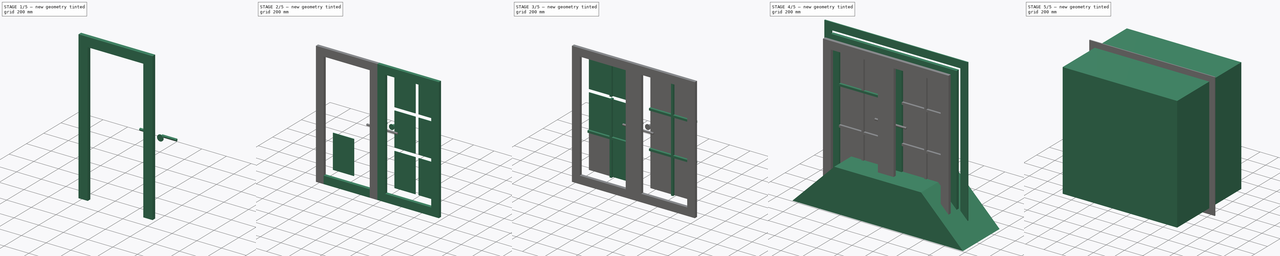
[diagram: build sequence overview — one tinted view per stage of 5, left to right]
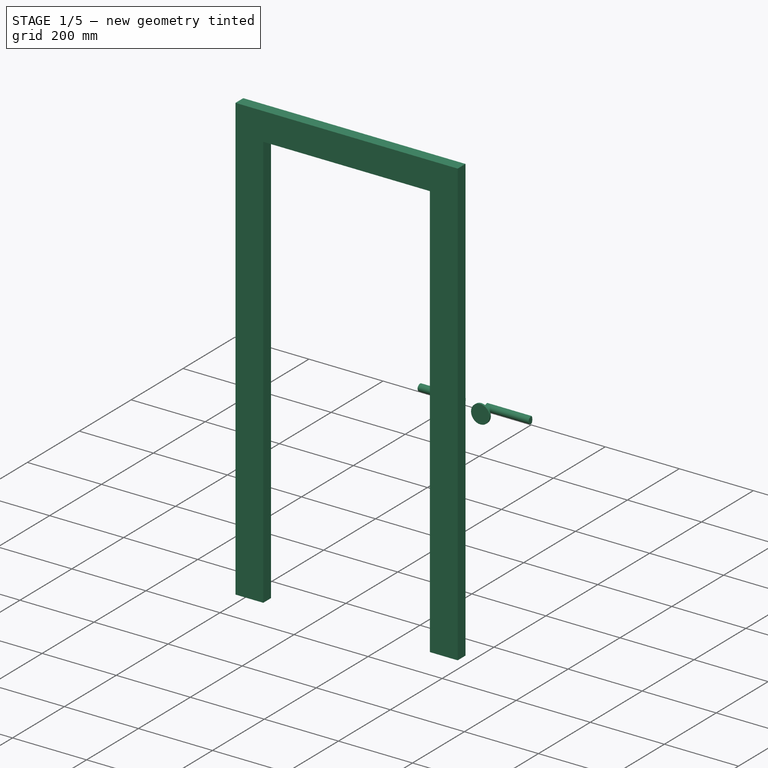
[diagram: stage 1 of 5 — iso view after this stage's code; geometry added in this stage tinted green]
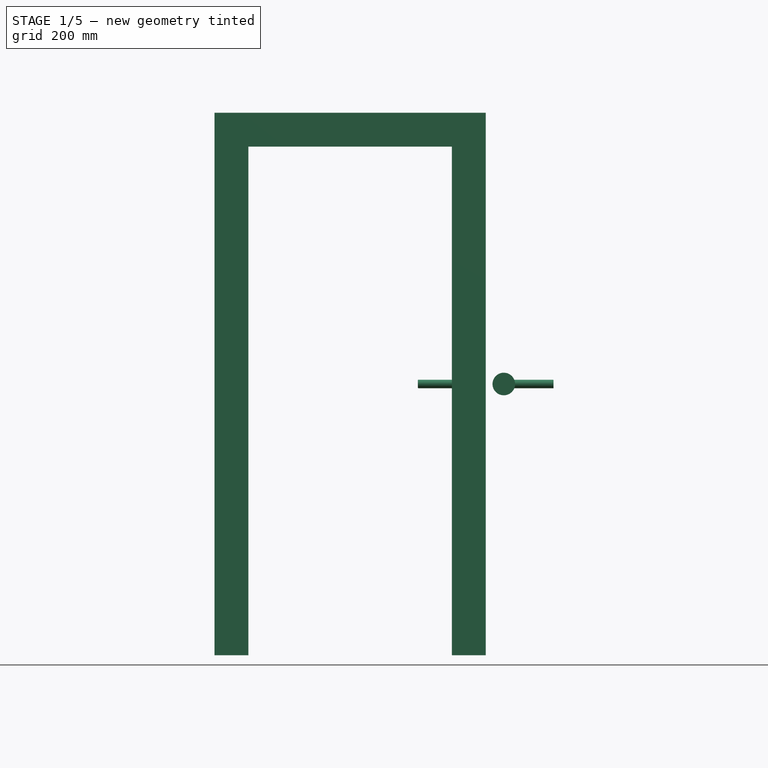
[diagram: stage 1 of 5 — front view after this stage's code; geometry added in this stage tinted green]
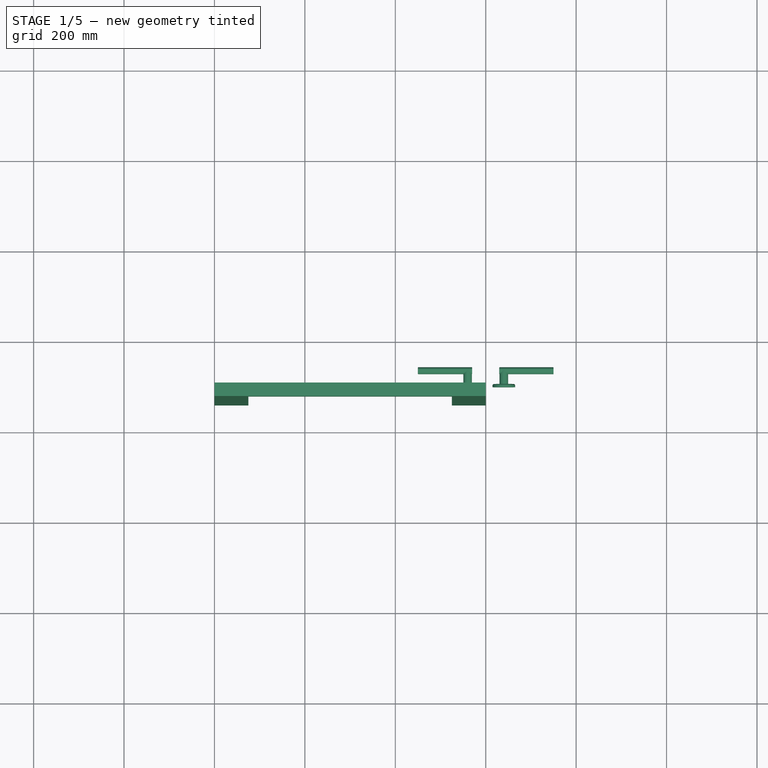
[diagram: stage 1 of 5 — top view after this stage's code; geometry added in this stage tinted green]
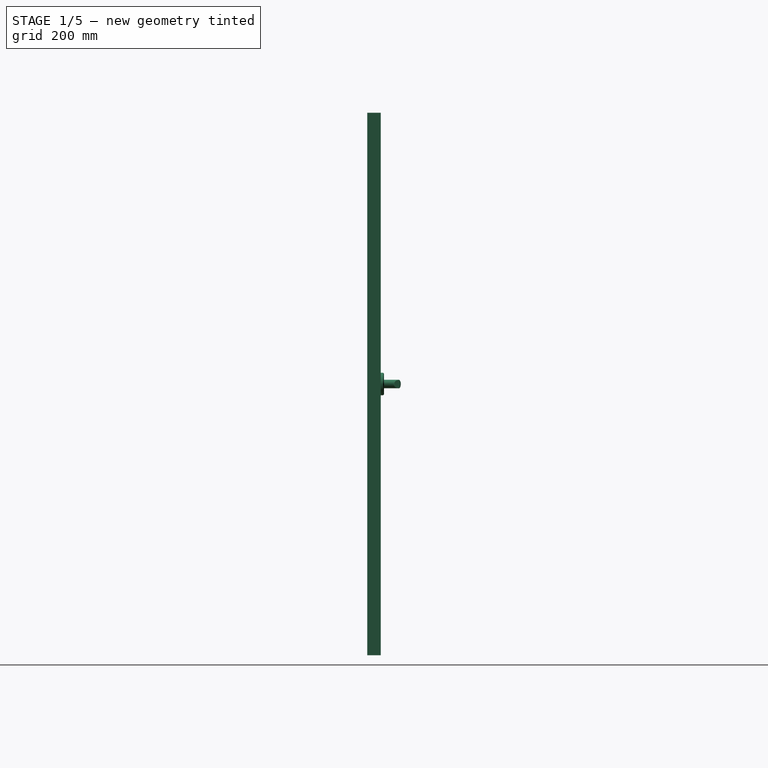
[diagram: stage 1 of 5 — right view after this stage's code; geometry added in this stage tinted green]
FCSTD DOCUMENT  (FreeCAD 0.21R33771 (Git))
Label: Window_casement_parametric_R04
License: All rights reserved
LicenseURL: https://en.wikipedia.org/wiki/All_rights_reserved
objects: Sketcher::SketchObject×56, App::DocumentObjectGroup×45, Part::Part2DObjectPython×38, Part::Extrusion×34, Part::FeaturePython×20, App::TextDocument×8, App::MaterialObjectPython×4, App::FeaturePython×4, Part::Sweep×3, Part::Cut×3, Part::Feature×2, Part::Chamfer×1, Part::Fillet×1, Part::MultiFuse×1, Spreadsheet::Sheet×1, Part::Compound×1, Part::MultiCommon×1, App::DocumentObjectGroupPython×1
note: 165 computed .brp shape members not serialized (recipe doc carries the construction recipe); baked Part::Feature solids carry a one-line shape summary decoded from their .brp

FEATURE [App::TextDocument] Text_document003  label="Guidelines_new_objects_properties_"
  Text = <blob: 3047 chars omitted>
FEATURE [App::TextDocument] Text_document002  label="Component_window_casement_configurations_"
  Text = <blob: 3858 chars omitted>
FEATURE [Part::Part2DObjectPython] Circle002  # Draft 2D object (typed FeaturePython)
  Area = 1963.5
  FirstAngle = 0
  LastAngle = 0
  MakeFace = true
  Placement = pos=(7.1e-15,8.82e-14,0) rot=(1,0,0;1.5708rad)
  Radius = 25
FEATURE [Part::Part2DObjectPython] Circle003  # Draft 2D object (typed FeaturePython)
  Area = 283.529
  FirstAngle = 0
  LastAngle = 0
  MakeFace = true
  Placement = pos=(7.1e-15,0,0) rot=(-1,0,0;1.5708rad)
  Radius = 9.5
FEATURE [Part::Extrusion] Extrude019
  Base = -> Circle002
  Dir = (0,-1,2e-16)
  DirMode = 2
  FaceMakerClass = Part::FaceMakerBullseye
  LengthFwd = -7
  LengthRev = 0
  Solid = false
  Symmetric = false
FEATURE [Part::Chamfer] Chamfer003  label="Rounded_finishing_"
  Base = -> Extrude019
  Edges = 1 edges r=2: [Edge3]
FEATURE [Part::Extrusion] Extrude021  label="Rod_002"
  Base = -> Circle003
  Dir = (0,1,2e-16)
  DirMode = 2
  FaceMakerClass = Part::FaceMakerBullseye
  LengthFwd = 38
  LengthRev = 0
  Solid = false
  Symmetric = false
FEATURE [Sketcher::SketchObject] Sketch026  label="Vertical_subframes_profile_parametric_"
  FullyConstrained = true
  MapMode = 7
  expr: .Constraints.Thickness = Prop.B_Sub_frame_vertical_thickness
  expr: .Constraints.Width = Prop.B_Sub_frame_vertical_width
  sketch-geometry (4):
    g0: LineSegment StartX=0 StartY=0 StartZ=0 EndX=20 EndY=0 EndZ=0
    g1: LineSegment StartX=20 StartY=0 StartZ=0 EndX=20 EndY=-30 EndZ=0
    g2: LineSegment StartX=20 StartY=-30 StartZ=0 EndX=0 EndY=-30 EndZ=0
    g3: LineSegment StartX=0 StartY=-30 StartZ=0 EndX=0 EndY=0 EndZ=0
  constraints (11):
    c: Coincident(g0,g1)
    c: Coincident(g1,g2)
    c: Coincident(g3,g0)
    c: Horizontal(g0)
    c: Horizontal(g2)
    c: Vertical(g1)
    c: Vertical(g3)
    c: DistanceX(g0,g0) = 20  'Width'
    c: DistanceY(g1,g1) = 30  'Thickness'
    c: Coincident(g2,g3)
    c: Coincident(g0,g-1)
FEATURE [Sketcher::SketchObject] Sketch031
  FullyConstrained = false
  Placement = pos=(10,0,1305.22) rot=(0.57735,0.57735,0.57735;2.0944rad)
  sketch-geometry (11):
    g0: ArcOfCircle CenterX=26.9008 CenterY=-1305.22 CenterZ=0 NormalX=0 NormalY=0 NormalZ=1 AngleXU=0 Radius=17.3499 StartAngle=5.8131 EndAngle=6.75327
    g1: LineSegment StartX=16.8021 StartY=-1305.22 StartZ=0 EndX=57.4666 EndY=-1305.22 EndZ=0
    g2: LineSegment StartX=39.6941 StartY=-1295.72 StartZ=0 EndX=38.0537 EndY=-1295.72 EndZ=0
    g3: LineSegment StartX=39.6941 StartY=-1314.72 StartZ=0 EndX=38.0537 EndY=-1314.72 EndZ=0
    g4: ArcOfCircle CenterX=39.6941 CenterY=-1298.72 CenterZ=0 NormalX=0 NormalY=0 NormalZ=1 AngleXU=0 Radius=3 StartAngle=0.470089 EndAngle=1.5708
    g5: ArcOfCircle CenterX=39.6941 CenterY=-1311.72 CenterZ=0 NormalX=0 NormalY=0 NormalZ=1 AngleXU=0 Radius=3 StartAngle=4.71239 EndAngle=5.8131
    g6: ArcOfEllipse CenterX=39.1726 CenterY=-1305.22 CenterZ=0 NormalX=0 NormalY=0 NormalZ=1 MajorRadius=10.4896 MinorRadius=9.55451 AngleXU=1.576e-13 StartAngle=1.67767 EndAngle=4.60552
    g7: LineSegment StartX=49.6622 StartY=-1305.22 StartZ=0 EndX=28.683 EndY=-1305.22 EndZ=0
    g8: LineSegment StartX=39.1726 StartY=-1295.67 StartZ=0 EndX=39.1726 EndY=-1314.78 EndZ=0
    g9: GeomPoint X=43.5019 Y=-1305.22 Z=0
    g10: GeomPoint X=34.8434 Y=-1305.22 Z=0
  constraints (16):
    c: Horizontal(g1)
    c: Horizontal(g2)
    c: Horizontal(g3)
    c: Tangent(g0,g4) = -1.5708
    c: Tangent(g2,g4) = -1.5708
    c: Tangent(g0,g5) = -1.5708
    c: Tangent(g3,g5) = 1.5708
    c: Equal(g2,g3)
    c: Equal(g4,g5)
    c: Radius(g4) = 3
    c: Symmetric(g3,g2,g1)
    c: DistanceY(g3,g2) = 19  'Thickness'
    c: InternalAlignment(g7-g10 -> g6) x4
    c: PointOnObject(g6,g1)
    c: Coincident(g6,g2)
    c: Coincident(g6,g3)
FEATURE [Part::Extrusion] Extrude022
  Base = -> Sketch031
  Dir = (1,0,0)
  DirMode = 2
  FaceMakerClass = Part::FaceMakerBullseye
  LengthFwd = 120
  LengthRev = 0
  Reversed = true
  Solid = true
  Symmetric = false
FEATURE [Part::Fillet] Fillet001  label="Handle_003"
  Base = -> Extrude022
  Edges = 12 edges r=1: [Edge3,Edge4,Edge6,Edge7,Edge9,Edge10,Edge12,Edge13,Edge15,Edge16,Edge17,Edge18]
FEATURE [Part::MultiFuse] Fusion002  label="Handle_simple_01"
  Shapes = -> [Chamfer003,Extrude021,Fillet001]
FEATURE [Part::FeaturePython] Clone008  label="04-Clone_Handle_shutters_left_"  # Draft clone (typed FeaturePython)
  AttacherType = Attacher::AttachEngine3D
  AttachmentOffset = pos=(560,-30,-600) rot=(1,0,0;3.14159rad)
  Fuse = false
  MapMode = 2
  Material = -> Material023
  Objects = -> [Fusion002]
  Placement = pos=(-40,-110,1490) rot=(0,0,1;0rad)
  Scale = (1,1,1)
  Support = -> [Clone2D049]
  expr: .AttachmentOffset.Base.x = Prop.B_Window_width / 2 - Prop.B_Handle_horizontal_position
  expr: .AttachmentOffset.Base.y = -Prop.B_Main_panel_thickness
  expr: .AttachmentOffset.Base.z = -Prop.B_Handle_vertical_position
  expr: .AttachmentOffset.Rotation.Pitch = Prop.B_Handle_angle
  expr: Material = Prop.C_Handle_material
  expr: Objects = Prop001.A_Handle_type
  expr: Visibility = Prop.A_General_visibility * Prop.A_Shutters_visibility * Prop.A_Handle_shutter_panel_right
FEATURE [Part::FeaturePython] Clone009  label="04-Clone_Handle_shutters_right_"  # Draft clone (typed FeaturePython)
  AttacherType = Attacher::AttachEngine3D
  AttachmentOffset = pos=(560,-30,600) rot=(1,0,0;3.14159rad)
  Fuse = false
  MapMode = 2
  Material = -> Material023
  Objects = -> [Fusion002]
  Placement = pos=(40,-110,1490) rot=(0,1,0;3.14159rad)
  Scale = (1,1,1)
  Support = -> [Clone2D050]
  expr: .AttachmentOffset.Base.x = Prop.B_Window_width / 2 - Prop.B_Handle_horizontal_position
  expr: .AttachmentOffset.Base.y = -Prop.B_Main_panel_thickness
  expr: .AttachmentOffset.Base.z = Prop.B_Handle_vertical_position
  expr: .AttachmentOffset.Rotation.Pitch = -Prop.B_Handle_angle
  expr: Material = Prop.C_Handle_material
  expr: Objects = Prop001.A_Handle_type
  expr: Visibility = Prop.A_General_visibility * Prop.A_Shutters_visibility * Prop.A_Handle_shutter_panel_left
FEATURE [Part::Extrusion] Extrude039453  label="02-Edge2_horizontal_left_001"
  Base = -> Clone2D056
  Dir = (1,0,-2e-16)
  DirMode = 2
  FaceMakerClass = Part::FaceMakerBullseye
  LengthFwd = 450
  LengthRev = 0
  Material = -> Material024
  Solid = true
  Symmetric = false
  expr: LengthFwd = Prop.D_Edge_horizontal_length
  expr: Material = Prop.C_Edges_horizontal_material
  expr: Visibility = Prop.A_General_visibility * Prop.A_Shutters_visibility
FEATURE [Part::Extrusion] Extrude039454  label="02-Edge1_vertical_left_001"
  Base = -> Clone2D057
  Dir = (0,-2e-16,-1)
  DirMode = 2
  FaceMakerClass = Part::FaceMakerBullseye
  LengthFwd = 1200
  LengthRev = 0
  Material = -> Material024
  Reversed = true
  Solid = true
  Symmetric = false
  expr: LengthFwd = Prop.D_Edge_vertical_height
  expr: Material = Prop.C_Edges_vertical_material
  expr: Visibility = Prop.A_General_visibility * Prop.A_Shutters_visibility
FEATURE [Part::Extrusion] Extrude039455  label="02-Edge2_vertical_left_001"
  Base = -> Clone2D058
  Dir = (0,-2e-16,-1)
  DirMode = 2
  FaceMakerClass = Part::FaceMakerBullseye
  LengthFwd = 1200
  LengthRev = 0
  Material = -> Material024
  Reversed = true
  Solid = true
  Symmetric = false
  expr: LengthFwd = Prop.D_Edge_vertical_height
  expr: Material = Prop.C_Edges_vertical_material
  expr: Visibility = Prop.A_General_visibility * Prop.A_Shutters_visibility
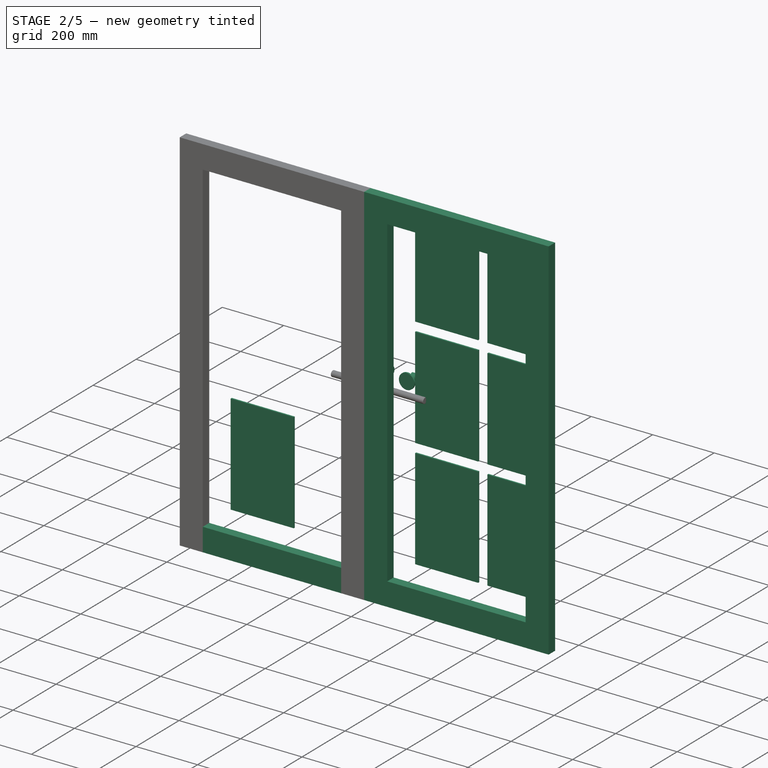
[diagram: stage 2 of 5 — iso view after this stage's code; geometry added in this stage tinted green]
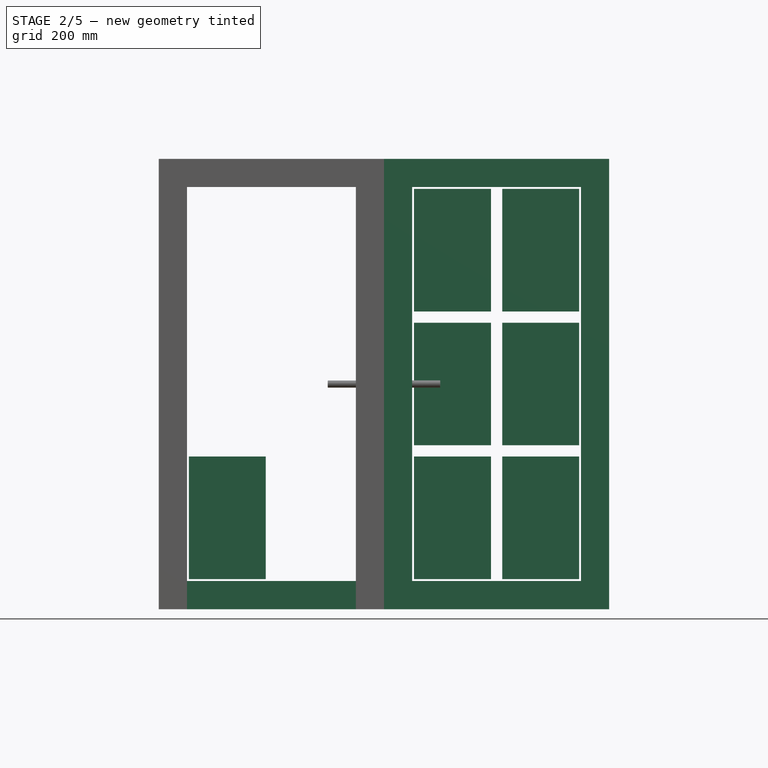
[diagram: stage 2 of 5 — front view after this stage's code; geometry added in this stage tinted green]
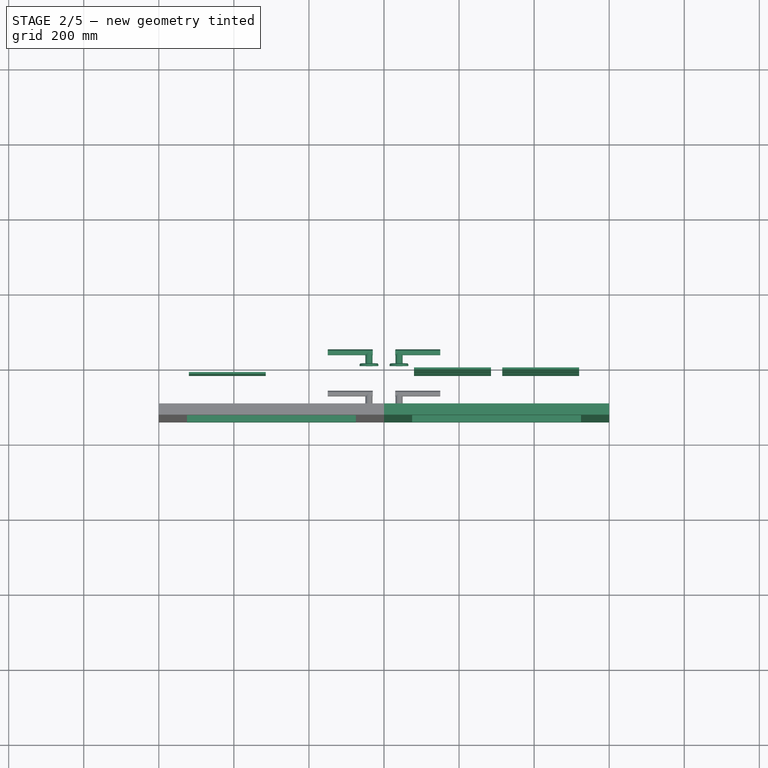
[diagram: stage 2 of 5 — top view after this stage's code; geometry added in this stage tinted green]
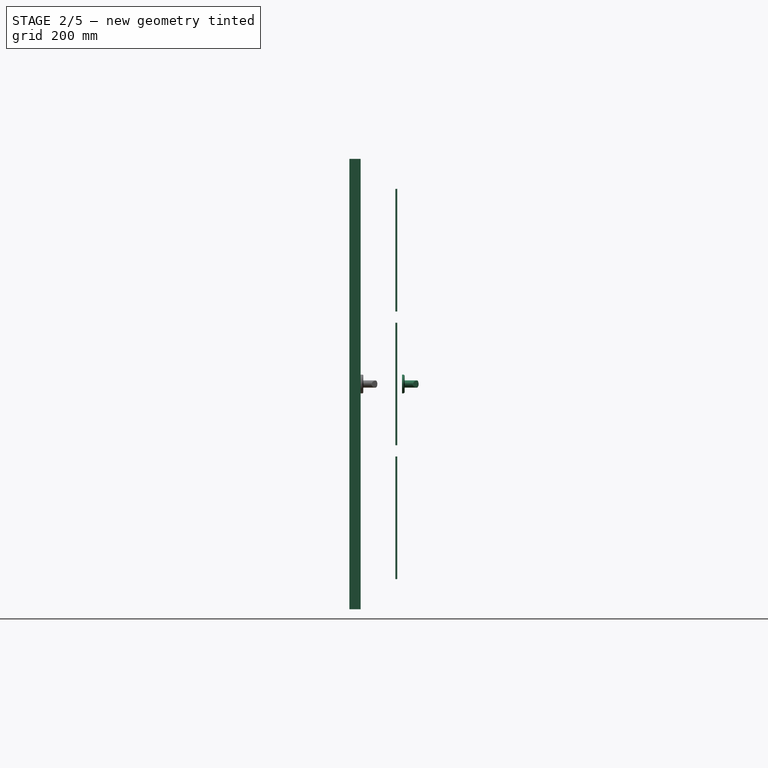
[diagram: stage 2 of 5 — right view after this stage's code; geometry added in this stage tinted green]
FEATURE [Part::Extrusion] Extrude039456  label="Extrude011_shutter_unity017"
  Base = -> Clone2D060
  Dir = (1,2e-16,-2e-16)
  DirMode = 2
  FaceMakerClass = Part::FaceMakerBullseye
  LengthFwd = 450
  LengthRev = 0
  Reversed = true
  Solid = false
  Symmetric = false
  expr: LengthFwd = Prop.D_Shutter_length
FEATURE [Sketcher::SketchObject] Sketch010  label="Internal_frame_rectangular_form_"
  AttachmentOffset = pos=(75,-411.667,-15) rot=(0,0,1;0rad)
  FullyConstrained = true
  MapMode = 3
  Placement = pos=(-525,-15,1301.67) rot=(-1,0,0;1.5708rad)
  Support = -> [Clone2D031]
  expr: .AttachmentOffset.Base.x = Prop.B_Edge1_vertical_width
  expr: .AttachmentOffset.Base.y = -Prop.B_Edge1_horizontal_width - Prop.D_Sub_frame_vertical_height
  expr: .AttachmentOffset.Base.z = -(Prop.B_Main_panel_thickness / 2 - Prop.B_Internal_frame_adjust_position)
  expr: .Constraints.Height = Prop.D_Internal_frame_height
  expr: .Constraints.Width = Prop.D_Internal_frame_width
  sketch-geometry (4):
    g0: LineSegment StartX=0 StartY=336.667 StartZ=0 EndX=215 EndY=336.667 EndZ=0
    g1: LineSegment StartX=215 StartY=336.667 StartZ=0 EndX=215 EndY=0 EndZ=0
    g2: LineSegment StartX=215 StartY=0 StartZ=0 EndX=0 EndY=0 EndZ=0
    g3: LineSegment StartX=0 StartY=0 StartZ=0 EndX=0 EndY=336.667 EndZ=0
  constraints (11):
    c: Coincident(g0,g1)
    c: Coincident(g1,g2)
    c: Coincident(g2,g3)
    c: Coincident(g3,g0)
    c: Horizontal(g0)
    c: Horizontal(g2)
    c: Vertical(g1)
    c: Vertical(g3)
    c: DistanceX(g0,g0) = 215  'Width'
    c: DistanceY(g1,g1) = 336.667  'Height'
    c: Coincident(g2,g-1)
FEATURE [Part::Part2DObjectPython] Clone2D043  label="Clone_internal_panels_frames_rounded_PROFILE_ (2D)"  # Draft 2D object (typed FeaturePython)
  Fuse = false
  MapMode = 3
  Objects = -> [Sketch051]
  Placement = pos=(-525,-15,1301.67) rot=(0,0,1;0rad)
  Scale = (1,1,1)
  Support = -> [Sketch010]
  expr: Objects = Prop001.A_Internal_frame_profile
FEATURE [Part::Part2DObjectPython] Clone2D047  label="Internal_panel_rectangular_form_ (2D)"  # Draft 2D object (typed FeaturePython)
  AttachmentOffset = pos=(75,75,-15) rot=(0,0,1;0rad)
  Fuse = false
  MapMode = 3
  Objects = -> [Sketch010]
  Placement = pos=(525,-15,965) rot=(0,0.707107,0.707107;3.14159rad)
  Scale = (1,1,1)
  Support = -> [Clone2D032]
  expr: .AttachmentOffset.Base.x = Prop.B_Edge1_vertical_width
  expr: .AttachmentOffset.Base.y = Prop.B_Edge1_horizontal_width
  expr: .AttachmentOffset.Base.z = -(Prop.B_Main_panel_thickness / 2 - Prop.B_Internal_frame_adjust_position)
FEATURE [Part::Part2DObjectPython] Clone2D046  label="Clone_internal_panels_frames_rounded_PROFILE_ (2D)001"  # Draft 2D object (typed FeaturePython)
  Fuse = false
  MapMode = 3
  Objects = -> [Sketch051]
  Placement = pos=(525,-15,965) rot=(0,1,0;3.14159rad)
  Scale = (1,1,1)
  Support = -> [Clone2D047]
  expr: Objects = Prop001.A_Internal_frame_profile
FEATURE [Sketcher::SketchObject] Sketch012  label="Internal_panel_simple_001"
  AttachmentOffset = pos=(75,-411.667,-15) rot=(0,0,1;0rad)
  FullyConstrained = true
  MapMode = 3
  Placement = pos=(-525,-15,1301.67) rot=(-1,0,0;1.5708rad)
  Support = -> [Clone2D031]
  expr: .AttachmentOffset.Base.x = Prop.B_Edge1_vertical_width
  expr: .AttachmentOffset.Base.y = -Prop.B_Edge1_horizontal_width - Prop.D_Sub_frame_vertical_height
  expr: .AttachmentOffset.Base.z = -(Prop.B_Main_panel_thickness / 2 - Prop.B_Internal_panel_adjust_position)
  expr: .Constraints.Height = Prop.D_Internal_panel_height
  expr: .Constraints.Horizontal_gap_ = Prop.B_Internal_panel_gap
  expr: .Constraints.Vertical_gap_ = Prop.B_Internal_panel_gap
  expr: .Constraints.Width = Prop.D_Internal_panel_width
  sketch-geometry (4):
    g0: LineSegment StartX=5 StartY=331.667 StartZ=0 EndX=210 EndY=331.667 EndZ=0
    g1: LineSegment StartX=210 StartY=331.667 StartZ=0 EndX=210 EndY=5 EndZ=0
    g2: LineSegment StartX=210 StartY=5 StartZ=0 EndX=5 EndY=5 EndZ=0
    g3: LineSegment StartX=5 StartY=5 StartZ=0 EndX=5 EndY=331.667 EndZ=0
  constraints (12):
    c: Coincident(g0,g1)
    c: Coincident(g2,g3)
    c: Coincident(g3,g0)
    c: Horizontal(g0)
    c: Horizontal(g2)
    c: Vertical(g1)
    c: Vertical(g3)
    c: Coincident(g1,g2)
    c: DistanceX(g0,g0) = 205  'Width'
    c: DistanceY(g1,g1) = 326.667  'Height'
    c: DistanceX(g-1,g2) = 5  'Horizontal_gap_'
    c: DistanceY(g-1,g2) = 5  'Vertical_gap_'
FEATURE [Part::Part2DObjectPython] Clone2D048  label="Internal_panel_simple_001 (2D)"  # Draft 2D object (typed FeaturePython)
  AttachmentOffset = pos=(75,75,-15) rot=(0,0,1;0rad)
  Fuse = false
  MapMode = 3
  Objects = -> [Sketch012]
  Placement = pos=(525,-15,965) rot=(0,0.707107,0.707107;3.14159rad)
  Scale = (1,1,1)
  Support = -> [Clone2D032]
  expr: .AttachmentOffset.Base.x = Prop.B_Edge1_vertical_width
  expr: .AttachmentOffset.Base.y = Prop.B_Edge1_horizontal_width
  expr: .AttachmentOffset.Base.z = -(Prop.B_Main_panel_thickness / 2 - Prop.B_Internal_panel_adjust_position)
FEATURE [Part::Extrusion] Extrude005  label="2.2.1. Internal_panel_simple_"
  Base = -> Sketch012
  Dir = (0,1,-2e-16)
  DirMode = 2
  FaceMakerClass = Part::FaceMakerBullseye
  LengthFwd = 5
  LengthRev = 0
  Solid = true
  Symmetric = true
  expr: LengthFwd = Prop.B_Internal_panel_thickness
FEATURE [Part::Extrusion] Extrude039447  label="2.2.1. Internal_panel_simple_001"
  Base = -> Clone2D048
  Dir = (0,1,-2e-16)
  DirMode = 2
  FaceMakerClass = Part::FaceMakerBullseye
  LengthFwd = 5
  LengthRev = 0
  Solid = true
  Symmetric = true
  expr: LengthFwd = Prop.B_Internal_panel_thickness
FEATURE [Part::FeaturePython] PathArray013  # WARN: FeaturePython — macro-defined, semantics opaque (R4)
  Align = false
  AlignMode = 0
  Base = -> Extrude039447
  Count = 3
  EndOffset = 0
  ExtraTranslation = (-2.33e-13,-1.1e-13,0)
  ForceVertical = false
  PathObject = -> Sketch237
  StartOffset = 0
  TangentVector = (1,0,0)
  VerticalVector = (0,0,1)
  expr: .ExtraTranslation.x = -Sketch233.Placement.Base.x
  expr: .ExtraTranslation.y = -Sketch233.Placement.Base.y
  expr: .ExtraTranslation.z = -Sketch233.Placement.Base.z
  expr: Count = Prop.B_Internal_panel_vertical_units <= 1 ? 1 : Prop.B_Internal_panel_vertical_units
FEATURE [Sketcher::SketchObject] Sketch243  label="Sketch243_Path_horizontal_internal_panels_right_"
  FullyConstrained = true
  MapMode = 2
  Placement = pos=(600,3.076e-13,890) rot=(0,0,1;3.14159rad)
  Support = -> [Clone2D032]
  expr: .Constraints.Length = (Prop.D_Internal_panel_width + Prop.B_Sub_frame_vertical_width) * ((Prop.B_Internal_panel_horizontal_units <= 2 ? 2 : Prop.B_Internal_panel_horizontal_units) - 2)
  sketch-geometry (1):
    g0: LineSegment StartX=6.70779e-11 StartY=0 StartZ=0 EndX=1.08603e-10 EndY=0 EndZ=0
  constraints (3):
    c: Coincident(g0,g-1)
    c: Horizontal(g0)
    c: DistanceX(g0,g0) = 0  'Length'
FEATURE [Sketcher::SketchObject] Sketch244  label="Sketch244_Path_horizontal_internal_panels_right_001"
  FullyConstrained = true
  MapMode = 2
  Placement = pos=(600,3.076e-13,890) rot=(0,0,1;3.14159rad)
  Support = -> [Clone2D032]
  expr: .Constraints.Length = (Prop.D_Internal_frame_width + Prop.B_Sub_frame_vertical_width) * ((Prop.B_Internal_panel_horizontal_units <= 1 ? 1 : Prop.B_Internal_panel_horizontal_units) - 1)
  sketch-geometry (1):
    g0: LineSegment StartX=0 StartY=0 StartZ=0 EndX=235 EndY=0 EndZ=0
  constraints (3):
    c: Coincident(g0,g-1)
    c: Horizontal(g0)
    c: DistanceX(g0,g0) = 235  'Length'
FEATURE [Part::FeaturePython] PathArray014  label="04-PathArray014_Internal_panels_right_"  # WARN: FeaturePython — macro-defined, semantics opaque (R4)
  Align = false
  AlignMode = 0
  Base = -> PathArray013
  Count = 2
  EndOffset = 0
  ExtraTranslation = (-600,-3.076e-13,-890)
  ForceVertical = false
  Material = -> Material022
  PathObject = -> Sketch244
  StartOffset = 0
  TangentVector = (1,0,0)
  VerticalVector = (0,0,1)
  expr: .ExtraTranslation.x = -Sketch244.Placement.Base.x
  expr: .ExtraTranslation.y = -Sketch244.Placement.Base.y
  expr: .ExtraTranslation.z = -Sketch244.Placement.Base.z
  expr: Count = Prop.B_Internal_panel_horizontal_units <= 1 ? 1 : Prop.B_Internal_panel_horizontal_units
  expr: Material = Prop.C_Internal_panels_material
  expr: Visibility = Prop.A_General_visibility
FEATURE [Part::Sweep] Sweep056  label="Internal_frame_001"
  Frenet = false
  Sections = -> [Clone2D046]
  Solid = false
  Spine = -> Clone2D047
  Transition = 2
  expr: .Placement.Base.y = 0
FEATURE [Part::FeaturePython] PathArray011  # WARN: FeaturePython — macro-defined, semantics opaque (R4)
  Align = false
  AlignMode = 0
  Base = -> Sweep056
  Count = 3
  EndOffset = 0
  ExtraTranslation = (-2.33e-13,-1.1e-13,0)
  ForceVertical = false
  PathObject = -> Sketch237
  StartOffset = 0
  TangentVector = (1,0,0)
  VerticalVector = (0,0,1)
  expr: .ExtraTranslation.x = -Sketch233.Placement.Base.x
  expr: .ExtraTranslation.y = -Sketch233.Placement.Base.y
  expr: .ExtraTranslation.z = -Sketch233.Placement.Base.z
  expr: Count = Prop.B_Internal_panel_vertical_units <= 1 ? 1 : Prop.B_Internal_panel_vertical_units
FEATURE [App::DocumentObjectGroup] Group277  label="03-Bases_"
  Group = -> [Clone2D032,Clone2D031,Clone2D049,Clone2D050,Sketch233]
FEATURE [App::DocumentObjectGroup] Group278  label="Front_panels_"
  Group = -> [Sketch236]
FEATURE [App::DocumentObjectGroup] Group279  label="Shutter_panels"
  Group = -> [Sketch245]
FEATURE [App::DocumentObjectGroup] Group274  label="02-Main_panels"
  Group = -> [Group278,Group279]
FEATURE [App::DocumentObjectGroup] Group280  label="01-Paths_"
  Group = -> [Sketch237,Sketch239,Sketch240,Sketch241,Sketch243,Sketch244,Sketch247,Sketch248]
FEATURE [App::TextDocument] Text_document011  label="Model_01_wood_rounded_shutters.py"
  Text = <blob: 6793 chars omitted>
FEATURE [App::MaterialObjectPython] Material023  label="aluminium"  # material (typed FeaturePython)
  Description = Aluminium Material for Render
  Material = <blob: 2719 chars omitted>
  Transparency = 0
FEATURE [Part::FeaturePython] Clone006  label="05-Clone_Handle_left_"  # Draft clone (typed FeaturePython)
  AttacherType = Attacher::AttachEngine3D
  AttachmentOffset = pos=(560,0,-600) rot=(1,0,0;3.14159rad)
  Fuse = false
  MapMode = 2
  Material = -> Material023
  Objects = -> [Fusion002]
  Placement = pos=(-40,4.408e-13,1490) rot=(0,0,1;0rad)
  Scale = (1,1,1)
  Support = -> [Clone2D031]
  expr: .AttachmentOffset.Base.x = Prop.B_Window_width / 2 - Prop.B_Handle_horizontal_position
  expr: .AttachmentOffset.Base.z = -Prop.B_Handle_vertical_position
  expr: .AttachmentOffset.Rotation.Pitch = Prop.B_Handle_angle
  expr: Material = Prop.C_Handle_material
  expr: Objects = Prop001.A_Handle_type
  expr: Visibility = Prop.A_General_visibility * Prop.A_Handle_front_panel_right
FEATURE [Part::FeaturePython] Clone007  label="05-Clone_Handle_right_"  # Draft clone (typed FeaturePython)
  AttacherType = Attacher::AttachEngine3D
  AttachmentOffset = pos=(560,0,600) rot=(1,0,0;3.14159rad)
  Fuse = false
  MapMode = 2
  Material = -> Material023
  Objects = -> [Fusion002]
  Placement = pos=(40,4.408e-13,1490) rot=(0,1,0;3.14159rad)
  Scale = (1,1,1)
  Support = -> [Clone2D032]
  expr: .AttachmentOffset.Base.x = Prop.B_Window_width / 2 - Prop.B_Handle_horizontal_position
  expr: .AttachmentOffset.Base.z = Prop.B_Handle_vertical_position
  expr: .AttachmentOffset.Rotation.Pitch = -Prop.B_Handle_angle
  expr: Material = Prop.C_Handle_material
  expr: Objects = Prop001.A_Handle_type
  expr: Visibility = Prop.A_General_visibility * Prop.A_Handle_front_panel_left
FEATURE [Part::Extrusion] Extrude039448  label="02-Edge1_horizontal_right_001"
  Base = -> Clone2D051
  Dir = (1,0,-2e-16)
  DirMode = 2
  FaceMakerClass = Part::FaceMakerBullseye
  LengthFwd = 450
  LengthRev = 0
  Material = -> Material024
  Reversed = true
  Solid = true
  Symmetric = false
  expr: LengthFwd = Prop.D_Edge_horizontal_length
  expr: Material = Prop.C_Edges_horizontal_material
  expr: Visibility = Prop.A_General_visibility * Prop.A_Shutters_visibility
FEATURE [Part::Extrusion] Extrude039449  label="02-Edge2_horizontal_right_001"
  Base = -> Clone2D052
  Dir = (1,0,-2e-16)
  DirMode = 2
  FaceMakerClass = Part::FaceMakerBullseye
  LengthFwd = 450
  LengthRev = 0
  Material = -> Material024
  Reversed = true
  Solid = true
  Symmetric = false
  expr: LengthFwd = Prop.D_Edge_horizontal_length
  expr: Material = Prop.C_Edges_horizontal_material
  expr: Visibility = Prop.A_General_visibility * Prop.A_Shutters_visibility
FEATURE [Part::Extrusion] Extrude039450  label="02-Edge1_vertical_right001"
  Base = -> Clone2D053
  Dir = (0,2e-16,1)
  DirMode = 2
  FaceMakerClass = Part::FaceMakerBullseye
  LengthFwd = 1200
  LengthRev = 0
  Material = -> Material024
  Solid = true
  Symmetric = false
  expr: LengthFwd = Prop.D_Edge_vertical_height
  expr: Material = Prop.C_Edges_vertical_material
  expr: Visibility = Prop.A_General_visibility * Prop.A_Shutters_visibility
FEATURE [Part::Extrusion] Extrude039451  label="02-Edge2_vertical_right_001"
  Base = -> Clone2D054
  Dir = (0,2e-16,1)
  DirMode = 2
  FaceMakerClass = Part::FaceMakerBullseye
  LengthFwd = 1200
  LengthRev = 0
  Material = -> Material024
  Solid = true
  Symmetric = false
  expr: LengthFwd = Prop.D_Edge_vertical_height
  expr: Material = Prop.C_Edges_vertical_material
  expr: Visibility = Prop.A_General_visibility * Prop.A_Shutters_visibility
FEATURE [Part::Extrusion] Extrude039452  label="02-Edge1_horizontal_left_001"
  Base = -> Clone2D055
  Dir = (1,0,-2e-16)
  DirMode = 2
  FaceMakerClass = Part::FaceMakerBullseye
  LengthFwd = 450
  LengthRev = 0
  Material = -> Material024
  Solid = true
  Symmetric = false
  expr: LengthFwd = Prop.D_Edge_horizontal_length
  expr: Material = Prop.C_Edges_horizontal_material
  expr: Visibility = Prop.A_General_visibility * Prop.A_Shutters_visibility
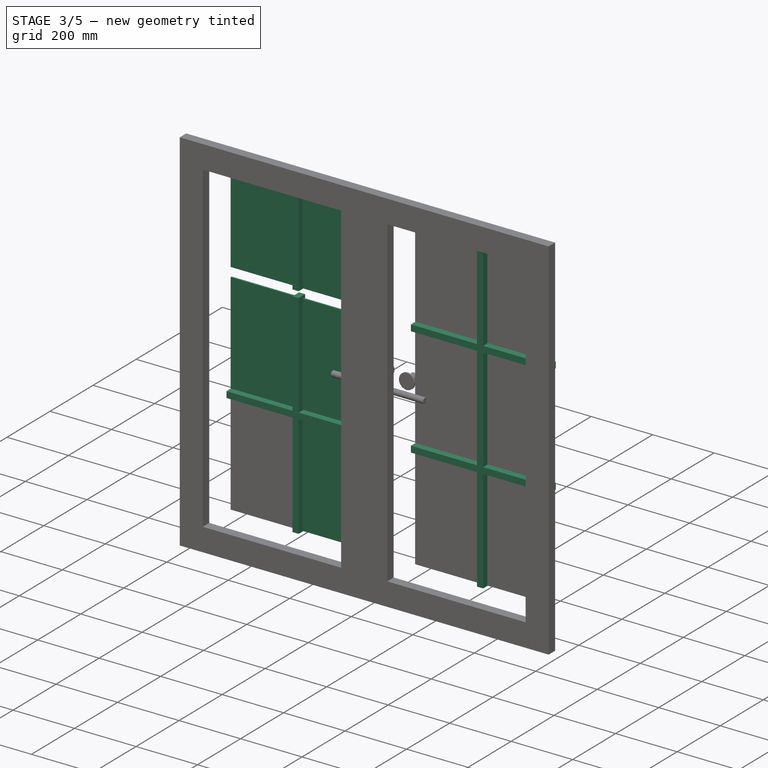
[diagram: stage 3 of 5 — iso view after this stage's code; geometry added in this stage tinted green]
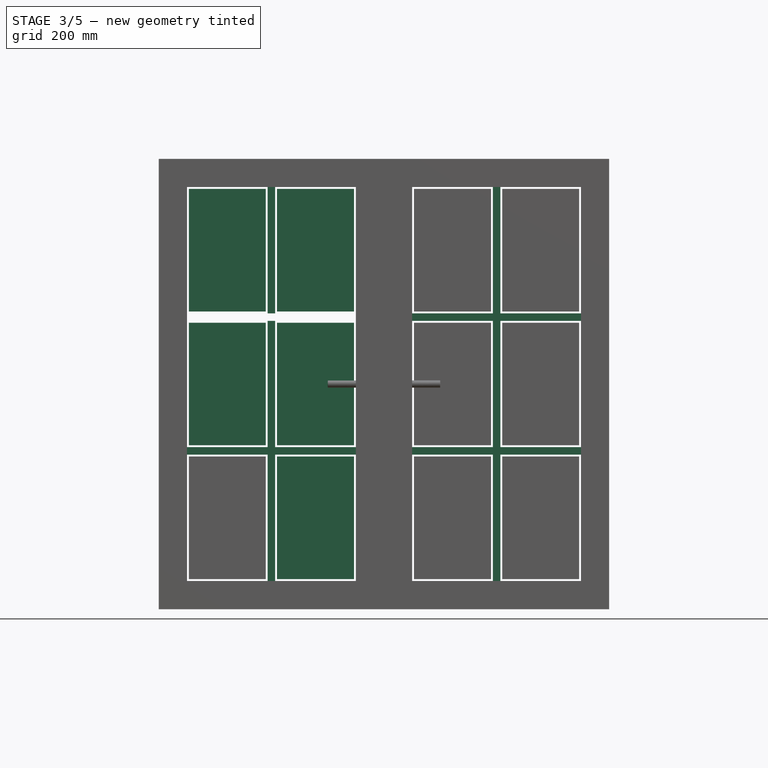
[diagram: stage 3 of 5 — front view after this stage's code; geometry added in this stage tinted green]
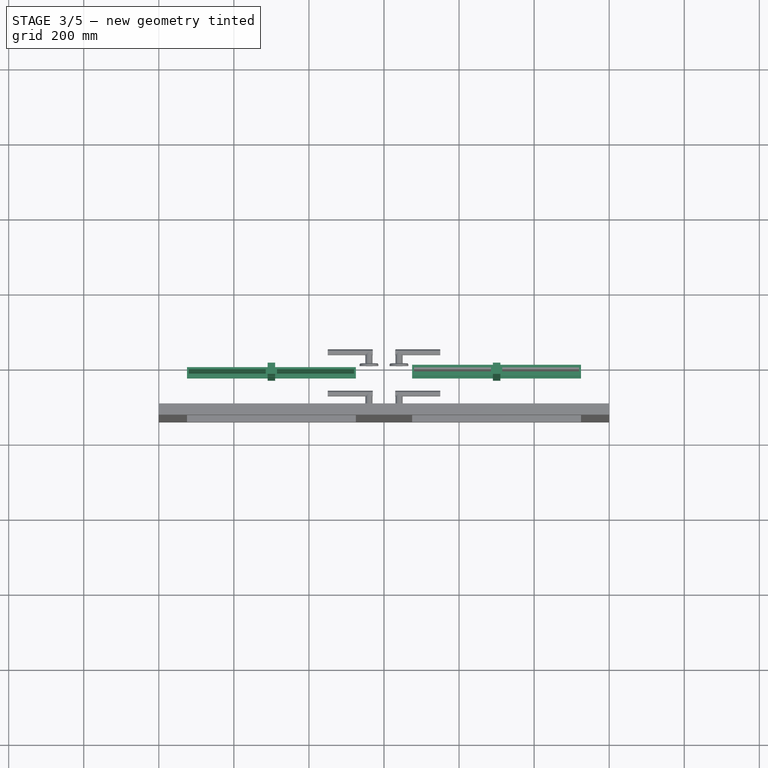
[diagram: stage 3 of 5 — top view after this stage's code; geometry added in this stage tinted green]
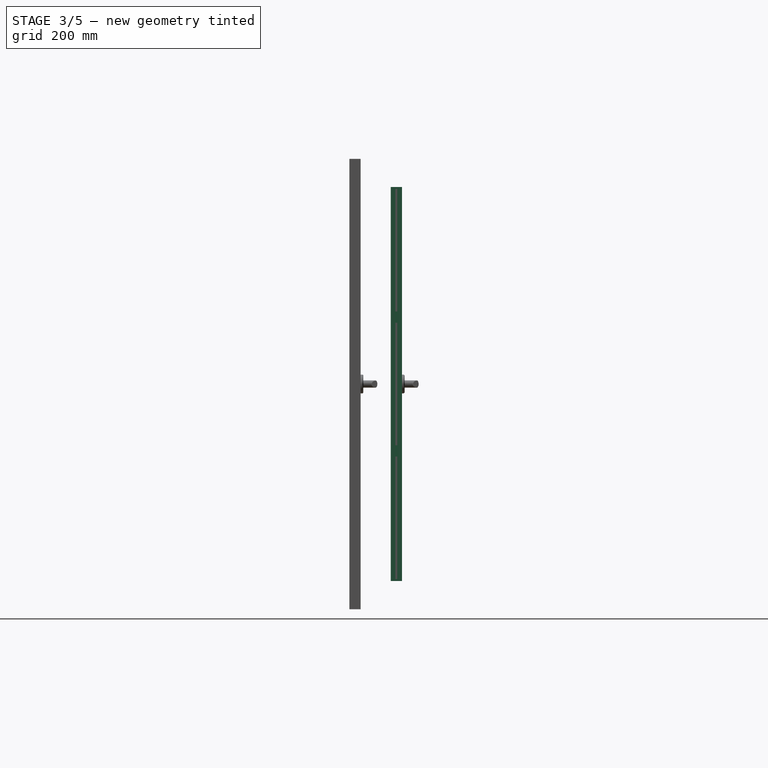
[diagram: stage 3 of 5 — right view after this stage's code; geometry added in this stage tinted green]
FEATURE [Sketcher::SketchObject] Sketch049  label="Trim_profile_01"
  FullyConstrained = true
  expr: .Constraints.Thickness = Prop.B_Trim_thickness
  expr: .Constraints.Width = Prop.B_Trim_width
  sketch-geometry (4):
    g0: LineSegment StartX=-70 StartY=10 StartZ=0 EndX=0 EndY=10 EndZ=0
    g1: LineSegment StartX=0 StartY=10 StartZ=0 EndX=0 EndY=0 EndZ=0
    g2: LineSegment StartX=0 StartY=0 StartZ=0 EndX=-70 EndY=0 EndZ=0
    g3: LineSegment StartX=-70 StartY=0 StartZ=0 EndX=-70 EndY=10 EndZ=0
  constraints (12):
    c: Coincident(g1,g2)
    c: Coincident(g2,g3)
    c: Horizontal(g2)
    c: Vertical(g1)
    c: Vertical(g3)
    c: DistanceX(g2,g1) = 70  'Width'
    c: DistanceY(g2,g0) = 10  'Thickness'
    c: PointOnObject(g1,g-1)
    c: DistanceX(g1,g-1) = 0  'Distance_joint'
    c: Horizontal(g0)
    c: Coincident(g0,g1)
    c: Coincident(g0,g3)
FEATURE [Sketcher::SketchObject] Sketch050  label="Internal_panels_frames_rectangular_PROFILE_"
  FullyConstrained = true
  expr: .Constraints.Internal_frame_width = 5 mm
  expr: .Constraints.Internal_panel_thickness = Prop.B_Internal_panel_thickness
  expr: .Constraints.Opening_frame_thickness = Prop.B_Internal_frame_thickness
  sketch-geometry (8):
    g0: LineSegment StartX=0 StartY=7.5 StartZ=0 EndX=5 EndY=7.5 EndZ=0
    g1: LineSegment StartX=5 StartY=7.5 StartZ=0 EndX=5 EndY=2.5 EndZ=0
    g2: LineSegment StartX=5 StartY=2.5 StartZ=0 EndX=2 EndY=2.5 EndZ=0
    g3: LineSegment StartX=0 StartY=-7.5 StartZ=0 EndX=0 EndY=7.5 EndZ=0
    g4: LineSegment StartX=2 StartY=-2.5 StartZ=0 EndX=5 EndY=-2.5 EndZ=0
    g5: LineSegment StartX=5 StartY=-2.5 StartZ=0 EndX=5 EndY=-7.5 EndZ=0
    g6: LineSegment StartX=5 StartY=-7.5 StartZ=0 EndX=0 EndY=-7.5 EndZ=0
    g7: LineSegment StartX=2 StartY=2.5 StartZ=0 EndX=2 EndY=-2.5 EndZ=0
  constraints (23):
    c: Coincident(g0,g1)
    c: Coincident(g1,g2)
    c: Coincident(g3,g0)
    c: Horizontal(g0)
    c: Horizontal(g2)
    c: Vertical(g1)
    c: Coincident(g4,g5)
    c: Coincident(g5,g6)
    c: Horizontal(g4)
    c: Horizontal(g6)
    c: Vertical(g5)
    c: Vertical(g1,g4)
    c: Equal(g1,g5)
    c: PointOnObject(g0,g-2)
    c: DistanceY(g4,g1) = 5  'Internal_panel_thickness'
    c: DistanceX(g6,g6) = 5  'Internal_frame_width'
    c: DistanceY(g1,g1) = 5  'Opening_frame_thickness'
    c: Vertical(g7)
    c: Coincident(g2,g7)
    c: Coincident(g4,g7)
    c: DistanceX(g3,g2) = 2
    c: Coincident(g6,g3)
    c: Symmetric(g0,g3,g-1)
FEATURE [Sketcher::SketchObject] Sketch051  label="Internal_panels_frames_rounded_PROFILE_"
  FullyConstrained = false
  expr: .Constraints.Internal_panel_thickness = Prop.B_Internal_panel_thickness
  sketch-geometry (6):
    g0: LineSegment StartX=7.81539 StartY=2.5 StartZ=0 EndX=3 EndY=2.5 EndZ=0
    g1: LineSegment StartX=3.3e-15 StartY=-10 StartZ=0 EndX=4e-16 EndY=10 EndZ=0
    g2: LineSegment StartX=3 StartY=-2.5 StartZ=0 EndX=7.81539 EndY=-2.5 EndZ=0
    g3: LineSegment StartX=3 StartY=2.5 StartZ=0 EndX=3 EndY=-2.5 EndZ=0
    g4: ArcOfCircle CenterX=0.315396 CenterY=2.50663 CenterZ=0 NormalX=0 NormalY=0 NormalZ=1 AngleXU=0 Radius=7.5 StartAngle=6.2823 EndAngle=7.89605
    g5: ArcOfCircle CenterX=0.315396 CenterY=-2.50663 CenterZ=0 NormalX=0 NormalY=0 NormalZ=1 AngleXU=0 Radius=7.5 StartAngle=4.67032 EndAngle=6.28407
  constraints (17):
    c: Horizontal(g0)
    c: Horizontal(g2)
    c: Vertical(g0,g2)
    c: PointOnObject(g1,g-2)
    c: DistanceY(g2,g0) = 5  'Internal_panel_thickness'
    c: Coincident(g0,g3)
    c: Coincident(g2,g3)
    c: Symmetric(g1,g1,g-1)
    c: Equal(g4,g5)
    c: Radius(g4) = 7.5
    c: Coincident(g1,g4)
    c: Coincident(g4,g0)
    c: Coincident(g2,g5)
    c: Coincident(g5,g1)
    c: DistanceY(g1,g1) = 20  'Width'
    c: Symmetric(g0,g2,g-1)
    c: DistanceX(g-1,g2) = 3
FEATURE [Sketcher::SketchObject] Sketch065  label="Shutter_rounded_PROFILE_"
  FullyConstrained = true
  Placement = pos=(0,0,0) rot=(0.57735,0.57735,0.57735;2.0944rad)
  expr: .Constraints.Height_ = Prop.B_Shutter_height + Prop.B_Shutter_overlap
  expr: .Constraints.Panel_thickness = Prop.B_Main_panel_thickness
  expr: .Constraints.Thickness_ = Prop.B_Shutter_thickness
  sketch-geometry (8):
    g0: LineSegment StartX=-30 StartY=50 StartZ=0 EndX=0 EndY=50 EndZ=0
    g1: LineSegment StartX=0 StartY=50 StartZ=0 EndX=0 EndY=0 EndZ=0
    g2: LineSegment StartX=0 StartY=0 StartZ=0 EndX=-30 EndY=0 EndZ=0
    g3: LineSegment StartX=-30 StartY=0 StartZ=0 EndX=-30 EndY=50 EndZ=0
    g4: ArcOfCircle CenterX=-25 CenterY=5 CenterZ=0 NormalX=0 NormalY=0 NormalZ=1 AngleXU=0 Radius=5 StartAngle=2.67795 EndAngle=5.81954
    g5: ArcOfCircle CenterX=-5 CenterY=45 CenterZ=0 NormalX=0 NormalY=0 NormalZ=1 AngleXU=0 Radius=5 StartAngle=5.81954 EndAngle=8.96113
    g6: LineSegment StartX=-20.5279 StartY=2.76393 StartZ=0 EndX=-0.527864 EndY=42.7639 EndZ=0
    g7: LineSegment StartX=-9.47214 StartY=47.2361 StartZ=0 EndX=-29.4721 EndY=7.23607 EndZ=0
  constraints (21):
    c: Coincident(g0,g1)
    c: Coincident(g1,g2)
    c: Coincident(g2,g3)
    c: Coincident(g3,g0)
    c: Horizontal(g0)
    c: Horizontal(g2)
    c: Vertical(g1)
    c: Vertical(g3)
    c: DistanceX(g0,g0) = 30  'Panel_thickness'
    c: DistanceY(g1,g1) = 50  'Height_'
    c: Tangent(g4,g6) = -1.5708
    c: Tangent(g6,g5) = -1.5708
    c: Tangent(g5,g7) = -1.5708
    c: Tangent(g7,g4) = -1.5708
    c: Equal(g4,g5)
    c: Tangent(g1,g5)
    c: Tangent(g5,g0)
    c: Tangent(g4,g2)
    c: Tangent(g4,g3)
    c: Distance(g5,g5) = 10  'Thickness_'
    c: Coincident(g1,g-1)
FEATURE [Sketcher::SketchObject] Sketch066  label="Shutter_sheet_metal_PROFILE_"
  FullyConstrained = true
  Placement = pos=(0,0,0) rot=(0.57735,0.57735,0.57735;2.0944rad)
  expr: .Constraints.Height = Prop.B_Shutter_height
  expr: .Constraints.Width = Prop.B_Main_panel_thickness
  sketch-geometry (6):
    g0: LineSegment StartX=-30 StartY=0 StartZ=0 EndX=-30 EndY=10 EndZ=0
    g1: LineSegment StartX=-30 StartY=10 StartZ=0 EndX=0 EndY=30 EndZ=0
    g2: LineSegment StartX=0 StartY=30 StartZ=0 EndX=0 EndY=40 EndZ=0
    g3: LineSegment StartX=0 StartY=40 StartZ=0 EndX=-28.471 EndY=40 EndZ=0
    g4: LineSegment StartX=-28.471 StartY=40 StartZ=0 EndX=-29 EndY=43 EndZ=0
    g5: LineSegment StartX=-29 StartY=43 StartZ=0 EndX=-30 EndY=43 EndZ=0
  constraints (19):
    c: Coincident(g0,g1)
    c: DistanceY(g0,g0) = 10
    c: PointOnObject(g1,g-2)
    c: Coincident(g2,g1)
    c: Vertical(g2)
    c: Coincident(g2,g3)
    c: Horizontal(g3)
    c: Equal(g0,g2)
    c: DistanceY(g0,g2) = 40  'Height'
    c: Coincident(g4,g3)
    c: Angle(g3,g4) = 1.74533
    c: Coincident(g5,g4)
    c: Horizontal(g5)
    c: DistanceX(g5,g5) = 1
    c: Vertical(g0)
    c: DistanceX(g5,g2) = 30  'Width'
    c: PointOnObject(g0,g-1)
    c: Vertical(g0,g5)
    c: DistanceY(g3,g4) = 3  'Overlap'
FEATURE [Sketcher::SketchObject] Sketch072  label="Edge1_horizontal_profile_parametric_"
  FullyConstrained = true
  expr: .Constraints.Thickness = Prop.B_Main_panel_thickness
  expr: .Constraints.Width = Prop.B_Edge1_horizontal_width
  sketch-geometry (4):
    g0: LineSegment StartX=0 StartY=0 StartZ=0 EndX=75 EndY=0 EndZ=0
    g1: LineSegment StartX=75 StartY=0 StartZ=0 EndX=75 EndY=-30 EndZ=0
    g2: LineSegment StartX=75 StartY=-30 StartZ=0 EndX=0 EndY=-30 EndZ=0
    g3: LineSegment StartX=0 StartY=-30 StartZ=0 EndX=0 EndY=0 EndZ=0
  constraints (11):
    c: Coincident(g0,g1)
    c: Coincident(g1,g2)
    c: Coincident(g2,g3)
    c: Coincident(g3,g0)
    c: Horizontal(g0)
    c: Horizontal(g2)
    c: Vertical(g1)
    c: Vertical(g3)
    c: DistanceX(g0,g0) = 75  'Width'
    c: DistanceY(g1,g1) = 30  'Thickness'
    c: Coincident(g0,g-1)
FEATURE [Sketcher::SketchObject] Sketch236  label="Sketch236_Main_panel_rectangular_PROFILE_"
  FullyConstrained = true
  expr: .Constraints.Thickness = Prop.B_Main_panel_thickness
  expr: .Constraints.Width = Prop.D_Main_panel_width
  sketch-geometry (4):
    g0: LineSegment StartX=600 StartY=0 StartZ=0 EndX=600 EndY=30 EndZ=0
    g1: LineSegment StartX=600 StartY=30 StartZ=0 EndX=0 EndY=30 EndZ=0
    g2: LineSegment StartX=600 StartY=0 StartZ=0 EndX=0 EndY=0 EndZ=0
    g3: LineSegment StartX=0 StartY=0 StartZ=0 EndX=0 EndY=30 EndZ=0
  constraints (11):
    c: Coincident(g0,g1)
    c: Horizontal(g1)
    c: Vertical(g0)
    c: DistanceY(g0,g0) = 30  'Thickness'
    c: DistanceX(g1,g1) = 600  'Width'
    c: Coincident(g0,g2)
    c: Horizontal(g2)
    c: Vertical(g3)
    c: Coincident(g1,g3)
    c: Coincident(g2,g3)
    c: Coincident(g2,g-1)
FEATURE [Sketcher::SketchObject] Sketch238  label="Horizontal_subframe_profile_parametric"
  FullyConstrained = true
  expr: .Constraints.Thickness = Prop.B_Sub_frame_horizontal_thickness
  expr: .Constraints.Width = Prop.B_Sub_frame_horizontal_width
  sketch-geometry (4):
    g0: LineSegment StartX=0 StartY=0 StartZ=0 EndX=30 EndY=0 EndZ=0
    g1: LineSegment StartX=30 StartY=0 StartZ=0 EndX=30 EndY=-20 EndZ=0
    g2: LineSegment StartX=30 StartY=-20 StartZ=0 EndX=0 EndY=-20 EndZ=0
    g3: LineSegment StartX=0 StartY=-20 StartZ=0 EndX=0 EndY=0 EndZ=0
  constraints (11):
    c: Coincident(g0,g1)
    c: Coincident(g1,g2)
    c: Coincident(g2,g3)
    c: Coincident(g3,g0)
    c: Horizontal(g0)
    c: Horizontal(g2)
    c: Vertical(g1)
    c: Vertical(g3)
    c: Coincident(g0,g-1)
    c: DistanceY(g1,g1) = 20  'Width'
    c: DistanceX(g2,g2) = 30  'Thickness'
FEATURE [Sketcher::SketchObject] Sketch245  label="Sketch245_shutter_panel_rectangular_PROFILE_"
  FullyConstrained = true
  expr: .Constraints.Thickness = Prop.B_Main_panel_thickness
  expr: .Constraints.Width = Prop.D_Main_panel_width
  sketch-geometry (4):
    g0: LineSegment StartX=600 StartY=-30 StartZ=0 EndX=600 EndY=0 EndZ=0
    g1: LineSegment StartX=600 StartY=0 StartZ=0 EndX=0 EndY=0 EndZ=0
    g2: LineSegment StartX=600 StartY=-30 StartZ=0 EndX=0 EndY=-30 EndZ=0
    g3: LineSegment StartX=0 StartY=-30 StartZ=0 EndX=0 EndY=0 EndZ=0
  constraints (11):
    c: Coincident(g0,g1)
    c: Horizontal(g1)
    c: Vertical(g0)
    c: DistanceY(g0,g0) = 30  'Thickness'
    c: DistanceX(g1,g1) = 600  'Width'
    c: Coincident(g0,g2)
    c: Horizontal(g2)
    c: Vertical(g3)
    c: Coincident(g1,g3)
    c: Coincident(g2,g3)
    c: Coincident(g1,g-1)
FEATURE [App::MaterialObjectPython] Material022  label="glass"  # material (typed FeaturePython)
  Description = Glass Material for Render
  Material = Color=(0.8, 0.8, 0.8, 1.0); Description=Glass Material for Render; DiffuseColor=(0.8, 0.8, 0.8, 1.0); Name=glass; Render.ForceUVMap=False; Render.Glass.Color=(1.0,1.0,1.0); Render.Glass.IOR=1.7; Render.Type=Glass; SectionColor=(0.8, 0.8, 0.8, 1.0); Transparency=0; UseObjectColor=True; ViewColor=(0.8, 0.8, 0.8, 1.0)
  Transparency = 0
FEATURE [App::DocumentObjectGroup] Group230  label="Glass_"
  Group = -> [Material022]
FEATURE [Spreadsheet::Sheet] Spreadsheet003  label="Window_casement_output_"
  cells = A1='Description:; A2==<<%s>> % Prop.A_Component_Label + << of %s x %s>> % tuple(Prop.B_Window_width; Prop.B_Window_height) + << in width and height, compound of main frame (%s x %s>> % tuple(Prop.B_Main_frame_width; Prop.B_Main_frame_thickness) + <<) of %s>> % Prop.C_Main_frame_vertical_material.Label + <<, shutters of %s>> % Prop.C_Shutter_material.Label * Prop.A_Shutters_visibility + <<, trims of %s>> % Prop.C_Trim_vertical_material.Label + << and handles of %s>> % Prop.C_Handle_material.Label + <<.>>; A4='Parts; B4='L; C4='H; D4='W; E4='T; F4='Materials; G4='Quantities; A5='1. Main frames; B5==Prop.D_Main_frame_horizontal_length; C5==Prop.D_Main_frame_vertical_height; D5==Prop.B_Main_frame_width; E5==Prop.B_Main_frame_thickness; F5==Prop.C_Main_frame_vertical_material.Label; G5=4; A6='2. Front panels; C6==Prop.B_Window_height; D6==Prop.D_Main_panel_width; E6==Prop.B_Main_panel_thickness; F6==Prop.C_Edges_vertical_material.Label; G6=2; A7='3. Shutters; C7==str(Prop.B_Window_height) * Prop.A_Shutters_visibility + <<--->> * (1 - Prop.A_Shutters_visibility); D7==str(Prop.D_Main_panel_width) * Prop.A_Shutters_visibility + <<--->> * (1 - Prop.A_Shutters_visibility); E7==str(Prop.B_Main_panel_thickness) * Prop.A_Shutters_visibility + <<--->> * (1 - Prop.A_Shutters_visibility); F7==str(Prop.C_Shutter_material.Label) * Prop.A_Shutters_visibility + <<--->> * (1 - Prop.A_Shutters_visibility); G7==str(2) * Prop.A_Shutters_visibility + <<--->> * (1 - Prop.A_Shutters_visibility); A8='4. Trims; D8==Prop.B_Trim_width; E8==Prop.B_Trim_thickness; F8==Prop.C_Trim_vertical_material.Label; G8=4; A9='5. Handles; B9==Extrude022.LengthFwd; E9==Sketch031.Constraints.Thickness; F9==Prop.C_Handle_material.Label; G9==Prop.A_Handle_front_panel_left + Prop.A_Handle_front_panel_right + Prop.A_Handle_shutter_panel_left + Prop.A_Handle_shutter_panel_right
FEATURE [App::DocumentObjectGroup] Group249  label="04-Spreadsheet_"
  Group = -> [Spreadsheet003]
FEATURE [App::TextDocument] Text_document004  label="Guidelines_wall insertion"
  Text = Guidelines for inserting the component into the project wall\n----------------------------------------------------------------------------------\n\nAfter the components have been configured, as explained in "Guidelines_window_casement_configurations", they can be inserted into a wall of the project.\n\nTo do this, the following steps are suggested:\n\n1. Open the file where you plan to use the component and open de FreeCAD Library window.\n\n2. Create a folder/group with an appropriate name to insert the component.\n\n3. Select the window_casement file, insert into the project and put the it into the folder mentioned.\n\n4. Leave the "Volume_subtract visible" visible (01-Prop_Window_casement_configurations_#_ > N_Wall_opening > A_Wall_opening_volume_subtract > true). Select all the elements of the folder "02-Elements_to_move_rotate".\n\n5. Finally, position the selected elements on the desired wall, rotating them if necessary. Create the door/window void by selecting "volume_subtract", then the wall and the Arch_Remove ("-") tool from the BIM/Arch workbench.\n\n6. Adjust the host wall thickness in N_Wall_opening > A_Wall_thickness.\n\n7. If you need flip the component in the wall, choose "True" in Prop_Window_casement_configurations_#_ > N_Wall_opening > A_Flip_window.\n\n8. Make new configurations of the component if necessary.
FEATURE [App::DocumentObjectGroup] Group250  label="05-Guidelines_"
  Group = -> [Text_document002,Text_document003,Text_document004]
FEATURE [App::DocumentObjectGroup] Group271  label="04-Sub_frames_"
  Group = -> [Sketch026,Sketch238]
FEATURE [App::DocumentObjectGroup] Group272  label="05-Internal_frames"
  Group = -> [Sketch050,Sketch051]
FEATURE [App::DocumentObjectGroup] Group273  label="08-Hardwares_"
  Group = -> [Fusion002]
FEATURE [Sketcher::SketchObject] Sketch249  label="Window_casement_move_rotate_#_"
  FullyConstrained = true
  Placement = pos=(2.33e-13,1.1e-13,0) rot=(1,0,0;1.5708rad)
  expr: .Constraints.Heigth_opening = Prop.D_Main_frame_vertical_height + 2 * Prop.B_Main_frame_thickness - Prop.B_Main_frame_inferior_joint - Prop.B_Main_frame_superior_joint
  expr: .Constraints.Inferior_frames_thickness = Prop.B_Main_frame_thickness
  expr: .Constraints.Sill_height = Prop.B_Window_sill
  expr: .Constraints.Superior_frames_thickness = Prop.B_Main_frame_thickness
  expr: .Constraints.Vertical_frame_thickness = Prop.B_Main_frame_thickness
  expr: .Constraints.Width_opening = Prop.D_Main_frame_horizontal_length
  sketch-geometry (14):
    g0: LineSegment StartX=-625 StartY=865 StartZ=0 EndX=625 EndY=865 EndZ=0
    g1: LineSegment StartX=625 StartY=865 StartZ=0 EndX=625 EndY=2115 EndZ=0
    g2: LineSegment StartX=625 StartY=2115 StartZ=0 EndX=-625 EndY=2115 EndZ=0
    g3: LineSegment StartX=-625 StartY=2115 StartZ=0 EndX=-625 EndY=865 EndZ=0
    g4: LineSegment StartX=-590 StartY=2080 StartZ=0 EndX=590 EndY=2080 EndZ=0
    g5: LineSegment StartX=590 StartY=2080 StartZ=0 EndX=590 EndY=900 EndZ=0
    g6: LineSegment StartX=590 StartY=900 StartZ=0 EndX=-590 EndY=900 EndZ=0
    g7: LineSegment StartX=-590 StartY=900 StartZ=0 EndX=-590 EndY=2080 EndZ=0
    g8: LineSegment StartX=-725 StartY=2215 StartZ=0 EndX=725 EndY=2215 EndZ=0
    g9: LineSegment StartX=725 StartY=2215 StartZ=0 EndX=725 EndY=765 EndZ=0
    g10: LineSegment StartX=725 StartY=765 StartZ=0 EndX=-725 EndY=765 EndZ=0
    g11: LineSegment StartX=-725 StartY=765 StartZ=0 EndX=-725 EndY=2215 EndZ=0
    g12: LineSegment StartX=-725 StartY=1490 StartZ=0 EndX=725 EndY=1490 EndZ=0
    g13: LineSegment StartX=0 StartY=2215 StartZ=0 EndX=0 EndY=765 EndZ=0
  constraints (39):
    c: Coincident(g0,g1)
    c: Coincident(g1,g2)
    c: Coincident(g2,g3)
    c: Horizontal(g2)
    c: Vertical(g1)
    c: Vertical(g3)
    c: DistanceX(g2,g2) = 1250  'Width_opening'
    c: DistanceY(g1,g1) = 1250  'Heigth_opening'
    c: Coincident(g0,g3)
    c: Coincident(g4,g5)
    c: Coincident(g5,g6)
    c: Coincident(g6,g7)
    c: Coincident(g7,g4)
    c: Horizontal(g6)
    c: Vertical(g5)
    c: Vertical(g7)
    c: DistanceY(g4,g1) = 35  'Superior_frames_thickness'
    c: DistanceY(g0,g5) = 35  'Inferior_frames_thickness'
    c: DistanceX(g4,g1) = 35  'Vertical_frame_thickness'
    c: Coincident(g8,g9)
    c: Coincident(g9,g10)
    c: Coincident(g10,g11)
    c: Coincident(g11,g8)
    c: Horizontal(g10)
    c: Vertical(g9)
    c: PointOnObject(g12,g11)
    c: PointOnObject(g12,g9)
    c: PointOnObject(g13,g10)
    c: DistanceX(g8,g2) = 100
    c: DistanceY(g1,g8) = 100
    c: Symmetric(g2,g1,g13)
    c: Symmetric(g4,g4,g13)
    c: Symmetric(g8,g8,g13)
    c: Symmetric(g2,g0,g12)
    c: Horizontal(g0)
    c: Symmetric(g10,g8,g12)
    c: PointOnObject(g13,g8)
    c: DistanceX(g-1,g13) = 0  'Distance_origin'
    c: DistanceY(g-1,g6) = 900  'Sill_height'
FEATURE [Sketcher::SketchObject] Sketch233  label="Sketch233_General_base_"
  FullyConstrained = true
  MapMode = 2
  Placement = pos=(2.33e-13,1.1e-13,0) rot=(1,0,0;1.5708rad)
  Support = -> [Sketch249]
  expr: .AttachmentOffset.Base.z = -Prop.B_Wall_thickness * Prop.A_Flip_window
  expr: .Constraints.Heigth_opening = Prop.D_Main_frame_vertical_height + 2 * Prop.B_Main_frame_thickness - Prop.B_Main_frame_inferior_joint - Prop.B_Main_frame_superior_joint
  expr: .Constraints.Inferior_frames_thickness = Prop.B_Main_frame_thickness
  expr: .Constraints.Sill_height = Prop.B_Window_sill
  expr: .Constraints.Superior_frames_thickness = Prop.B_Main_frame_thickness
  expr: .Constraints.Vertical_frame_thickness = Prop.B_Main_frame_thickness
  expr: .Constraints.Width_opening = Prop.D_Main_frame_horizontal_length
  expr: MapReversed = Prop.A_Flip_window
  sketch-geometry (14):
    g0: LineSegment StartX=-625 StartY=865 StartZ=0 EndX=625 EndY=865 EndZ=0
    g1: LineSegment StartX=625 StartY=865 StartZ=0 EndX=625 EndY=2115 EndZ=0
    g2: LineSegment StartX=625 StartY=2115 StartZ=0 EndX=-625 EndY=2115 EndZ=0
    g3: LineSegment StartX=-625 StartY=2115 StartZ=0 EndX=-625 EndY=865 EndZ=0
    g4: LineSegment StartX=-590 StartY=2080 StartZ=0 EndX=590 EndY=2080 EndZ=0
    g5: LineSegment StartX=590 StartY=2080 StartZ=0 EndX=590 EndY=900 EndZ=0
    g6: LineSegment StartX=590 StartY=900 StartZ=0 EndX=-590 EndY=900 EndZ=0
    g7: LineSegment StartX=-590 StartY=900 StartZ=0 EndX=-590 EndY=2080 EndZ=0
    g8: LineSegment StartX=-725 StartY=2215 StartZ=0 EndX=725 EndY=2215 EndZ=0
    g9: LineSegment StartX=725 StartY=2215 StartZ=0 EndX=725 EndY=765 EndZ=0
    g10: LineSegment StartX=725 StartY=765 StartZ=0 EndX=-725 EndY=765 EndZ=0
    g11: LineSegment StartX=-725 StartY=765 StartZ=0 EndX=-725 EndY=2215 EndZ=0
    g12: LineSegment StartX=-725 StartY=1490 StartZ=0 EndX=725 EndY=1490 EndZ=0
    g13: LineSegment StartX=0 StartY=2215 StartZ=0 EndX=0 EndY=765 EndZ=0
  constraints (39):
    c: Coincident(g0,g1)
    c: Coincident(g1,g2)
    c: Coincident(g2,g3)
    c: Horizontal(g2)
    c: Vertical(g1)
    c: Vertical(g3)
    c: DistanceX(g2,g2) = 1250  'Width_opening'
    c: DistanceY(g1,g1) = 1250  'Heigth_opening'
    c: Coincident(g0,g3)
    c: Coincident(g4,g5)
    c: Coincident(g5,g6)
    c: Coincident(g6,g7)
    c: Coincident(g7,g4)
    c: Horizontal(g6)
    c: Vertical(g5)
    c: Vertical(g7)
    c: DistanceY(g4,g1) = 35  'Superior_frames_thickness'
    c: DistanceY(g0,g5) = 35  'Inferior_frames_thickness'
    c: DistanceX(g4,g1) = 35  'Vertical_frame_thickness'
    c: Coincident(g8,g9)
    c: Coincident(g9,g10)
    c: Coincident(g10,g11)
    c: Coincident(g11,g8)
    c: Horizontal(g10)
    c: Vertical(g9)
    c: PointOnObject(g12,g11)
    c: PointOnObject(g12,g9)
    c: PointOnObject(g13,g10)
    c: DistanceX(g8,g2) = 100
    c: DistanceY(g1,g8) = 100
    c: Symmetric(g2,g1,g13)
    c: Symmetric(g4,g4,g13)
    c: Symmetric(g8,g8,g13)
    c: Symmetric(g2,g0,g12)
    c: Horizontal(g0)
    c: Symmetric(g10,g8,g12)
    c: PointOnObject(g13,g8)
    c: DistanceX(g-1,g13) = 0  'Distance_origin'
    c: DistanceY(g-1,g6) = 900  'Sill_height'
FEATURE [Part::Part2DObjectPython] Clone2D031  label="Main_panel_rectangular_PROFILE_ (2D)_front_left_"  # Draft 2D object (typed FeaturePython)
  AttachmentOffset = pos=(-600,0,-890) rot=(0,0,1;0rad)
  Fuse = false
  MapMode = 3
  Objects = -> [Sketch236]
  Placement = pos=(-600,3.076e-13,890) rot=(1,0,0;3.14159rad)
  Scale = (1,1,1)
  Support = -> [Sketch233]
  expr: .AttachmentOffset.Base.x = -Prop.B_Window_width / 2
  expr: .AttachmentOffset.Base.z = -(Prop.B_Window_sill - Prop.B_Main_frame_inferior_joint)
  expr: .AttachmentOffset.Rotation.Yaw = -Prop.B_Main_panel_opening_angle
  expr: Objects = Prop001.A_Main_panel_profile
FEATURE [Part::Part2DObjectPython] Clone2D032  label="Main_panel_rectangular_PROFILE_ (2D)_front_right_"  # Draft 2D object (typed FeaturePython)
  AttachmentOffset = pos=(-600,0,890) rot=(0,0,1;0rad)
  Fuse = false
  MapMode = 3
  Objects = -> [Sketch236]
  Placement = pos=(600,3.076e-13,890) rot=(0,0,1;3.14159rad)
  Scale = (1,1,1)
  Support = -> [Sketch233]
  expr: .AttachmentOffset.Base.x = -Prop.B_Window_width / 2
  expr: .AttachmentOffset.Base.z = Prop.B_Window_sill - Prop.B_Main_frame_left_joint
  expr: .AttachmentOffset.Rotation.Yaw = -Prop.B_Main_panel_opening_angle
  expr: Objects = Prop001.A_Main_panel_profile
FEATURE [Part::Part2DObjectPython] Clone2D035  label="04-Clone_Edge_horizontal1_profile_"  # Draft 2D object (typed FeaturePython)
  AttachmentOffset = pos=(75,30,0) rot=(0,1,0;1.5708rad)
  Fuse = false
  MapMode = 2
  Objects = -> [Sketch072]
  Placement = pos=(-525,-30,890) rot=(0.707107,0,0.707107;3.14159rad)
  Scale = (1,1,1)
  Support = -> [Clone2D031]
  expr: .AttachmentOffset.Base.x = Prop.B_Edge1_vertical_width
  expr: .AttachmentOffset.Base.y = Prop.B_Main_panel_thickness
  expr: Objects = Prop001.A_Edge_horizontal_inferior_profile
FEATURE [Part::Part2DObjectPython] Clone2D037  label="04-Clone_Edge_horizontal1_profile_001"  # Draft 2D object (typed FeaturePython)
  AttachmentOffset = pos=(-75,30,0) rot=(0,1,0;1.5708rad)
  Fuse = false
  MapMode = 2
  Objects = -> [Sketch072]
  Placement = pos=(525,-30,890) rot=(0.707107,0,0.707107;3.14159rad)
  Scale = (1,1,1)
  Support = -> [Clone2D032]
  expr: .AttachmentOffset.Base.x = -Prop.B_Edge1_vertical_width
  expr: .AttachmentOffset.Base.y = Prop.B_Main_panel_thickness
  expr: Objects = Prop001.A_Edge_horizontal_inferior_profile
FEATURE [Part::Part2DObjectPython] Clone2D041  label="Vertical_subframes_profile_ (2D)"  # Draft 2D object (typed FeaturePython)
  AttachmentOffset = pos=(290,30,-75) rot=(0,0,1;0rad)
  Fuse = false
  MapMode = 2
  Objects = -> [Sketch026]
  Placement = pos=(-310,-30,965) rot=(1,0,0;3.14159rad)
  Scale = (1,1,1)
  Support = -> [Clone2D031]
  expr: .AttachmentOffset.Base.x = Prop.B_Edge1_vertical_width + Prop.D_Internal_frame_width
  expr: .AttachmentOffset.Base.y = Prop.B_Sub_frame_vertical_thickness
  expr: .AttachmentOffset.Base.z = -Prop.B_Edge1_horizontal_width
  expr: Objects = Prop001.A_Sub_frame_vertical_profile
FEATURE [Part::Part2DObjectPython] Clone2D042  label="Clone_Horizontal_subframe_profile_"  # Draft 2D object (typed FeaturePython)
  AttachmentOffset = pos=(0,-411.667,75) rot=(0,0,1;0rad)
  Fuse = false
  MapMode = 4
  Objects = -> [Sketch238]
  Placement = pos=(-525,3.45e-13,1301.67) rot=(0.57735,-0.57735,0.57735;4.18879rad)
  Scale = (1,1,1)
  Support = -> [Clone2D031]
  expr: .AttachmentOffset.Base.y = -(Prop.B_Edge1_horizontal_width + Prop.D_Sub_frame_vertical_height)
  expr: .AttachmentOffset.Base.z = Prop.B_Edge1_vertical_width
  expr: Objects = Prop001.A_Sub_frame_horizontal_profile
FEATURE [Part::Part2DObjectPython] Clone2D044  label="Clone_Horizontal_subframe_profile_001"  # Draft 2D object (typed FeaturePython)
  AttachmentOffset = pos=(0,431.667,75) rot=(0,0,1;0rad)
  Fuse = false
  MapMode = 4
  Objects = -> [Sketch238]
  Placement = pos=(525,3.639e-13,1321.67) rot=(0.57735,-0.57735,-0.57735;2.0944rad)
  Scale = (1,1,1)
  Support = -> [Clone2D032]
  expr: .AttachmentOffset.Base.y = Prop.B_Edge1_horizontal_width + Prop.D_Sub_frame_vertical_height + Prop.B_Sub_frame_horizontal_width
  expr: .AttachmentOffset.Base.z = Prop.B_Edge1_vertical_width
  expr: Objects = Prop001.A_Sub_frame_horizontal_profile
FEATURE [Part::Part2DObjectPython] Clone2D045  label="Vertical_subframes_profile_ (2D)001"  # Draft 2D object (typed FeaturePython)
  AttachmentOffset = pos=(290,30,75) rot=(0,0,1;0rad)
  Fuse = false
  MapMode = 2
  Objects = -> [Sketch026]
  Placement = pos=(310,-30,965) rot=(0,0,1;3.14159rad)
  Scale = (1,1,1)
  Support = -> [Clone2D032]
  expr: .AttachmentOffset.Base.x = Prop.B_Edge1_vertical_width + Prop.D_Internal_frame_width
  expr: .AttachmentOffset.Base.y = Prop.B_Sub_frame_vertical_thickness
  expr: .AttachmentOffset.Base.z = Prop.B_Edge1_horizontal_width
  expr: Objects = Prop001.A_Sub_frame_vertical_profile
FEATURE [Part::Part2DObjectPython] Clone2D049  label="Main_panel_rectangular_PROFILE_ (2D)_shutters_left_"  # Draft 2D object (typed FeaturePython)
  AttachmentOffset = pos=(-600,140,-890) rot=(0,0,1;0rad)
  Fuse = false
  MapMode = 3
  Objects = -> [Sketch245]
  Placement = pos=(-600,-140,890) rot=(1,0,0;3.14159rad)
  Scale = (1,1,1)
  Support = -> [Sketch233]
  expr: .AttachmentOffset.Base.x = -Prop.D_Main_panel_width
  expr: .AttachmentOffset.Base.y = Prop.B_Main_frame_width
  expr: .AttachmentOffset.Base.z = -(Prop.B_Window_sill - Prop.B_Main_frame_inferior_joint)
  expr: .AttachmentOffset.Rotation.Yaw = Prop.B_Shutter_panel_opening_angle
  expr: Objects = Prop001.A_Shutter_panel_profile
FEATURE [Part::Part2DObjectPython] Clone2D050  label="Main_panel_rectangular_PROFILE_ (2D)_shutters_right_"  # Draft 2D object (typed FeaturePython)
  AttachmentOffset = pos=(-600,140,890) rot=(0,0,1;0rad)
  Fuse = false
  MapMode = 3
  Objects = -> [Sketch245]
  Placement = pos=(600,-140,890) rot=(0,0,1;3.14159rad)
  Scale = (1,1,1)
  Support = -> [Sketch233]
  expr: .AttachmentOffset.Base.x = -Prop.D_Main_panel_width
  expr: .AttachmentOffset.Base.y = Prop.B_Main_frame_width
  expr: .AttachmentOffset.Base.z = Prop.B_Window_sill - Prop.B_Main_frame_inferior_joint
  expr: .AttachmentOffset.Rotation.Yaw = Prop.B_Shutter_panel_opening_angle
  expr: Objects = Prop001.A_Shutter_panel_profile
FEATURE [Part::Part2DObjectPython] Clone2D059  label="Shutter_PROFILE_ (2D)"  # Draft 2D object (typed FeaturePython)
  AttachmentOffset = pos=(-30,-75,75) rot=(0,0,1;3.14159rad)
  Fuse = false
  MapMode = 4
  Objects = -> [Sketch065]
  Placement = pos=(-525,-110,965) rot=(-0.57735,-0.57735,-0.57735;4.18879rad)
  Scale = (1,1,1)
  Support = -> [Clone2D049]
  expr: .AttachmentOffset.Base.x = -Prop.B_Main_panel_thickness
  expr: .AttachmentOffset.Base.y = -Prop.B_Edge1_horizontal_width
  expr: .AttachmentOffset.Base.z = Prop.B_Edge1_vertical_width
  expr: Objects = Prop001.A_Shutter_profile
FEATURE [Part::Part2DObjectPython] Clone2D060  label="Shutter_PROFILE_ (2D)001"  # Draft 2D object (typed FeaturePython)
  AttachmentOffset = pos=(30,75,-75) rot=(0,0,1;0rad)
  Fuse = false
  MapMode = 4
  Objects = -> [Sketch065]
  Placement = pos=(525,-110,965) rot=(0.57735,0.57735,0.57735;2.0944rad)
  Scale = (1,1,1)
  Support = -> [Clone2D050]
  expr: .AttachmentOffset.Base.x = Prop.B_Main_panel_thickness
  expr: .AttachmentOffset.Base.y = Prop.B_Edge1_horizontal_width
  expr: .AttachmentOffset.Base.z = -Prop.B_Edge1_vertical_width
  expr: Objects = Prop001.A_Shutter_profile
FEATURE [Part::Extrusion] Extrude012  label="Horizontal_subframe_"
  Base = -> Clone2D042
  Dir = (1,-2e-16,2e-16)
  DirMode = 2
  FaceMakerClass = Part::FaceMakerBullseye
  LengthFwd = 450
  LengthRev = 0
  Solid = true
  Symmetric = false
  expr: .Placement.Base.x = 0 mm
  expr: LengthFwd = Prop.D_Sub_frame_horizontal_length
FEATURE [Part::Extrusion] Extrude016  label="Vertical_subframe_"
  Base = -> Clone2D041
  Dir = (0,-2e-16,-1)
  DirMode = 2
  FaceMakerClass = Part::FaceMakerBullseye
  LengthFwd = 336.667
  LengthRev = 0
  Reversed = true
  Solid = true
  Symmetric = false
  expr: LengthFwd = Prop.D_Sub_frame_vertical_height
FEATURE [Part::Extrusion] Extrude039256  label="Extrude011_shutter_unity001"
  Base = -> Clone2D059
  Dir = (1,-1e-16,1e-16)
  DirMode = 2
  FaceMakerClass = Part::FaceMakerBullseye
  LengthFwd = 450
  LengthRev = 0
  Solid = false
  Symmetric = false
  expr: LengthFwd = Prop.D_Shutter_length
FEATURE [Part::Extrusion] Extrude039445  label="Horizontal_subframe_015"
  Base = -> Clone2D044
  Dir = (-1,2e-16,-2e-16)
  DirMode = 2
  FaceMakerClass = Part::FaceMakerBullseye
  LengthFwd = 450
  LengthRev = 0
  Solid = true
  Symmetric = false
  expr: .Placement.Base.x = 0 mm
  expr: LengthFwd = Prop.D_Sub_frame_horizontal_length
FEATURE [Part::Extrusion] Extrude039446  label="Vertical_subframe_015"
  Base = -> Clone2D045
  Dir = (0,2e-16,1)
  DirMode = 2
  FaceMakerClass = Part::FaceMakerBullseye
  LengthFwd = 336.667
  LengthRev = 0
  Solid = true
  Symmetric = false
  expr: LengthFwd = Prop.D_Sub_frame_vertical_height
FEATURE [Sketcher::SketchObject] Sketch237  label="Sketch237_Path_vertical_subframe_01_"
  FullyConstrained = true
  MapMode = 2
  Placement = pos=(2.33e-13,1.1e-13,0) rot=(1,0,0;1.5708rad)
  Support = -> [Sketch233]
  expr: .Constraints.Length = Prop.B_Window_height - Prop.B_Edge1_horizontal_width - Prop.B_Edge2_horizontal_width - (Prop.B_Window_height - Prop.B_Edge1_horizontal_width - Prop.B_Edge2_horizontal_width) / (Prop.B_Internal_panel_vertical_units <= 1 ? 1 : Prop.B_Internal_panel_vertical_units) + Prop.B_Sub_frame_horizontal_width * ((Prop.B_Internal_panel_vertical_units <= 1 ? 1 : Prop.B_Internal_panel_vertical_units) - 1) / (Prop.B_Internal_panel_vertical_units <= 1 ? 1 : Prop.B_Internal_panel_vertical_units)
  sketch-geometry (1):
    g0: LineSegment StartX=0 StartY=0 StartZ=0 EndX=0 EndY=713.333 EndZ=0
  constraints (3):
    c: Coincident(g0,g-1)
    c: Vertical(g0)
    c: DistanceY(g0,g0) = 713.333  'Length'
FEATURE [Part::FeaturePython] PathArray001  label="PathArray001_subrame_vertical_"  # WARN: FeaturePython — macro-defined, semantics opaque (R4)
  Align = false
  AlignMode = 0
  Base = -> Extrude016
  Count = 3
  EndOffset = 0
  ExtraTranslation = (-2.33e-13,-1.1e-13,0)
  ForceVertical = false
  PathObject = -> Sketch237
  StartOffset = 0
  TangentVector = (1,0,0)
  VerticalVector = (0,0,1)
  expr: .ExtraTranslation.x = -Sketch233.Placement.Base.x
  expr: .ExtraTranslation.y = -Sketch233.Placement.Base.y
  expr: .ExtraTranslation.z = -Sketch233.Placement.Base.z
  expr: Count = Prop.B_Internal_panel_vertical_units <= 1 ? 1 : Prop.B_Internal_panel_vertical_units
FEATURE [Part::FeaturePython] PathArray006  # WARN: FeaturePython — macro-defined, semantics opaque (R4)
  Align = false
  AlignMode = 0
  Base = -> Extrude005
  Count = 3
  EndOffset = 0
  ExtraTranslation = (-2.33e-13,-1.1e-13,0)
  ForceVertical = false
  PathObject = -> Sketch237
  StartOffset = 0
  TangentVector = (1,0,0)
  VerticalVector = (0,0,1)
  expr: .ExtraTranslation.x = -Sketch233.Placement.Base.x
  expr: .ExtraTranslation.y = -Sketch233.Placement.Base.y
  expr: .ExtraTranslation.z = -Sketch233.Placement.Base.z
  expr: Count = Prop.B_Internal_panel_vertical_units <= 1 ? 1 : Prop.B_Internal_panel_vertical_units
FEATURE [Part::FeaturePython] PathArray009  label="PathArray009_subrame_vertical_001"  # WARN: FeaturePython — macro-defined, semantics opaque (R4)
  Align = false
  AlignMode = 0
  Base = -> Extrude039446
  Count = 3
  EndOffset = 0
  ExtraTranslation = (-2.33e-13,-1.1e-13,0)
  ForceVertical = false
  PathObject = -> Sketch237
  StartOffset = 0
  TangentVector = (1,0,0)
  VerticalVector = (0,0,1)
  expr: .ExtraTranslation.x = -Sketch233.Placement.Base.x
  expr: .ExtraTranslation.y = -Sketch233.Placement.Base.y
  expr: .ExtraTranslation.z = -Sketch233.Placement.Base.z
  expr: Count = Prop.B_Internal_panel_vertical_units <= 1 ? 1 : Prop.B_Internal_panel_vertical_units
FEATURE [Sketcher::SketchObject] Sketch239  label="Sketch239_Path_horizontal_subframe_"
  FullyConstrained = true
  MapMode = 2
  Placement = pos=(2.33e-13,1.1e-13,0) rot=(1,0,0;1.5708rad)
  Support = -> [Sketch233]
  expr: .Constraints.Length = (Prop.D_Sub_frame_vertical_height + Prop.B_Sub_frame_horizontal_width) * (Prop.B_Internal_panel_vertical_units - 2 <= 0 ? 0 : Prop.B_Internal_panel_vertical_units - 2)
  sketch-geometry (1):
    g0: LineSegment StartX=0 StartY=0 StartZ=0 EndX=0 EndY=356.667 EndZ=0
  constraints (3):
    c: Coincident(g0,g-1)
    c: Vertical(g0)
    c: DistanceY(g0,g0) = 356.667  'Length'
FEATURE [Sketcher::SketchObject] Sketch240  label="Sketch240_Path_vertical_subframe_02"
  FullyConstrained = true
  MapMode = 2
  Placement = pos=(-600,3.076e-13,890) rot=(1,0,0;3.14159rad)
  Support = -> [Clone2D031]
  expr: .Constraints.Length = (Prop.D_Internal_panel_width + Prop.B_Sub_frame_vertical_width) * ((Prop.B_Internal_panel_horizontal_units <= 2 ? 2 : Prop.B_Internal_panel_horizontal_units) - 2)
  sketch-geometry (1):
    g0: LineSegment StartX=6.70779e-11 StartY=0 StartZ=0 EndX=1.08603e-10 EndY=0 EndZ=0
  constraints (3):
    c: Horizontal(g0)
    c: Coincident(g-1,g0)
    c: DistanceX(g0,g0) = 0  'Length'
FEATURE [Sketcher::SketchObject] Sketch241  label="Sketch241_Path_horizontal_internal_panels_left_"
  FullyConstrained = true
  MapMode = 2
  Placement = pos=(-600,3.076e-13,890) rot=(1,0,0;3.14159rad)
  Support = -> [Clone2D031]
  expr: .Constraints.Length = (Prop.D_Internal_frame_width + Prop.B_Sub_frame_vertical_width) * ((Prop.B_Internal_panel_horizontal_units <= 1 ? 1 : Prop.B_Internal_panel_horizontal_units) - 1)
  sketch-geometry (1):
    g0: LineSegment StartX=0 StartY=0 StartZ=0 EndX=235 EndY=0 EndZ=0
  constraints (3):
    c: Horizontal(g0)
    c: DistanceX(g0,g0) = 235  'Length'
    c: Coincident(g0,g-1)
FEATURE [Part::FeaturePython] PathArray007  label="04-PathArray007_Internal_panels_left_"  # WARN: FeaturePython — macro-defined, semantics opaque (R4)
  Align = false
  AlignMode = 0
  Base = -> PathArray006
  Count = 2
  EndOffset = 0
  ExtraTranslation = (600,-3.076e-13,-890)
  ForceVertical = false
  Material = -> Material022
  PathObject = -> Sketch241
  StartOffset = 0
  TangentVector = (1,0,0)
  VerticalVector = (0,0,1)
  expr: .ExtraTranslation.x = -Sketch241.Placement.Base.x
  expr: .ExtraTranslation.y = -Sketch241.Placement.Base.y
  expr: .ExtraTranslation.z = -Sketch241.Placement.Base.z
  expr: Count = Prop.B_Internal_panel_horizontal_units <= 1 ? 1 : Prop.B_Internal_panel_horizontal_units
  expr: Material = Prop.C_Internal_panels_material
  expr: Visibility = Prop.A_General_visibility
FEATURE [Part::FeaturePython] PathArray003  label="03-PathArray003_Subframe_vertical_left_"  # WARN: FeaturePython — macro-defined, semantics opaque (R4)
  Align = false
  AlignMode = 0
  Base = -> PathArray001
  Count = 1
  EndOffset = 0
  ExtraTranslation = (600,-3.076e-13,-890)
  ForceVertical = false
  Material = -> Material024
  PathObject = -> Sketch240
  StartOffset = 0
  TangentVector = (1,0,0)
  VerticalVector = (0,0,1)
  expr: .ExtraTranslation.x = -Sketch240.Placement.Base.x
  expr: .ExtraTranslation.y = -Sketch240.Placement.Base.y
  expr: .ExtraTranslation.z = -Sketch240.Placement.Base.z
  expr: Count = Prop.B_Internal_panel_horizontal_units - 1 <= 1 ? 1 : Prop.B_Internal_panel_horizontal_units - 1
  expr: Material = Prop.C_Sub_frame_vertical_material
  expr: Visibility = Prop.A_General_visibility * Prop.A_Sub_frame_vertical
FEATURE [Part::FeaturePython] PathArray005  label="04-PathArray005_Internal_frames_left_"  # WARN: FeaturePython — macro-defined, semantics opaque (R4)
  Align = false
  AlignMode = 0
  Base = -> PathArray004
  Count = 2
  EndOffset = 0
  ExtraTranslation = (600,-3.076e-13,-890)
  ForceVertical = false
  Material = -> Material024
  PathObject = -> Sketch241
  StartOffset = 0
  TangentVector = (1,0,0)
  VerticalVector = (0,0,1)
  expr: .ExtraTranslation.x = -Sketch241.Placement.Base.x
  expr: .ExtraTranslation.y = -Sketch241.Placement.Base.y
  expr: .ExtraTranslation.z = -Sketch241.Placement.Base.z
  expr: Count = Prop.B_Internal_panel_horizontal_units <= 1 ? 1 : Prop.B_Internal_panel_horizontal_units
  expr: Material = Prop.C_Internal_frame_material
  expr: Visibility = Prop.A_General_visibility
FEATURE [Part::FeaturePython] PathArray008  label="03-PathArray008_Subframe_horizontal_right_"  # WARN: FeaturePython — macro-defined, semantics opaque (R4)
  Align = false
  AlignMode = 0
  Base = -> Extrude039445
  Count = 2
  EndOffset = 0
  ExtraTranslation = (-2.33e-13,-1.1e-13,0)
  ForceVertical = false
  Material = -> Material024
  PathObject = -> Sketch239
  StartOffset = 0
  TangentVector = (1,0,0)
  VerticalVector = (0,0,1)
  expr: .ExtraTranslation.x = -Sketch233.Placement.Base.x
  expr: .ExtraTranslation.y = -Sketch233.Placement.Base.y
  expr: .ExtraTranslation.z = -Sketch233.Placement.Base.z
  expr: Count = Prop.B_Internal_panel_vertical_units - 1 <= 1 ? 1 : Prop.B_Internal_panel_vertical_units - 1
  expr: Material = Prop.C_Sub_frame_horizontal_material
  expr: Visibility = Prop.A_General_visibility * Prop.A_Sub_frame_horizontal
FEATURE [Part::FeaturePython] PathArray010  label="03-PathArray010_Subframe_vertical_right_"  # WARN: FeaturePython — macro-defined, semantics opaque (R4)
  Align = false
  AlignMode = 0
  Base = -> PathArray009
  Count = 1
  EndOffset = 0
  ExtraTranslation = (-600,-3.076e-13,-890)
  ForceVertical = false
  Material = -> Material024
  PathObject = -> Sketch243
  StartOffset = 0
  TangentVector = (1,0,0)
  VerticalVector = (0,0,1)
  expr: .ExtraTranslation.x = -Sketch243.Placement.Base.x
  expr: .ExtraTranslation.y = -Sketch243.Placement.Base.y
  expr: .ExtraTranslation.z = -Sketch243.Placement.Base.z
  expr: Count = Prop.B_Internal_panel_horizontal_units - 1 <= 1 ? 1 : Prop.B_Internal_panel_horizontal_units - 1
  expr: Material = Prop.C_Sub_frame_vertical_material
  expr: Visibility = Prop.A_General_visibility * Prop.A_Sub_frame_vertical
FEATURE [Part::FeaturePython] PathArray012  label="04-PathArray012_Internal_frames_right_"  # WARN: FeaturePython — macro-defined, semantics opaque (R4)
  Align = false
  AlignMode = 0
  Base = -> PathArray011
  Count = 2
  EndOffset = 0
  ExtraTranslation = (-600,-3.076e-13,-890)
  ForceVertical = false
  Material = -> Material024
  PathObject = -> Sketch244
  StartOffset = 0
  TangentVector = (1,0,0)
  VerticalVector = (0,0,1)
  expr: .ExtraTranslation.x = -Sketch244.Placement.Base.x
  expr: .ExtraTranslation.y = -Sketch244.Placement.Base.y
  expr: .ExtraTranslation.z = -Sketch244.Placement.Base.z
  expr: Count = Prop.B_Internal_panel_horizontal_units <= 1 ? 1 : Prop.B_Internal_panel_horizontal_units
  expr: Material = Prop.C_Internal_frame_material
  expr: Visibility = Prop.A_General_visibility
FEATURE [Part::FeaturePython] PathArray015  label="03-athArray015_Shutters_left_"  # WARN: FeaturePython — macro-defined, semantics opaque (R4)
  Align = false
  AlignMode = 0
  Base = -> Extrude039256
  Count = 26
  EndOffset = 0
  ExtraTranslation = (600,140,-890)
  ForceVertical = false
  Material = -> Material024
  PathObject = -> Sketch247
  StartOffset = 0
  TangentVector = (1,0,0)
  VerticalVector = (0,0,1)
  expr: .ExtraTranslation.x = -Clone2D049.Placement.Base.x
  expr: .ExtraTranslation.y = -Clone2D049.Placement.Base.y
  expr: .ExtraTranslation.z = -Clone2D049.Placement.Base.z
  expr: Count = Prop.D_Shutters_units <= 1 ? 1 : Prop.D_Shutters_units
  expr: Material = Prop.C_Shutter_material
  expr: Visibility = Prop.A_General_visibility * Prop.A_Shutters_visibility
FEATURE [Part::FeaturePython] PathArray016  label="03-PathArray016_Shutters_right_"  # WARN: FeaturePython — macro-defined, semantics opaque (R4)
  Align = false
  AlignMode = 0
  Base = -> Extrude039456
  Count = 26
  EndOffset = 0
  ExtraTranslation = (-600,140,-890)
  ForceVertical = false
  Material = -> Material024
  PathObject = -> Sketch248
  StartOffset = 0
  TangentVector = (1,0,0)
  VerticalVector = (0,0,1)
  expr: .ExtraTranslation.x = -Clone2D050.Placement.Base.x
  expr: .ExtraTranslation.y = -Clone2D050.Placement.Base.y
  expr: .ExtraTranslation.z = -Clone2D050.Placement.Base.z
  expr: Count = Prop.D_Shutters_units <= 1 ? 1 : Prop.D_Shutters_units
  expr: Material = Prop.C_Shutter_material
  expr: Visibility = Prop.A_General_visibility * Prop.A_Shutters_visibility
FEATURE [App::DocumentObjectGroup] Group257  label="01-Main_Frame_"
  Group = -> [Cut008,Cut009,Extrude039235,Extrude039234]
FEATURE [App::DocumentObjectGroup] Group224  label="Wood_"
  Group = -> [Material024]
FEATURE [App::DocumentObjectGroup] Group261  label="04-Trims_"
  Group = -> [Common002,Cut074]
FEATURE [App::DocumentObjectGroup] Group262  label="02-Edges_"
  Group = -> [Extrude039444,Extrude039228,Extrude039227,Extrude039442,Extrude039230,Extrude039229,Extrude039441,Extrude039443]
FEATURE [App::DocumentObjectGroup] Group263  label="03-Sub_Frames_"
  Group = -> [PathArray010,PathArray008,PathArray003,PathArray002]
FEATURE [App::DocumentObjectGroup] Group264  label="04-Internal_panels_"
  Group = -> [PathArray014,PathArray012,PathArray005,PathArray007]
FEATURE [App::DocumentObjectGroup] Group256  label="02-Front_panels_"
  Group = -> [Group262,Group263,Group264,Group265]
FEATURE [App::DocumentObjectGroup] Group266  label="02-Edges_001"
  Group = -> [Extrude039454,Extrude039452,Extrude039449,Extrude039450,Extrude039451,Extrude039448,Extrude039455,Extrude039453]
FEATURE [App::DocumentObjectGroup] Group267  label="03-Shutters_"
  Group = -> [PathArray015,PathArray016]
FEATURE [App::DocumentObjectGroup] Group258  label="03-Shutters_panel_"
  Group = -> [Group266,Group267,Group268]
FEATURE [App::DocumentObjectGroup] Group248  label="03-Component_parts_"
  Group = -> [Group257,Group256,Group258,Group261,Group]
FEATURE [App::FeaturePython] Section  label="Floor_plan_"  # WARN: FeaturePython — macro-defined, semantics opaque (R4)
  Clip = false
  Depth = 0
  Objects = -> [Group257,Group256,Group258,Group261]
  OnlySolids = true
  Placement = pos=(144.154,-8.5,1600) rot=(0,0,1;0rad)
  UseMaterialColorForFill = false
FEATURE [App::FeaturePython] Section001  label="External_view_"  # WARN: FeaturePython — macro-defined, semantics opaque (R4)
  Clip = false
  Depth = 0
  Objects = -> [Group257,Group256,Group258,Group261]
  OnlySolids = true
  Placement = pos=(144.154,-1000,1300) rot=(1,0,0;1.5708rad)
  UseMaterialColorForFill = false
FEATURE [App::FeaturePython] Section002  label="Internal_view_"  # WARN: FeaturePython — macro-defined, semantics opaque (R4)
  Clip = false
  Depth = 0
  Objects = -> [Group257,Group256,Group258,Group261]
  OnlySolids = true
  Placement = pos=(144.154,860,1300) rot=(0,0.707107,0.707107;3.14159rad)
  UseMaterialColorForFill = false
FEATURE [App::FeaturePython] Section003  label="Section_"  # WARN: FeaturePython — macro-defined, semantics opaque (R4)
  Clip = false
  Depth = 0
  Objects = -> [Group257,Group256,Group258,Group261]
  OnlySolids = true
  Placement = pos=(-180.846,0,1300) rot=(0.57735,0.57735,0.57735;2.0944rad)
  UseMaterialColorForFill = false
FEATURE [App::DocumentObjectGroup] Group240  label="Sections_"
  Group = -> [Section,Section001,Section002,Section003]
FEATURE [App::DocumentObjectGroup] Group247  label="02-Elements_to_move_rotate"
  Group = -> [Sketch249,Group240]
FEATURE [Part::Feature] Prop  label="01-Prop_Window_casement_configurations_#_"
  A_Component_Label = Casement window
  A_Flip_window = false
  A_General_visibility = true
  A_Handle_front_panel_left = true
  A_Handle_front_panel_right = true
  A_Handle_shutter_panel_left = true
  A_Handle_shutter_panel_right = true
  A_Shutters_visibility = true
  A_Sub_frame_horizontal = true
  A_Sub_frame_vertical = true
  A_Wall_opening_volume_subtract = true
  B_Edge1_horizontal_width = 75
  B_Edge1_vertical_width = 75
  B_Edge2_horizontal_width = 75
  B_Edge2_vertical_width = 75
  B_Edge_frame_square_width = 30
  B_Handle_angle = 0
  B_Handle_horizontal_position = 40
  B_Handle_vertical_position = 600
  B_Internal_frame_adjust_position = 0
  B_Internal_frame_thickness = 5
  B_Internal_panel_adjust_position = 0
  B_Internal_panel_gap = 5
  B_Internal_panel_horizontal_units = 2
  B_Internal_panel_thickness = 5
  B_Internal_panel_vertical_units = 3
  B_Main_frame_inferior_joint = 10
  B_Main_frame_left_joint = 10
  B_Main_frame_right_joint = 10
  B_Main_frame_square_width = 30
  B_Main_frame_superior_joint = 10
  B_Main_frame_thickness = 35
  B_Main_frame_width = 140
  B_Main_panel_opening_angle = 0
  B_Main_panel_thickness = 30
  B_Shutter_height = 40
  B_Shutter_overlap = 10
  B_Shutter_panel_opening_angle = 0
  B_Shutter_thickness = 10
  B_Sub_frame_horizontal_thickness = 30
  B_Sub_frame_horizontal_width = 20
  B_Sub_frame_square_width = 30
  B_Sub_frame_vertical_thickness = 30
  B_Sub_frame_vertical_width = 20
  B_Trim_internal_gap = 15
  B_Trim_thickness = 10
  B_Trim_width = 70
  B_Wall_thickness = 200
  B_Window_height = 1200
  B_Window_sill = 900
  B_Window_width = 1200
  C_Edges_horizontal_material = -> Material024
  C_Edges_vertical_material = -> Material024
  C_Handle_material = -> Material023
  C_Internal_frame_material = -> Material024
  C_Internal_panels_material = -> Material022
  C_Main_frame_horizontal_material = -> Material024
  C_Main_frame_vertical_material = -> Material024
  C_Shutter_material = -> Material024
  C_Sub_frame_horizontal_material = -> Material024
  C_Sub_frame_vertical_material = -> Material024
  C_Trim_horizontal_material = -> Material024
  C_Trim_vertical_material = -> Material024
  D_Edge_horizontal_length = 450
  D_Edge_vertical_height = 1200
  D_Internal_frame_height = 336.667
  D_Internal_frame_width = 215
  D_Internal_panel_height = 326.667
  D_Internal_panel_width = 205
  D_Main_frame_horizontal_length = 1250
  D_Main_frame_vertical_height = 1200
  D_Main_panel_width = 600
  D_Shutter_length = 450
  D_Shutters_units = 26
  D_Sub_frame_horizontal_length = 450
  D_Sub_frame_vertical_height = 336.667
  expr: D_Edge_horizontal_length = D_Main_panel_width - B_Edge1_vertical_width - B_Edge2_vertical_width
  expr: D_Edge_vertical_height = B_Window_height
  expr: D_Internal_frame_height = (B_Window_height - B_Edge1_horizontal_width - B_Edge2_horizontal_width - B_Sub_frame_horizontal_width * ((B_Internal_panel_vertical_units <= 1 ? 1 : B_Internal_panel_vertical_units) - 1)) / (B_Internal_panel_vertical_units <= 1 ? 1 : B_Internal_panel_vertical_units)
  expr: D_Internal_frame_width = (B_Window_width / 2 - B_Edge1_vertical_width - B_Edge2_vertical_width - B_Sub_frame_vertical_width * (B_Internal_panel_horizontal_units <= 1 ? 1 : B_Internal_panel_horizontal_units - 1) * A_Sub_frame_vertical) / (B_Internal_panel_horizontal_units <= 1 ? 1 : B_Internal_panel_horizontal_units)
  expr: D_Internal_panel_height = D_Internal_frame_height - 2 * B_Internal_panel_gap
  expr: D_Internal_panel_width = D_Internal_frame_width - 2 * B_Internal_panel_gap
  expr: D_Main_frame_horizontal_length = B_Window_width + 2 * B_Main_frame_thickness - B_Main_frame_left_joint - B_Main_frame_right_joint
  expr: D_Main_frame_vertical_height = B_Window_height
  expr: D_Main_panel_width = B_Window_width / 2
  expr: D_Shutter_length = D_Main_panel_width - B_Edge1_vertical_width - B_Edge2_vertical_width
  expr: D_Shutters_units = (B_Window_height - B_Edge1_horizontal_width - B_Edge2_horizontal_width - B_Sub_frame_horizontal_width) / B_Shutter_height
  expr: D_Sub_frame_horizontal_length = D_Main_panel_width - B_Edge1_vertical_width - B_Edge2_vertical_width
  expr: D_Sub_frame_vertical_height = (B_Window_height - B_Edge1_horizontal_width - B_Edge2_horizontal_width - B_Sub_frame_horizontal_width * ((B_Internal_panel_vertical_units <= 1 ? 1 : B_Internal_panel_vertical_units) - 1)) / (B_Internal_panel_vertical_units <= 1 ? 1 : B_Internal_panel_vertical_units)
FEATURE [App::DocumentObjectGroup] Group259  label="01-Properties_"
  Group = -> [Prop,Prop001]
FEATURE [App::MaterialObjectPython] Material025  label="black pastic"  # material (typed FeaturePython)
  Description = Rough Plastic Material for Render
  Material = Color=(0.8, 0.8, 0.8, 1.0); Description=Rough Plastic Material for Render; DiffuseColor=(0.8, 0.8, 0.8, 1.0); Name=black pastic; Render.Disney.Anisotropic=0.0; Render.Disney.BaseColor=Object; Render.Disney.ClearCoat=0.0; Render.Disney.ClearCoatGloss=0.0; Render.Disney.Metallic=0.0; Render.Disney.Roughness=0.5; Render.Disney.Sheen=0.0; Render.Disney.SheenTint=0.0; Render.Disney.Specular=0.5; Render.Disney.SpecularTint=0.0; Render.Disney.Subsurface=0.0; Render.Ospray.0001=# use coat instead of specular; Render.Ospray.0002=type principled; Render.Ospray.0003=baseColor %RED% %GREEN% %BLUE%; Render.Ospray.0004=roughness 0.4; Render.Ospray.0005=coat 0.8; Render.Ospray.0006=coatRoughness 0.5; Render.Pbrt.0001=Material "coateddiffuse"; Render.Pbrt.0002="rgb reflectance" [ %RED% %GREEN% %BLUE% ]; Render.Pbrt.0003="float roughness" [ 0.8 ]; Render.Type=Disney; SectionColor=(0.8, 0.8, 0.8, 1.0); Transparency=0; UseObjectColor=True; ViewColor=(0.8, 0.8, 0.8, 1.0)
  Transparency = 0
FEATURE [App::DocumentObjectGroupPython] MaterialContainer  label="02-Materials"  # scripted group (container) (typed FeaturePython)
  Group = -> [Group230,Group229,Group224,Material025]
FEATURE [App::DocumentObjectGroup] Group251  label="09-Materials_window_casement_"
  Group = -> [MaterialContainer]
FEATURE [Part::Part2DObjectPython] Shape2DView  label="Plan_window_casement_#_"  # Draft 2D object (typed FeaturePython)
  AutoUpdate = true
  Base = -> Section
  Clip = false
  FuseArch = false
  HiddenLines = false
  InPlace = true
  OnlySolids = false
  Projection = (-0.0860282,0.904095,0.418582)
  ProjectionMode = 0
  SegmentLength = 0.05
  Tessellation = false
  VisibleOnly = false
FEATURE [App::DocumentObjectGroup] Group281  label="07-Drawings_2D_"
  Group = -> [Shape2DView]
FEATURE [App::DocumentObjectGroup] Group255  label="Window_casement_#_"
  Group = -> [Group259,Group247,Group248,Group249,Group250,Group252,Group281,Group253,Group251]
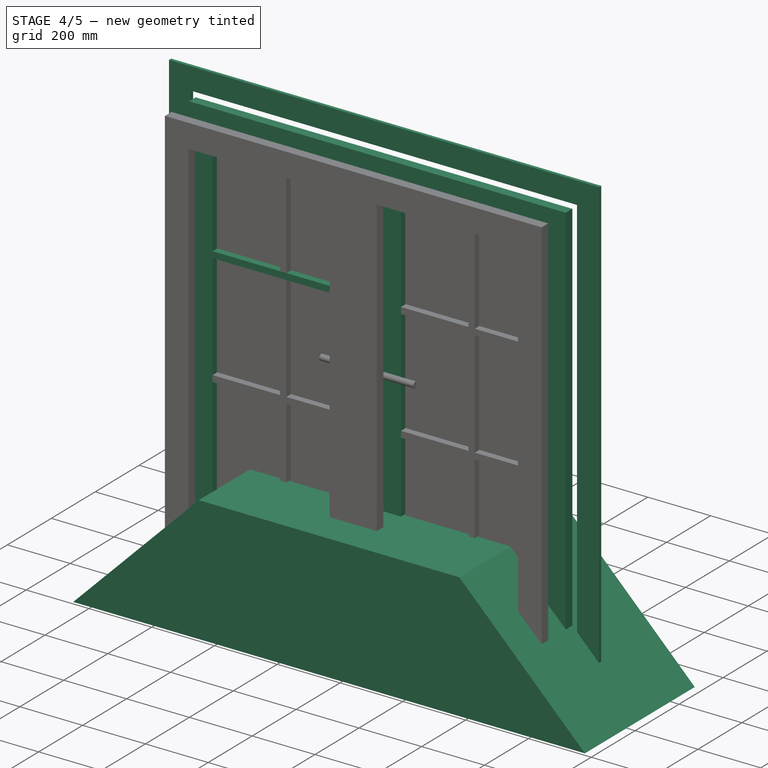
[diagram: stage 4 of 5 — iso view after this stage's code; geometry added in this stage tinted green]
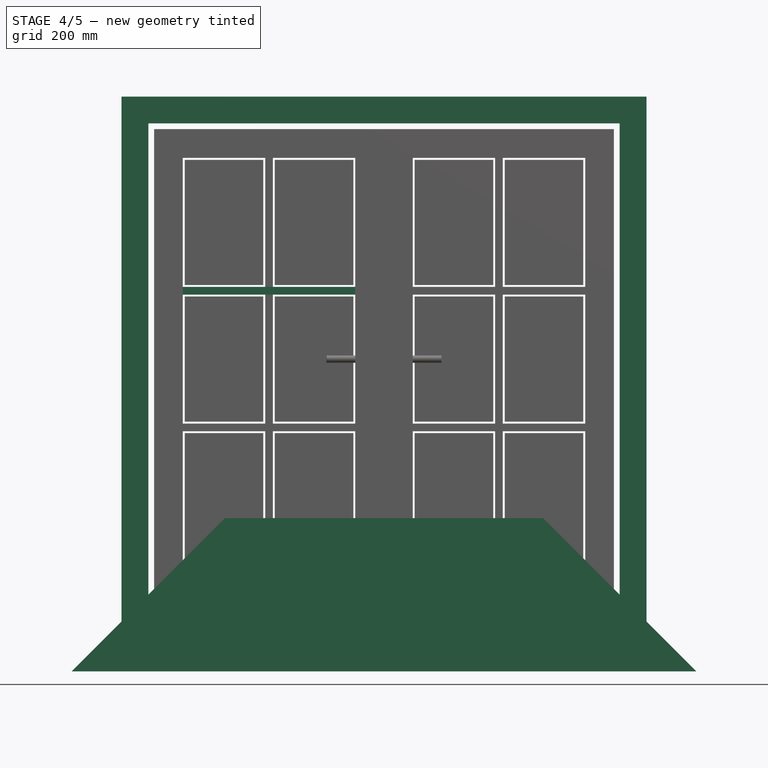
[diagram: stage 4 of 5 — front view after this stage's code; geometry added in this stage tinted green]
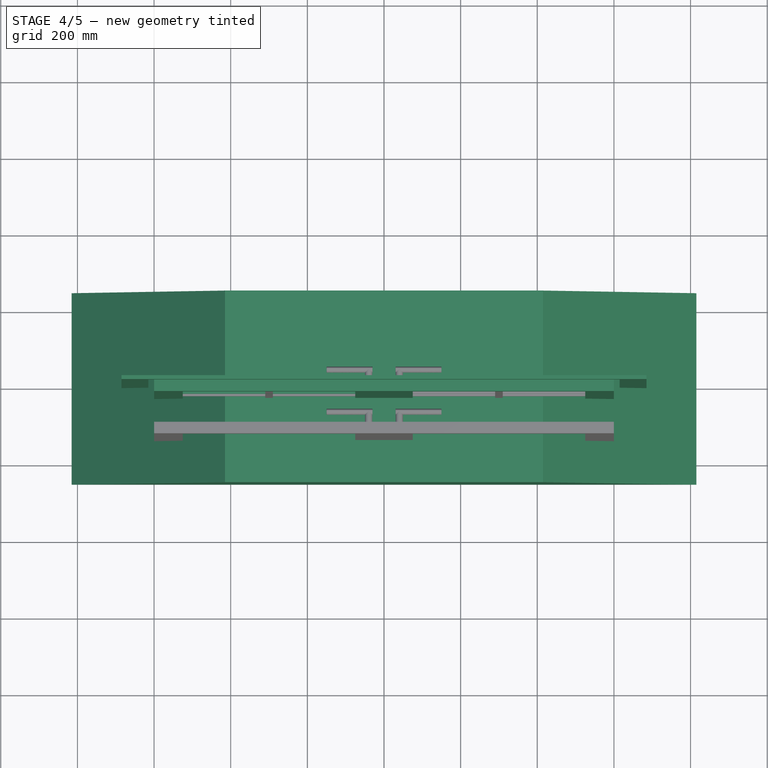
[diagram: stage 4 of 5 — top view after this stage's code; geometry added in this stage tinted green]
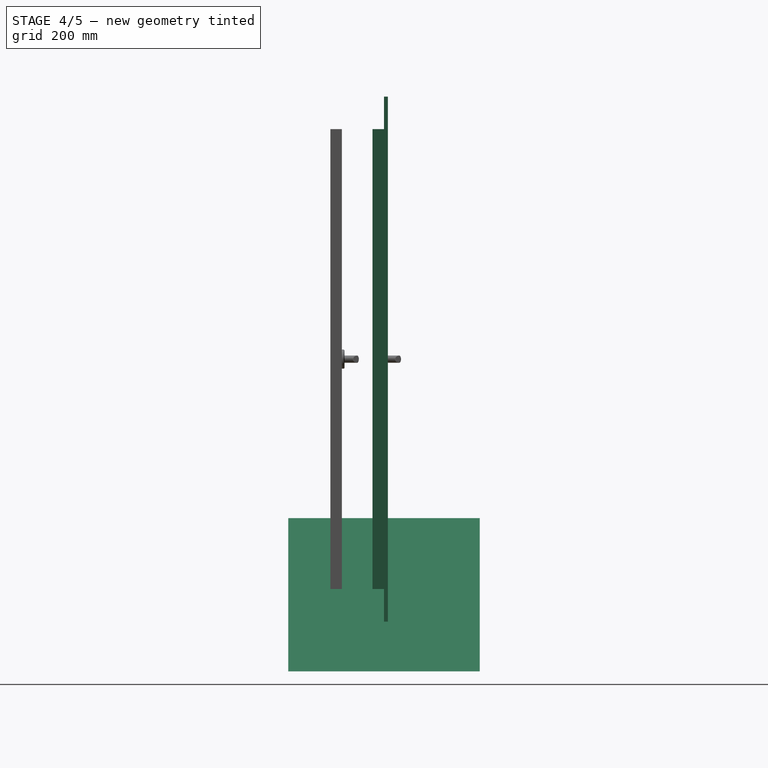
[diagram: stage 4 of 5 — right view after this stage's code; geometry added in this stage tinted green]
FEATURE [Sketcher::SketchObject] Sketch225
  ExternalGeometry = -> [Sketch195]
  FullyConstrained = true
  MapMode = 2
  Placement = pos=(25,1.156e-13,25) rot=(1,0,0;1.5708rad)
  Support = -> [Sketch195]
  sketch-geometry (4):
    g0: LineSegment StartX=-440 StartY=1050 StartZ=0 EndX=390 EndY=1050 EndZ=0
    g1: LineSegment StartX=390 StartY=1050 StartZ=0 EndX=790 EndY=650 EndZ=0
    g2: LineSegment StartX=790 StartY=650 StartZ=0 EndX=-840 EndY=650 EndZ=0
    g3: LineSegment StartX=-840 StartY=650 StartZ=0 EndX=-440 EndY=1050 EndZ=0
  constraints (12):
    c: Horizontal(g0)
    c: Coincident(g0,g1)
    c: Coincident(g1,g2)
    c: Horizontal(g2)
    c: Coincident(g2,g3)
    c: Coincident(g3,g0)
    c: Angle(g1,g2) = 0.785398
    c: Angle(g2,g3) = 0.785398
    c: PointOnObject(g-3,g3)
    c: PointOnObject(g-3,g1)
    c: DistanceY(g-3,g0) = 200
    c: DistanceY(g1,g-3) = 200
FEATURE [Part::Extrusion] Extrude039436  label="Extrude039436_interinal_inferior_"
  Base = -> Sketch225
  Dir = (0,-1,2e-16)
  DirMode = 2
  FaceMakerClass = Part::FaceMakerBullseye
  LengthFwd = 500
  LengthRev = 0
  Solid = true
  Symmetric = true
FEATURE [Sketcher::SketchObject] Sketch247  label="Sketch247_Path_vertical_shutters_left"
  FullyConstrained = true
  MapMode = 3
  Placement = pos=(-600,-140,890) rot=(-1,0,0;1.5708rad)
  Support = -> [Clone2D049]
  expr: .Constraints.Height = Prop.B_Window_height - Prop.B_Edge1_horizontal_width - Prop.B_Edge2_horizontal_width - (Prop.B_Window_height - Prop.B_Edge1_horizontal_width - Prop.B_Edge2_horizontal_width) / (Prop.D_Shutters_units <= 1 ? 1 : Prop.D_Shutters_units) - Prop.B_Shutter_overlap
  sketch-geometry (1):
    g0: LineSegment StartX=0 StartY=0 StartZ=0 EndX=0 EndY=-999.615 EndZ=0
  constraints (3):
    c: Coincident(g0,g-1)
    c: Vertical(g0)
    c: DistanceY(g0,g0) = 999.615  'Height'
FEATURE [Sketcher::SketchObject] Sketch248  label="Sketch248_Path_vertical_shutters_right_"
  FullyConstrained = true
  MapMode = 3
  Placement = pos=(600,-140,890) rot=(0,0.707107,0.707107;3.14159rad)
  Support = -> [Clone2D050]
  expr: .Constraints.Height = Prop.B_Window_height - Prop.B_Edge1_horizontal_width - Prop.B_Edge2_horizontal_width - (Prop.B_Window_height - Prop.B_Edge1_horizontal_width - Prop.B_Edge2_horizontal_width) / (Prop.D_Shutters_units <= 1 ? 1 : Prop.D_Shutters_units) - Prop.B_Shutter_overlap
  sketch-geometry (1):
    g0: LineSegment StartX=0 StartY=999.615 StartZ=0 EndX=0 EndY=0 EndZ=0
  constraints (3):
    c: Vertical(g0)
    c: DistanceY(g0,g0) = 999.615  'Height'
    c: Coincident(g0,g-1)
FEATURE [Part::Sweep] Sweep004  label="Internal_frame_"
  Frenet = false
  Sections = -> [Clone2D043]
  Solid = false
  Spine = -> Sketch010 [Edge2,Edge1,Edge4,Edge3]
  Transition = 2
  expr: .Placement.Base.y = 0
FEATURE [Part::FeaturePython] PathArray004  # WARN: FeaturePython — macro-defined, semantics opaque (R4)
  Align = false
  AlignMode = 0
  Base = -> Sweep004
  Count = 3
  EndOffset = 0
  ExtraTranslation = (-2.33e-13,-1.1e-13,0)
  ForceVertical = false
  PathObject = -> Sketch237
  StartOffset = 0
  TangentVector = (1,0,0)
  VerticalVector = (0,0,1)
  expr: .ExtraTranslation.x = -Sketch233.Placement.Base.x
  expr: .ExtraTranslation.y = -Sketch233.Placement.Base.y
  expr: .ExtraTranslation.z = -Sketch233.Placement.Base.z
  expr: Count = Prop.B_Internal_panel_vertical_units <= 1 ? 1 : Prop.B_Internal_panel_vertical_units
FEATURE [Part::Sweep] Sweep012  label="4.2. Internal_trim_"
  Frenet = true
  Sections = -> [Clone2D061]
  Solid = true
  Spine = -> Sketch195 [Edge4,Edge3,Edge2,Edge1]
  Transition = 1
FEATURE [Part::Extrusion] Extrude039227  label="02-Edge1_vertical_left_"
  Base = -> Clone2D033
  Dir = (0,-2e-16,-1)
  DirMode = 2
  FaceMakerClass = Part::FaceMakerBullseye
  LengthFwd = 1200
  LengthRev = 0
  Material = -> Material024
  Reversed = true
  Solid = true
  Symmetric = false
  expr: LengthFwd = Prop.D_Edge_vertical_height
  expr: Material = Prop.C_Edges_vertical_material
  expr: Visibility = Prop.A_General_visibility
FEATURE [Part::Extrusion] Extrude039228  label="02-Edge1_horizontal_left_"
  Base = -> Clone2D035
  Dir = (1,0,-2e-16)
  DirMode = 2
  FaceMakerClass = Part::FaceMakerBullseye
  LengthFwd = 450
  LengthRev = 0
  Material = -> Material024
  Solid = true
  Symmetric = false
  expr: LengthFwd = Prop.D_Edge_horizontal_length
  expr: Material = Prop.C_Edges_horizontal_material
  expr: Visibility = Prop.A_General_visibility
FEATURE [Part::Extrusion] Extrude039229  label="02-Edge2_vertical_left_"
  Base = -> Clone2D034
  Dir = (0,-2e-16,-1)
  DirMode = 2
  FaceMakerClass = Part::FaceMakerBullseye
  LengthFwd = 1200
  LengthRev = 0
  Material = -> Material024
  Reversed = true
  Solid = true
  Symmetric = false
  expr: LengthFwd = Prop.D_Edge_vertical_height
  expr: Material = Prop.C_Edges_vertical_material
  expr: Visibility = Prop.A_General_visibility
FEATURE [Part::Extrusion] Extrude039230  label="02-Edge2_horizontal_left_"
  Base = -> Clone2D036
  Dir = (1,0,-2e-16)
  DirMode = 2
  FaceMakerClass = Part::FaceMakerBullseye
  LengthFwd = 450
  LengthRev = 0
  Material = -> Material024
  Solid = true
  Symmetric = false
  expr: LengthFwd = Prop.D_Edge_horizontal_length
  expr: Material = Prop.C_Edges_horizontal_material
  expr: Visibility = Prop.A_General_visibility
FEATURE [Part::Extrusion] Extrude039441  label="02-Edge1_horizontal_right_"
  Base = -> Clone2D037
  Dir = (1,0,-2e-16)
  DirMode = 2
  FaceMakerClass = Part::FaceMakerBullseye
  LengthFwd = 450
  LengthRev = 0
  Material = -> Material024
  Reversed = true
  Solid = true
  Symmetric = false
  expr: LengthFwd = Prop.D_Edge_horizontal_length
  expr: Material = Prop.C_Edges_horizontal_material
  expr: Visibility = Prop.A_General_visibility
FEATURE [Part::Extrusion] Extrude039442  label="02-Edge2_horizontal_right_"
  Base = -> Clone2D038
  Dir = (1,0,-2e-16)
  DirMode = 2
  FaceMakerClass = Part::FaceMakerBullseye
  LengthFwd = 450
  LengthRev = 0
  Material = -> Material024
  Reversed = true
  Solid = true
  Symmetric = false
  expr: LengthFwd = Prop.D_Edge_horizontal_length
  expr: Material = Prop.C_Edges_horizontal_material
  expr: Visibility = Prop.A_General_visibility
FEATURE [Part::Extrusion] Extrude039443  label="02-Edge1_vertical_right"
  Base = -> Clone2D039
  Dir = (0,2e-16,1)
  DirMode = 2
  FaceMakerClass = Part::FaceMakerBullseye
  LengthFwd = 1200
  LengthRev = 0
  Material = -> Material024
  Solid = true
  Symmetric = false
  expr: LengthFwd = Prop.D_Edge_vertical_height
  expr: Material = Prop.C_Edges_vertical_material
  expr: Visibility = Prop.A_General_visibility
FEATURE [Part::Extrusion] Extrude039444  label="02-Edge2_vertical_right_"
  Base = -> Clone2D040
  Dir = (0,2e-16,1)
  DirMode = 2
  FaceMakerClass = Part::FaceMakerBullseye
  LengthFwd = 1200
  LengthRev = 0
  Material = -> Material024
  Solid = true
  Symmetric = false
  expr: LengthFwd = Prop.D_Edge_vertical_height
  expr: Material = Prop.C_Edges_vertical_material
  expr: Visibility = Prop.A_General_visibility
FEATURE [Part::FeaturePython] PathArray002  label="03-PathArray002_Subframe_horizontal_left_"  # WARN: FeaturePython — macro-defined, semantics opaque (R4)
  Align = false
  AlignMode = 0
  Base = -> Extrude012
  Count = 2
  EndOffset = 0
  ExtraTranslation = (-2.33e-13,-1.1e-13,0)
  ForceVertical = false
  Material = -> Material024
  PathObject = -> Sketch239
  StartOffset = 0
  TangentVector = (1,0,0)
  VerticalVector = (0,0,1)
  expr: .ExtraTranslation.x = -Sketch233.Placement.Base.x
  expr: .ExtraTranslation.y = -Sketch233.Placement.Base.y
  expr: .ExtraTranslation.z = -Sketch233.Placement.Base.z
  expr: Count = Prop.B_Internal_panel_vertical_units - 1 <= 1 ? 1 : Prop.B_Internal_panel_vertical_units - 1
  expr: Material = Prop.C_Sub_frame_horizontal_material
  expr: Visibility = Prop.A_General_visibility * Prop.A_Sub_frame_horizontal
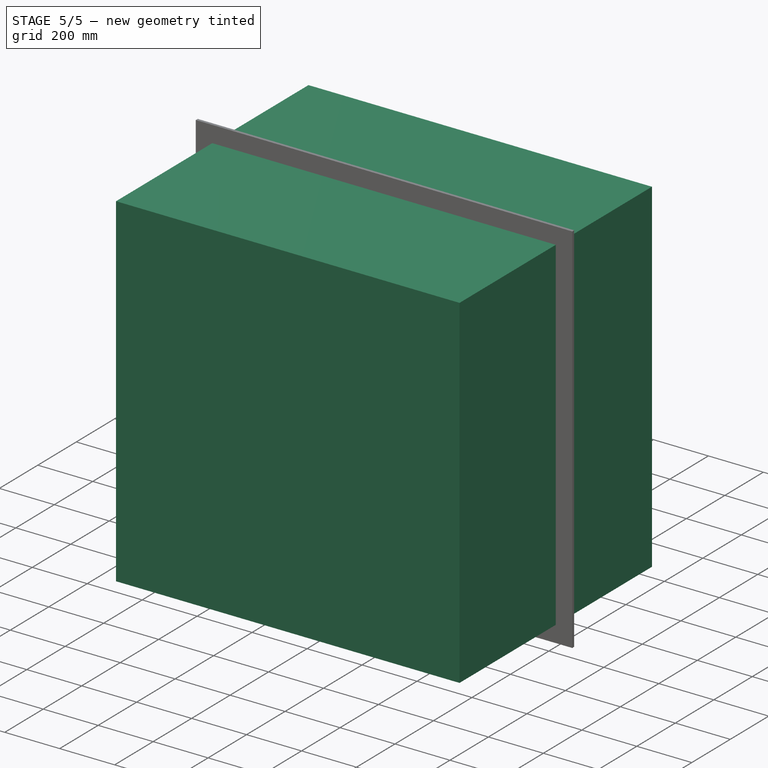
[diagram: stage 5 of 5 — iso view after this stage's code; geometry added in this stage tinted green]
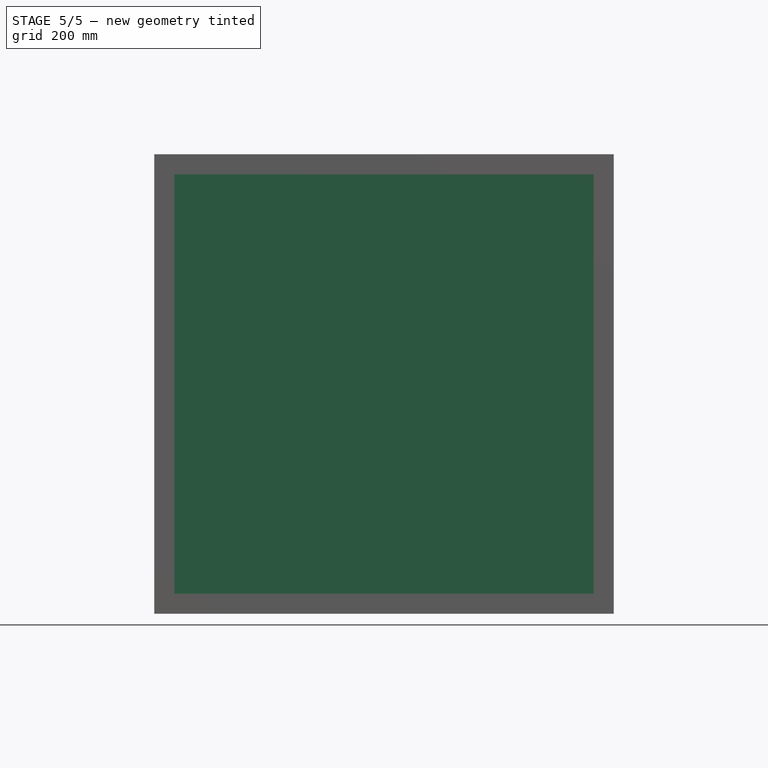
[diagram: stage 5 of 5 — front view after this stage's code; geometry added in this stage tinted green]
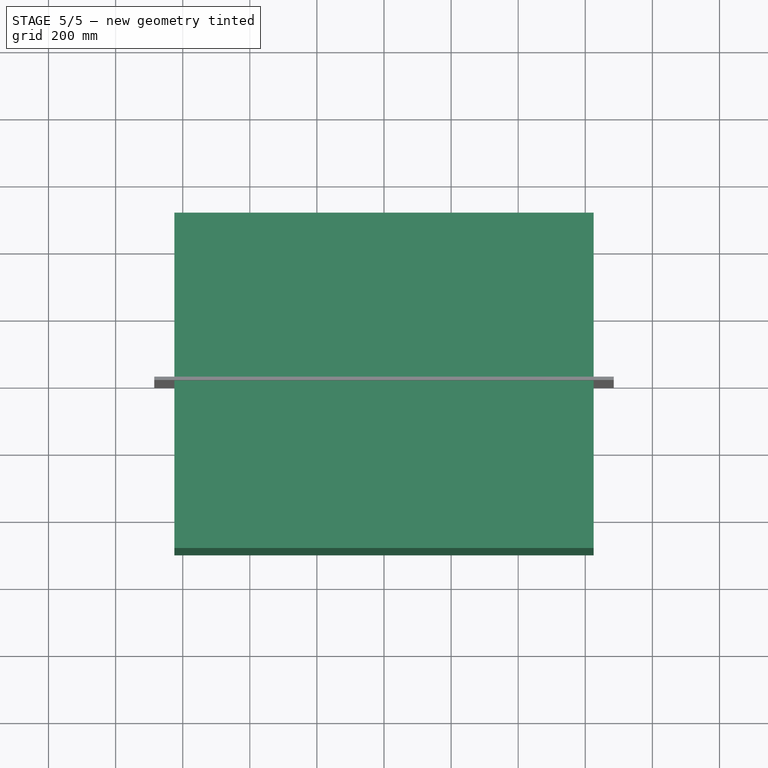
[diagram: stage 5 of 5 — top view after this stage's code; geometry added in this stage tinted green]
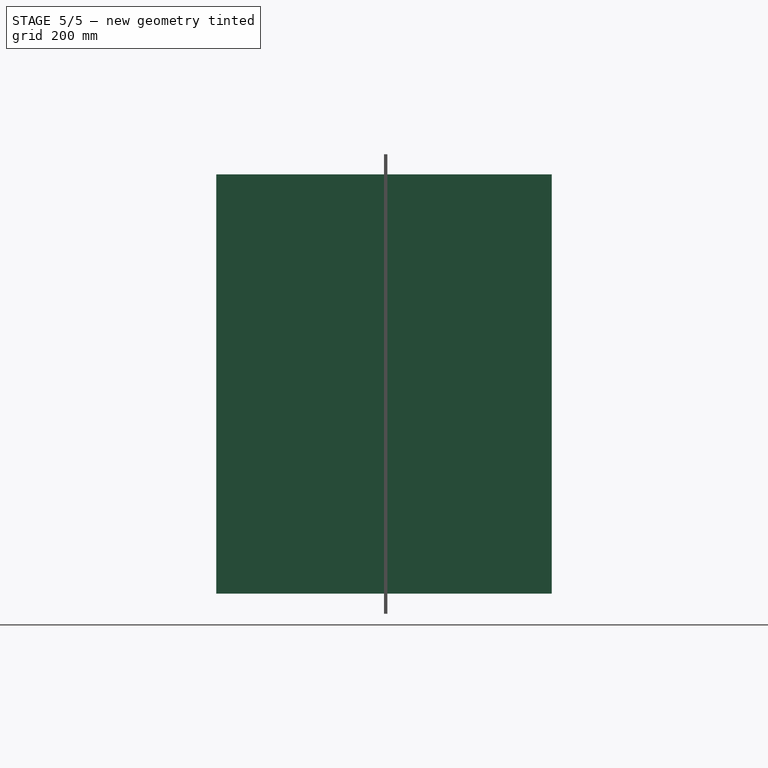
[diagram: stage 5 of 5 — right view after this stage's code; geometry added in this stage tinted green]
FEATURE [Sketcher::SketchObject] Sketch195  label="Dimensions_internal_trim_"
  AttachmentOffset = pos=(25,25,0) rot=(0,0,1;0rad)
  ExternalGeometry = -> [Sketch233]
  FullyConstrained = true
  MapMode = 2
  Placement = pos=(25,1.156e-13,25) rot=(1,0,0;1.5708rad)
  Support = -> [Sketch233]
  expr: .AttachmentOffset.Base.x = Prop.B_Main_frame_thickness - Prop.B_Main_frame_left_joint
  expr: .AttachmentOffset.Base.y = Prop.B_Main_frame_thickness - Prop.B_Main_frame_inferior_joint
  expr: .Constraints.Heith = Prop.B_Window_height + 2 * Prop.B_Trim_internal_gap
  expr: .Constraints.Width = Prop.B_Window_width + 2 * Prop.B_Trim_internal_gap
  sketch-geometry (4):
    g0: LineSegment StartX=-640 StartY=850 StartZ=0 EndX=590 EndY=850 EndZ=0
    g1: LineSegment StartX=590 StartY=850 StartZ=0 EndX=590 EndY=2080 EndZ=0
    g2: LineSegment StartX=590 StartY=2080 StartZ=0 EndX=-640 EndY=2080 EndZ=0
    g3: LineSegment StartX=-640 StartY=2080 StartZ=0 EndX=-640 EndY=850 EndZ=0
  constraints (10):
    c: Coincident(g0,g1)
    c: Coincident(g1,g2)
    c: Coincident(g2,g3)
    c: Horizontal(g0)
    c: Vertical(g1)
    c: DistanceX(g2,g2) = 1230  'Width'
    c: DistanceY(g1,g1) = 1230  'Heith'
    c: Coincident(g0,g3)
    c: Symmetric(g2,g0,g-4)
    c: Symmetric(g2,g1,g-3)
FEATURE [Part::Part2DObjectPython] Clone2D061  label="Trim_profile_01 (2D)"  # Draft 2D object (typed FeaturePython)
  AttachmentOffset = pos=(850,0,0) rot=(1,0,0;3.14159rad)
  Fuse = false
  MapMode = 4
  Objects = -> [Sketch049]
  Placement = pos=(25,3.043e-13,875) rot=(0,1,0;4.71239rad)
  Scale = (1,1,1)
  Support = -> [Sketch195]
  expr: .AttachmentOffset.Base.x = Prop.B_Window_sill - Prop.B_Main_frame_thickness - Prop.B_Trim_internal_gap
  expr: .AttachmentOffset.Base.y = 0
  expr: Objects = Prop001.A_Trim_profile
FEATURE [Sketcher::SketchObject] Sketch223
  ExternalGeometry = -> [Sketch195]
  FullyConstrained = true
  MapMode = 2
  Placement = pos=(25,1.156e-13,25) rot=(1,0,0;1.5708rad)
  Support = -> [Sketch195]
  sketch-geometry (4):
    g0: LineSegment StartX=-440 StartY=1880 StartZ=0 EndX=-840 EndY=2280 EndZ=0
    g1: LineSegment StartX=-840 StartY=2280 StartZ=0 EndX=790 EndY=2280 EndZ=0
    g2: LineSegment StartX=790 StartY=2280 StartZ=0 EndX=390 EndY=1880 EndZ=0
    g3: LineSegment StartX=390 StartY=1880 StartZ=0 EndX=-440 EndY=1880 EndZ=0
  constraints (12):
    c: Coincident(g0,g1)
    c: Horizontal(g1)
    c: Coincident(g1,g2)
    c: Coincident(g2,g3)
    c: Horizontal(g3)
    c: Coincident(g3,g0)
    c: Angle(g0,g1) = 0.785398
    c: Angle(g1,g2) = 0.785398
    c: PointOnObject(g-3,g0)
    c: PointOnObject(g-3,g2)
    c: DistanceY(g-3,g1) = 200
    c: DistanceY(g2,g-3) = 200
FEATURE [Part::Extrusion] Extrude039434  label="Extrude039434_Interinal_superior_"
  Base = -> Sketch223
  Dir = (0,-1,2e-16)
  DirMode = 2
  FaceMakerClass = Part::FaceMakerBullseye
  LengthFwd = 500
  LengthRev = 0
  Solid = true
  Symmetric = true
FEATURE [Part::Compound] Compound051  label="Compound051_internal_"
  Links = -> [Extrude039434,Extrude039436]
FEATURE [App::DocumentObjectGroup] Group229  label="Metal_"
  Group = -> [Material023]
FEATURE [App::DocumentObjectGroup] Group265  label="05-Hardwares"
  Group = -> [Clone007,Clone006]
FEATURE [App::DocumentObjectGroup] Group268  label="04-Hardwares_"
  Group = -> [Clone008,Clone009]
FEATURE [Sketcher::SketchObject] Sketch196  label="Frame_rectangular_35x90_PROFILE_"
  FullyConstrained = true
  sketch-geometry (4):
    g0: LineSegment StartX=0 StartY=0 StartZ=0 EndX=-35 EndY=0 EndZ=0
    g1: LineSegment StartX=-35 StartY=0 StartZ=0 EndX=-35 EndY=-90 EndZ=0
    g2: LineSegment StartX=-35 StartY=-90 StartZ=0 EndX=0 EndY=-90 EndZ=0
    g3: LineSegment StartX=0 StartY=-90 StartZ=0 EndX=0 EndY=0 EndZ=0
  constraints (11):
    c: Coincident(g0,g1)
    c: Coincident(g1,g2)
    c: Coincident(g2,g3)
    c: Coincident(g3,g0)
    c: Horizontal(g0)
    c: Horizontal(g2)
    c: Vertical(g1)
    c: Vertical(g3)
    c: Coincident(g0,g-1)
    c: DistanceX(g0,g0) = 35  'Thickness'
    c: DistanceY(g1,g1) = 90  'Width'
FEATURE [Sketcher::SketchObject] Sketch197  label="Frame_rectangular_one_joint_35x90_PROFILE_"
  FullyConstrained = true
  sketch-geometry (6):
    g0: LineSegment StartX=0 StartY=0 StartZ=0 EndX=-25 EndY=0 EndZ=0
    g1: LineSegment StartX=-25 StartY=0 StartZ=0 EndX=-25 EndY=-90 EndZ=0
    g2: LineSegment StartX=-25 StartY=-90 StartZ=0 EndX=10 EndY=-90 EndZ=0
    g3: LineSegment StartX=10 StartY=-90 StartZ=0 EndX=10 EndY=-36 EndZ=0
    g4: LineSegment StartX=0 StartY=0 StartZ=0 EndX=0 EndY=-36 EndZ=0
    g5: LineSegment StartX=0 StartY=-36 StartZ=0 EndX=10 EndY=-36 EndZ=0
  constraints (17):
    c: Coincident(g0,g1)
    c: Coincident(g1,g2)
    c: Coincident(g2,g3)
    c: Horizontal(g0)
    c: Horizontal(g2)
    c: Vertical(g1)
    c: Vertical(g3)
    c: DistanceY(g1,g1) = 90  'Width_90_115_140_190'
    c: Vertical(g4)
    c: Coincident(g4,g5)
    c: Horizontal(g5)
    c: Coincident(g0,g4)
    c: Coincident(g3,g5)
    c: DistanceY(g4,g4) = 36  'Panel_thickness'
    c: DistanceX(g5,g5) = 10  'Joint'
    c: Coincident(g0,g-1)
    c: DistanceX(g2,g2) = 35  'Thickness'
FEATURE [Sketcher::SketchObject] Sketch198  label="Frame_rectangular_two_joint_35x90_PROFILE_"
  FullyConstrained = true
  sketch-geometry (8):
    g0: LineSegment StartX=0 StartY=0 StartZ=0 EndX=-25 EndY=0 EndZ=0
    g1: LineSegment StartX=-25 StartY=0 StartZ=0 EndX=-25 EndY=-90 EndZ=0
    g2: LineSegment StartX=-25 StartY=-90 StartZ=0 EndX=0 EndY=-90 EndZ=0
    g3: LineSegment StartX=10 StartY=-54 StartZ=0 EndX=10 EndY=-36 EndZ=0
    g4: LineSegment StartX=0 StartY=0 StartZ=0 EndX=0 EndY=-36 EndZ=0
    g5: LineSegment StartX=0 StartY=-36 StartZ=0 EndX=10 EndY=-36 EndZ=0
    g6: LineSegment StartX=1.1e-15 StartY=-90 StartZ=0 EndX=1.1e-15 EndY=-54 EndZ=0
    g7: LineSegment StartX=1.1e-15 StartY=-54 StartZ=0 EndX=10 EndY=-54 EndZ=0
  constraints (23):
    c: Coincident(g0,g1)
    c: Coincident(g1,g2)
    c: Horizontal(g0)
    c: Horizontal(g2)
    c: Vertical(g1)
    c: Vertical(g3)
    c: DistanceY(g1,g1) = 90  'Width_90_115_140_190'
    c: Vertical(g4)
    c: Coincident(g4,g5)
    c: Horizontal(g5)
    c: Coincident(g0,g4)
    c: Coincident(g3,g5)
    c: DistanceY(g4,g4) = 36  'Panel_thickness'
    c: DistanceX(g5,g5) = 10  'Joint'
    c: Coincident(g0,g-1)
    c: Vertical(g6)
    c: Coincident(g6,g7)
    c: Horizontal(g7)
    c: Coincident(g3,g7)
    c: Coincident(g2,g6)
    c: Equal(g5,g7)
    c: Equal(g4,g6)
    c: DistanceX(g2,g2) = 25  'Thickness'
FEATURE [Sketcher::SketchObject] Sketch199  label="Frame_square_50x50_PROFILE_"
  FullyConstrained = true
  sketch-geometry (4):
    g0: LineSegment StartX=0 StartY=0 StartZ=0 EndX=-50 EndY=0 EndZ=0
    g1: LineSegment StartX=-50 StartY=0 StartZ=0 EndX=-50 EndY=-50 EndZ=0
    g2: LineSegment StartX=-50 StartY=-50 StartZ=0 EndX=0 EndY=-50 EndZ=0
    g3: LineSegment StartX=0 StartY=-50 StartZ=0 EndX=0 EndY=0 EndZ=0
  constraints (11):
    c: Coincident(g0,g1)
    c: Coincident(g1,g2)
    c: Coincident(g2,g3)
    c: Coincident(g3,g0)
    c: Horizontal(g0)
    c: Horizontal(g2)
    c: Vertical(g1)
    c: Vertical(g3)
    c: Coincident(g0,g-1)
    c: DistanceX(g0,g0) = 50  'Thickness'
    c: DistanceY(g1,g1) = 50  'Width'
FEATURE [Sketcher::SketchObject] Sketch200  label="Frame_square_60x60_PROFILE_"
  FullyConstrained = true
  sketch-geometry (4):
    g0: LineSegment StartX=0 StartY=0 StartZ=0 EndX=-60 EndY=0 EndZ=0
    g1: LineSegment StartX=-60 StartY=0 StartZ=0 EndX=-60 EndY=-60 EndZ=0
    g2: LineSegment StartX=-60 StartY=-60 StartZ=0 EndX=0 EndY=-60 EndZ=0
    g3: LineSegment StartX=0 StartY=-60 StartZ=0 EndX=0 EndY=0 EndZ=0
  constraints (11):
    c: Coincident(g0,g1)
    c: Coincident(g1,g2)
    c: Coincident(g2,g3)
    c: Coincident(g3,g0)
    c: Horizontal(g0)
    c: Horizontal(g2)
    c: Vertical(g1)
    c: Vertical(g3)
    c: Coincident(g0,g-1)
    c: DistanceX(g0,g0) = 60  'Thickness'
    c: DistanceY(g1,g1) = 60  'Width'
FEATURE [Sketcher::SketchObject] Sketch201  label="Frame_rectangular_35x115_PROFILE_"
  FullyConstrained = true
  sketch-geometry (4):
    g0: LineSegment StartX=0 StartY=0 StartZ=0 EndX=-35 EndY=0 EndZ=0
    g1: LineSegment StartX=-35 StartY=0 StartZ=0 EndX=-35 EndY=-115 EndZ=0
    g2: LineSegment StartX=-35 StartY=-115 StartZ=0 EndX=0 EndY=-115 EndZ=0
    g3: LineSegment StartX=0 StartY=-115 StartZ=0 EndX=0 EndY=0 EndZ=0
  constraints (11):
    c: Coincident(g0,g1)
    c: Coincident(g1,g2)
    c: Coincident(g2,g3)
    c: Coincident(g3,g0)
    c: Horizontal(g0)
    c: Horizontal(g2)
    c: Vertical(g1)
    c: Vertical(g3)
    c: Coincident(g0,g-1)
    c: DistanceX(g0,g0) = 35  'Thickness'
    c: DistanceY(g1,g1) = 115  'Width'
FEATURE [Sketcher::SketchObject] Sketch202  label="Frame_rectangular_35x140_PROFILE_"
  FullyConstrained = true
  sketch-geometry (4):
    g0: LineSegment StartX=0 StartY=0 StartZ=0 EndX=-35 EndY=0 EndZ=0
    g1: LineSegment StartX=-35 StartY=0 StartZ=0 EndX=-35 EndY=-140 EndZ=0
    g2: LineSegment StartX=-35 StartY=-140 StartZ=0 EndX=0 EndY=-140 EndZ=0
    g3: LineSegment StartX=0 StartY=-140 StartZ=0 EndX=0 EndY=0 EndZ=0
  constraints (11):
    c: Coincident(g0,g1)
    c: Coincident(g1,g2)
    c: Coincident(g2,g3)
    c: Coincident(g3,g0)
    c: Horizontal(g0)
    c: Horizontal(g2)
    c: Vertical(g1)
    c: Vertical(g3)
    c: Coincident(g0,g-1)
    c: DistanceX(g0,g0) = 35  'Thickness'
    c: DistanceY(g1,g1) = 140  'Width'
FEATURE [Sketcher::SketchObject] Sketch203  label="Frame_rectangular_35x190_PROFILE_"
  FullyConstrained = true
  sketch-geometry (4):
    g0: LineSegment StartX=0 StartY=0 StartZ=0 EndX=-35 EndY=0 EndZ=0
    g1: LineSegment StartX=-35 StartY=0 StartZ=0 EndX=-35 EndY=-190 EndZ=0
    g2: LineSegment StartX=-35 StartY=-190 StartZ=0 EndX=0 EndY=-190 EndZ=0
    g3: LineSegment StartX=0 StartY=-190 StartZ=0 EndX=0 EndY=0 EndZ=0
  constraints (11):
    c: Coincident(g0,g1)
    c: Coincident(g1,g2)
    c: Coincident(g2,g3)
    c: Coincident(g3,g0)
    c: Horizontal(g0)
    c: Horizontal(g2)
    c: Vertical(g1)
    c: Vertical(g3)
    c: Coincident(g0,g-1)
    c: DistanceX(g0,g0) = 35  'Thickness'
    c: DistanceY(g1,g1) = 190  'Width'
FEATURE [Sketcher::SketchObject] Sketch204  label="Frame_rectangular_parametric_PROFILE_"
  FullyConstrained = true
  expr: .Constraints.Thickness = Prop017.B_Frame_rectangular_parametric_profile_thickness
  expr: .Constraints.Width = Prop017.B_Frame_rectangular_parametric_profile_width
  sketch-geometry (4):
    g0: LineSegment StartX=0 StartY=0 StartZ=0 EndX=-30 EndY=0 EndZ=0
    g1: LineSegment StartX=-30 StartY=0 StartZ=0 EndX=-30 EndY=-50 EndZ=0
    g2: LineSegment StartX=-30 StartY=-50 StartZ=0 EndX=0 EndY=-50 EndZ=0
    g3: LineSegment StartX=0 StartY=-50 StartZ=0 EndX=0 EndY=0 EndZ=0
  constraints (11):
    c: Coincident(g0,g1)
    c: Coincident(g1,g2)
    c: Coincident(g2,g3)
    c: Coincident(g3,g0)
    c: Horizontal(g0)
    c: Horizontal(g2)
    c: Vertical(g1)
    c: Vertical(g3)
    c: Coincident(g0,g-1)
    c: DistanceX(g0,g0) = 30  'Thickness'
    c: DistanceY(g1,g1) = 50  'Width'
FEATURE [App::DocumentObjectGroup] Group235  label="Rectangular_"
  Group = -> [Sketch196,Sketch201,Sketch202,Sketch203,Sketch204]
FEATURE [Sketcher::SketchObject] Sketch205  label="Frame_rectangular_one_joint_35x115_PROFILE_"
  FullyConstrained = true
  sketch-geometry (6):
    g0: LineSegment StartX=0 StartY=0 StartZ=0 EndX=-25 EndY=0 EndZ=0
    g1: LineSegment StartX=-25 StartY=0 StartZ=0 EndX=-25 EndY=-115 EndZ=0
    g2: LineSegment StartX=-25 StartY=-115 StartZ=0 EndX=10 EndY=-115 EndZ=0
    g3: LineSegment StartX=10 StartY=-115 StartZ=0 EndX=10 EndY=-36 EndZ=0
    g4: LineSegment StartX=0 StartY=0 StartZ=0 EndX=0 EndY=-36 EndZ=0
    g5: LineSegment StartX=0 StartY=-36 StartZ=0 EndX=10 EndY=-36 EndZ=0
  constraints (17):
    c: Coincident(g0,g1)
    c: Coincident(g1,g2)
    c: Coincident(g2,g3)
    c: Horizontal(g0)
    c: Horizontal(g2)
    c: Vertical(g1)
    c: Vertical(g3)
    c: DistanceY(g1,g1) = 115  'Width_90_115_140_190'
    c: Vertical(g4)
    c: Coincident(g4,g5)
    c: Horizontal(g5)
    c: Coincident(g0,g4)
    c: Coincident(g3,g5)
    c: DistanceY(g4,g4) = 36  'Panel_thickness'
    c: DistanceX(g5,g5) = 10  'Joint'
    c: Coincident(g0,g-1)
    c: DistanceX(g2,g2) = 35  'Thickness'
FEATURE [Sketcher::SketchObject] Sketch206  label="Frame_rectangular_one_joint_35x140_PROFILE_"
  FullyConstrained = true
  sketch-geometry (6):
    g0: LineSegment StartX=0 StartY=0 StartZ=0 EndX=-25 EndY=0 EndZ=0
    g1: LineSegment StartX=-25 StartY=0 StartZ=0 EndX=-25 EndY=-140 EndZ=0
    g2: LineSegment StartX=-25 StartY=-140 StartZ=0 EndX=10 EndY=-140 EndZ=0
    g3: LineSegment StartX=10 StartY=-140 StartZ=0 EndX=10 EndY=-36 EndZ=0
    g4: LineSegment StartX=0 StartY=0 StartZ=0 EndX=0 EndY=-36 EndZ=0
    g5: LineSegment StartX=0 StartY=-36 StartZ=0 EndX=10 EndY=-36 EndZ=0
  constraints (17):
    c: Coincident(g0,g1)
    c: Coincident(g1,g2)
    c: Coincident(g2,g3)
    c: Horizontal(g0)
    c: Horizontal(g2)
    c: Vertical(g1)
    c: Vertical(g3)
    c: DistanceY(g1,g1) = 140  'Width_90_115_140_190'
    c: Vertical(g4)
    c: Coincident(g4,g5)
    c: Horizontal(g5)
    c: Coincident(g0,g4)
    c: Coincident(g3,g5)
    c: DistanceY(g4,g4) = 36  'Panel_thickness'
    c: DistanceX(g5,g5) = 10  'Joint'
    c: Coincident(g0,g-1)
    c: DistanceX(g2,g2) = 35  'Thickness'
FEATURE [Sketcher::SketchObject] Sketch207  label="Frame_rectangular_one_joint_35x190_PROFILE_"
  FullyConstrained = true
  sketch-geometry (6):
    g0: LineSegment StartX=0 StartY=0 StartZ=0 EndX=-25 EndY=0 EndZ=0
    g1: LineSegment StartX=-25 StartY=0 StartZ=0 EndX=-25 EndY=-190 EndZ=0
    g2: LineSegment StartX=-25 StartY=-190 StartZ=0 EndX=10 EndY=-190 EndZ=0
    g3: LineSegment StartX=10 StartY=-190 StartZ=0 EndX=10 EndY=-36 EndZ=0
    g4: LineSegment StartX=0 StartY=0 StartZ=0 EndX=0 EndY=-36 EndZ=0
    g5: LineSegment StartX=0 StartY=-36 StartZ=0 EndX=10 EndY=-36 EndZ=0
  constraints (17):
    c: Coincident(g0,g1)
    c: Coincident(g1,g2)
    c: Coincident(g2,g3)
    c: Horizontal(g0)
    c: Horizontal(g2)
    c: Vertical(g1)
    c: Vertical(g3)
    c: DistanceY(g1,g1) = 190  'Width_90_115_140_190'
    c: Vertical(g4)
    c: Coincident(g4,g5)
    c: Horizontal(g5)
    c: Coincident(g0,g4)
    c: Coincident(g3,g5)
    c: DistanceY(g4,g4) = 36  'Panel_thickness'
    c: DistanceX(g5,g5) = 10  'Joint'
    c: Coincident(g0,g-1)
    c: DistanceX(g2,g2) = 35  'Thickness'
FEATURE [Sketcher::SketchObject] Sketch208  label="Frame_rectangular_one_joint_parametric_PROFILE_"
  FullyConstrained = true
  expr: .Constraints.Joint = Prop017.B_Frame_rectangular_parametric_one_joint_profile_joint
  expr: .Constraints.Panel_thickness = Prop017.B_Frame_rectangular_parametric_one_joint_profile_thickness_panel
  expr: .Constraints.Thickness = Prop017.B_Frame_rectangular_parametric_one_joint_profile_thickness
  expr: .Constraints.Width_90_115_140_190 = Prop017.B_Frame_rectangular_parametric_one_joint_profile_width
  sketch-geometry (6):
    g0: LineSegment StartX=0 StartY=0 StartZ=0 EndX=-25 EndY=0 EndZ=0
    g1: LineSegment StartX=-25 StartY=0 StartZ=0 EndX=-25 EndY=-100 EndZ=0
    g2: LineSegment StartX=-25 StartY=-100 StartZ=0 EndX=10 EndY=-100 EndZ=0
    g3: LineSegment StartX=10 StartY=-100 StartZ=0 EndX=10 EndY=-36 EndZ=0
    g4: LineSegment StartX=0 StartY=0 StartZ=0 EndX=0 EndY=-36 EndZ=0
    g5: LineSegment StartX=0 StartY=-36 StartZ=0 EndX=10 EndY=-36 EndZ=0
  constraints (17):
    c: Coincident(g0,g1)
    c: Coincident(g1,g2)
    c: Coincident(g2,g3)
    c: Horizontal(g0)
    c: Horizontal(g2)
    c: Vertical(g1)
    c: Vertical(g3)
    c: DistanceY(g1,g1) = 100  'Width_90_115_140_190'
    c: Vertical(g4)
    c: Coincident(g4,g5)
    c: Horizontal(g5)
    c: Coincident(g0,g4)
    c: Coincident(g3,g5)
    c: DistanceY(g4,g4) = 36  'Panel_thickness'
    c: DistanceX(g5,g5) = 10  'Joint'
    c: Coincident(g0,g-1)
    c: DistanceX(g2,g2) = 35  'Thickness'
FEATURE [App::DocumentObjectGroup] Group236  label="Rectangular_one_joint_"
  Group = -> [Sketch197,Sketch205,Sketch206,Sketch207,Sketch208]
FEATURE [Sketcher::SketchObject] Sketch209  label="Frame_rectangular_two_joint_35x115_PROFILE_"
  FullyConstrained = true
  sketch-geometry (8):
    g0: LineSegment StartX=0 StartY=0 StartZ=0 EndX=-25 EndY=0 EndZ=0
    g1: LineSegment StartX=-25 StartY=0 StartZ=0 EndX=-25 EndY=-115 EndZ=0
    g2: LineSegment StartX=-25 StartY=-115 StartZ=0 EndX=0 EndY=-115 EndZ=0
    g3: LineSegment StartX=10 StartY=-79 StartZ=0 EndX=10 EndY=-36 EndZ=0
    g4: LineSegment StartX=0 StartY=0 StartZ=0 EndX=0 EndY=-36 EndZ=0
    g5: LineSegment StartX=0 StartY=-36 StartZ=0 EndX=10 EndY=-36 EndZ=0
    g6: LineSegment StartX=1.1e-15 StartY=-115 StartZ=0 EndX=1.1e-15 EndY=-79 EndZ=0
    g7: LineSegment StartX=1.1e-15 StartY=-79 StartZ=0 EndX=10 EndY=-79 EndZ=0
  constraints (23):
    c: Coincident(g0,g1)
    c: Coincident(g1,g2)
    c: Horizontal(g0)
    c: Horizontal(g2)
    c: Vertical(g1)
    c: Vertical(g3)
    c: DistanceY(g1,g1) = 115  'Width_90_115_140_190'
    c: Vertical(g4)
    c: Coincident(g4,g5)
    c: Horizontal(g5)
    c: Coincident(g0,g4)
    c: Coincident(g3,g5)
    c: DistanceY(g4,g4) = 36  'Panel_thickness'
    c: DistanceX(g5,g5) = 10  'Joint'
    c: Coincident(g0,g-1)
    c: Vertical(g6)
    c: Coincident(g6,g7)
    c: Horizontal(g7)
    c: Coincident(g3,g7)
    c: Coincident(g2,g6)
    c: Equal(g5,g7)
    c: Equal(g4,g6)
    c: DistanceX(g2,g2) = 25  'Thickness'
FEATURE [Sketcher::SketchObject] Sketch210  label="Frame_rectangular_two_joint_35x140_PROFILE_"
  FullyConstrained = true
  sketch-geometry (8):
    g0: LineSegment StartX=0 StartY=0 StartZ=0 EndX=-25 EndY=0 EndZ=0
    g1: LineSegment StartX=-25 StartY=0 StartZ=0 EndX=-25 EndY=-140 EndZ=0
    g2: LineSegment StartX=-25 StartY=-140 StartZ=0 EndX=0 EndY=-140 EndZ=0
    g3: LineSegment StartX=10 StartY=-104 StartZ=0 EndX=10 EndY=-36 EndZ=0
    g4: LineSegment StartX=0 StartY=0 StartZ=0 EndX=0 EndY=-36 EndZ=0
    g5: LineSegment StartX=0 StartY=-36 StartZ=0 EndX=10 EndY=-36 EndZ=0
    g6: LineSegment StartX=0 StartY=-140 StartZ=0 EndX=0 EndY=-104 EndZ=0
    g7: LineSegment StartX=0 StartY=-104 StartZ=0 EndX=10 EndY=-104 EndZ=0
  constraints (23):
    c: Coincident(g0,g1)
    c: Coincident(g1,g2)
    c: Horizontal(g0)
    c: Horizontal(g2)
    c: Vertical(g1)
    c: Vertical(g3)
    c: DistanceY(g1,g1) = 140  'Width_90_115_140_190'
    c: Vertical(g4)
    c: Coincident(g4,g5)
    c: Horizontal(g5)
    c: Coincident(g0,g4)
    c: Coincident(g3,g5)
    c: DistanceY(g4,g4) = 36  'Panel_thickness'
    c: DistanceX(g5,g5) = 10  'Joint'
    c: Coincident(g0,g-1)
    c: Vertical(g6)
    c: Coincident(g6,g7)
    c: Horizontal(g7)
    c: Coincident(g3,g7)
    c: Coincident(g2,g6)
    c: Equal(g5,g7)
    c: Equal(g4,g6)
    c: DistanceX(g2,g2) = 25  'Thickness'
FEATURE [Part::Part2DObjectPython] Clone2D027  label="Clone_profile_main_frame_vertical_right_"  # Draft 2D object (typed FeaturePython)
  AttachmentOffset = pos=(-600,0,890) rot=(1,0,0;3.14159rad)
  Fuse = false
  MapMode = 3
  Objects = -> [Sketch210]
  Placement = pos=(600,3.076e-13,890) rot=(0,1,0;3.14159rad)
  Scale = (1,1,1)
  Support = -> [Sketch233]
  expr: .AttachmentOffset.Base.x = -Prop.B_Window_width / 2
  expr: .AttachmentOffset.Base.y = 0
  expr: .AttachmentOffset.Base.z = Prop.B_Window_sill - Prop.B_Main_frame_inferior_joint
  expr: Objects = Prop001.A_Main_frame_vertical_right_profile
FEATURE [Part::Part2DObjectPython] Clone2D028  label="Clone_profile_main_frame_horizontal_superior_"  # Draft 2D object (typed FeaturePython)
  AttachmentOffset = pos=(2090,0,0) rot=(0,0,1;3.14159rad)
  Fuse = false
  MapMode = 4
  Objects = -> [Sketch210]
  Placement = pos=(6.971e-13,5.741e-13,2090) rot=(0,-1,0;4.71239rad)
  Scale = (1,1,1)
  Support = -> [Sketch233]
  expr: .AttachmentOffset.Base.x = Prop.B_Window_sill + Prop.B_Window_height - Prop.B_Main_frame_superior_joint
  expr: Objects = Prop001.A_Main_frame_horizontal_superior_profile
FEATURE [Part::Part2DObjectPython] Clone2D029  label="Clone_profile_main_frame_horizontal_inferior"  # Draft 2D object (typed FeaturePython)
  AttachmentOffset = pos=(890,0,0) rot=(1,0,0;3.14159rad)
  Fuse = false
  MapMode = 4
  Objects = -> [Sketch210]
  Placement = pos=(4.306e-13,3.076e-13,890) rot=(0,1,0;4.71239rad)
  Scale = (1,1,1)
  Support = -> [Sketch233]
  expr: .AttachmentOffset.Base.x = Prop.B_Window_sill - Prop.B_Main_frame_inferior_joint
  expr: Objects = Prop001.A_Main_frame_horizontal_inferior_profile
FEATURE [Part::Part2DObjectPython] Clone2D030  label="Clone_profile_main_frame_vertical_left_"  # Draft 2D object (typed FeaturePython)
  AttachmentOffset = pos=(-600,0,-890) rot=(1,0,0;3.14159rad)
  Fuse = false
  MapMode = 3
  Objects = -> [Sketch210]
  Placement = pos=(-600,3.076e-13,890) rot=(0,0,1;0rad)
  Scale = (1,1,1)
  Support = -> [Sketch233]
  expr: .AttachmentOffset.Base.x = -Prop.B_Window_width / 2
  expr: .AttachmentOffset.Base.z = -(Prop.B_Window_sill - Prop.B_Main_frame_inferior_joint)
  expr: Objects = Prop001.A_Main_frame_vertical_left_profile
FEATURE [Sketcher::SketchObject] Sketch211  label="Frame_rectangular_two_joint_35x190_PROFILE_001"
  FullyConstrained = true
  sketch-geometry (8):
    g0: LineSegment StartX=0 StartY=0 StartZ=0 EndX=-25 EndY=0 EndZ=0
    g1: LineSegment StartX=-25 StartY=0 StartZ=0 EndX=-25 EndY=-190 EndZ=0
    g2: LineSegment StartX=-25 StartY=-190 StartZ=0 EndX=0 EndY=-190 EndZ=0
    g3: LineSegment StartX=10 StartY=-154 StartZ=0 EndX=10 EndY=-36 EndZ=0
    g4: LineSegment StartX=0 StartY=0 StartZ=0 EndX=0 EndY=-36 EndZ=0
    g5: LineSegment StartX=0 StartY=-36 StartZ=0 EndX=10 EndY=-36 EndZ=0
    g6: LineSegment StartX=7e-16 StartY=-190 StartZ=0 EndX=7e-16 EndY=-154 EndZ=0
    g7: LineSegment StartX=7e-16 StartY=-154 StartZ=0 EndX=10 EndY=-154 EndZ=0
  constraints (23):
    c: Coincident(g0,g1)
    c: Coincident(g1,g2)
    c: Horizontal(g0)
    c: Horizontal(g2)
    c: Vertical(g1)
    c: Vertical(g3)
    c: DistanceY(g1,g1) = 190  'Width_90_115_140_190'
    c: Vertical(g4)
    c: Coincident(g4,g5)
    c: Horizontal(g5)
    c: Coincident(g0,g4)
    c: Coincident(g3,g5)
    c: DistanceY(g4,g4) = 36  'Panel_thickness'
    c: DistanceX(g5,g5) = 10  'Joint'
    c: Coincident(g0,g-1)
    c: Vertical(g6)
    c: Coincident(g6,g7)
    c: Horizontal(g7)
    c: Coincident(g3,g7)
    c: Coincident(g2,g6)
    c: Equal(g5,g7)
    c: Equal(g4,g6)
    c: DistanceX(g2,g2) = 25  'Thickness'
FEATURE [Sketcher::SketchObject] Sketch212  label="Frame_rectangular_two_joint_parametric_PROFILE_001"
  FullyConstrained = true
  expr: .Constraints.Joint = Prop017.B_Frame_rectangular_parametric_two_joint_profile_joint
  expr: .Constraints.Panel1_thickness = Prop017.B_Frame_rectangular_parametric_two_joint_profile_thickness_panel1
  expr: .Constraints.Panel2_thickness = Prop017.B_Frame_rectangular_parametric_two_joint_profile_thickness_panel2
  expr: .Constraints.Width_90_115_140_190 = Prop017.B_Frame_rectangular_parametric_two_joint_profile_width
  expr: Constraints[22] = Prop017.B_Frame_rectangular_parametric_two_joint_profile_thickness
  sketch-geometry (8):
    g0: LineSegment StartX=0 StartY=0 StartZ=0 EndX=-25 EndY=0 EndZ=0
    g1: LineSegment StartX=-25 StartY=0 StartZ=0 EndX=-25 EndY=-150 EndZ=0
    g2: LineSegment StartX=-25 StartY=-150 StartZ=0 EndX=0 EndY=-150 EndZ=0
    g3: LineSegment StartX=10 StartY=-114 StartZ=0 EndX=10 EndY=-36 EndZ=0
    g4: LineSegment StartX=0 StartY=0 StartZ=0 EndX=0 EndY=-36 EndZ=0
    g5: LineSegment StartX=0 StartY=-36 StartZ=0 EndX=10 EndY=-36 EndZ=0
    g6: LineSegment StartX=0 StartY=-150 StartZ=0 EndX=0 EndY=-114 EndZ=0
    g7: LineSegment StartX=0 StartY=-114 StartZ=0 EndX=10 EndY=-114 EndZ=0
  constraints (23):
    c: Coincident(g0,g1)
    c: Coincident(g1,g2)
    c: Horizontal(g0)
    c: Horizontal(g2)
    c: Vertical(g1)
    c: Vertical(g3)
    c: DistanceY(g1,g1) = 150  'Width_90_115_140_190'
    c: Vertical(g4)
    c: Coincident(g4,g5)
    c: Horizontal(g5)
    c: Coincident(g0,g4)
    c: Coincident(g3,g5)
    c: DistanceY(g4,g4) = 36  'Panel1_thickness'
    c: DistanceX(g5,g5) = 10  'Joint'
    c: Coincident(g0,g-1)
    c: Vertical(g6)
    c: Coincident(g6,g7)
    c: Horizontal(g7)
    c: Coincident(g3,g7)
    c: Coincident(g2,g6)
    c: Equal(g5,g7)
    c: DistanceY(g6,g6) = 36  'Panel2_thickness'
    c: DistanceX(g1,g3) = 35
FEATURE [App::DocumentObjectGroup] Group237  label="Rectangular_two_joints_"
  Group = -> [Sketch198,Sketch209,Sketch210,Sketch211,Sketch212]
FEATURE [Sketcher::SketchObject] Sketch213  label="Frame_rectangular_30x88_rounded_PROFILE_"
  FullyConstrained = true
  sketch-geometry (10):
    g0: LineSegment StartX=-3 StartY=-6.6449e-12 StartZ=0 EndX=-27 EndY=-6.6449e-12 EndZ=0
    g1: LineSegment StartX=-30 StartY=-3 StartZ=0 EndX=-30 EndY=-85 EndZ=0
    g2: LineSegment StartX=-27 StartY=-88 StartZ=0 EndX=-3 EndY=-88 EndZ=0
    g3: LineSegment StartX=-1.3e-15 StartY=-85 StartZ=0 EndX=-1.3e-15 EndY=-3 EndZ=0
    g4: ArcOfCircle CenterX=-3 CenterY=-3 CenterZ=0 NormalX=0 NormalY=0 NormalZ=1 AngleXU=0 Radius=3 StartAngle=-2.58e-14 EndAngle=1.5708
    g5: ArcOfCircle CenterX=-3 CenterY=-85 CenterZ=0 NormalX=0 NormalY=0 NormalZ=1 AngleXU=0 Radius=3 StartAngle=4.71239 EndAngle=6.28319
    g6: LineSegment StartX=-3 StartY=-6.6449e-12 StartZ=0 EndX=-1.3e-15 EndY=-6.6449e-12 EndZ=0
    g7: LineSegment StartX=-1.3e-15 StartY=-6.6449e-12 StartZ=0 EndX=-1.3e-15 EndY=-3 EndZ=0
    g8: ArcOfCircle CenterX=-27 CenterY=-3 CenterZ=0 NormalX=0 NormalY=0 NormalZ=1 AngleXU=0 Radius=3 StartAngle=1.5708 EndAngle=3.14159
    g9: ArcOfCircle CenterX=-27 CenterY=-85 CenterZ=0 NormalX=0 NormalY=0 NormalZ=1 AngleXU=0 Radius=3 StartAngle=3.14159 EndAngle=4.71239
  constraints (24):
    c: Horizontal(g0)
    c: Horizontal(g2)
    c: Vertical(g1)
    c: Vertical(g3)
    c: Tangent(g0,g4) = -1.5708
    c: Tangent(g3,g4) = -1.5708
    c: Tangent(g3,g5) = -1.5708
    c: Tangent(g2,g5) = -1.5708
    c: Equal(g4,g5)
    c: Radius(g4) = 3
    c: Coincident(g0,g6)
    c: Coincident(g6,g7)
    c: Coincident(g7,g3)
    c: Vertical(g7)
    c: Horizontal(g6)
    c: Coincident(g6,g-1)
    c: Tangent(g1,g8) = -1.5708
    c: Tangent(g0,g8) = -1.5708
    c: Tangent(g1,g9) = -1.5708
    c: Tangent(g2,g9) = -1.5708
    c: Equal(g4,g8)
    c: Equal(g8,g9)
    c: DistanceY(g2,g0) = 88  'Width_88_130'
    c: DistanceX(g1,g3) = 30  'Thickness_30'
FEATURE [Sketcher::SketchObject] Sketch214  label="Frame_rectangular_one_joint_30x57_rounded_PROFILE_001"
  FullyConstrained = false
  sketch-geometry (12):
    g0: LineSegment StartX=-3 StartY=0 StartZ=0 EndX=-15 EndY=0 EndZ=0
    g1: LineSegment StartX=-15 StartY=0 StartZ=0 EndX=-15 EndY=-57 EndZ=0
    g2: LineSegment StartX=-15 StartY=-57 StartZ=0 EndX=11.5608 EndY=-57 EndZ=0
    g3: LineSegment StartX=15 StartY=-53.5608 StartZ=0 EndX=15 EndY=-44.9987 EndZ=0
    g4: LineSegment StartX=0 StartY=-3 StartZ=0 EndX=0 EndY=-38.9984 EndZ=0
    g5: LineSegment StartX=3.00164 StartY=-42 StartZ=0 EndX=12.0013 EndY=-42 EndZ=0
    g6: ArcOfCircle CenterX=-3 CenterY=-3 CenterZ=0 NormalX=0 NormalY=0 NormalZ=1 AngleXU=0 Radius=3 StartAngle=0 EndAngle=1.5708
    g7: ArcOfCircle CenterX=3.00164 CenterY=-38.9984 CenterZ=0 NormalX=0 NormalY=0 NormalZ=1 AngleXU=0 Radius=3.00164 StartAngle=3.14159 EndAngle=4.71239
    g8: ArcOfCircle CenterX=12.0013 CenterY=-44.9987 CenterZ=0 NormalX=0 NormalY=0 NormalZ=1 AngleXU=0 Radius=2.99869 StartAngle=-9e-16 EndAngle=1.5708
    g9: ArcOfCircle CenterX=11.5608 CenterY=-53.5608 CenterZ=0 NormalX=0 NormalY=0 NormalZ=1 AngleXU=0 Radius=3.43924 StartAngle=4.71239 EndAngle=6.28319
    g10: LineSegment StartX=-3 StartY=0 StartZ=0 EndX=0 EndY=0 EndZ=0
    g11: LineSegment StartX=0 StartY=0 StartZ=0 EndX=0 EndY=-3 EndZ=0
  constraints (26):
    c: Horizontal(g0)
    c: Horizontal(g2)
    c: Vertical(g1)
    c: Vertical(g3)
    c: Vertical(g4)
    c: Horizontal(g5)
    c: Tangent(g0,g6) = -1.5708
    c: Tangent(g4,g6) = 1.5708
    c: Tangent(g4,g7) = -1.5708
    c: Tangent(g5,g7) = -1.5708
    c: Tangent(g5,g8) = 1.5708
    c: Tangent(g3,g8) = -1.5708
    c: Tangent(g3,g9) = -1.5708
    c: Tangent(g2,g9) = -1.5708
    c: DistanceY(g2,g0) = 57  'Width_42_47_49_57'
    c: DistanceX(g1,g3) = 30  'Thickness_30'
    c: DistanceX(g4,g3) = 15  'Joint_15'
    c: DistanceY(g5,g0) = 42  'Panel_thickness_27_32_33_42'
    c: Coincident(g0,g10)
    c: Coincident(g10,g11)
    c: Coincident(g11,g4)
    c: Horizontal(g10)
    c: Vertical(g11)
    c: Coincident(g10,g-1)
    c: Coincident(g1,g0)
    c: Coincident(g1,g2)
FEATURE [Sketcher::SketchObject] Sketch215  label="Frame_rectangular_two_joint_30x88_rounded_PROFILE_001"
  FullyConstrained = true
  sketch-geometry (16):
    g0: LineSegment StartX=-3 StartY=0 StartZ=0 EndX=-15 EndY=0 EndZ=0
    g1: LineSegment StartX=-15 StartY=0 StartZ=0 EndX=-15 EndY=-88 EndZ=0
    g2: LineSegment StartX=-15 StartY=-88 StartZ=0 EndX=-3 EndY=-88 EndZ=0
    g3: LineSegment StartX=15 StartY=-52 StartZ=0 EndX=15 EndY=-36 EndZ=0
    g4: LineSegment StartX=0 StartY=-3 StartZ=0 EndX=0 EndY=-30 EndZ=0
    g5: LineSegment StartX=3 StartY=-33 StartZ=0 EndX=12 EndY=-33 EndZ=0
    g6: LineSegment StartX=-4e-16 StartY=-85 StartZ=0 EndX=-4e-16 EndY=-58 EndZ=0
    g7: LineSegment StartX=3 StartY=-55 StartZ=0 EndX=12 EndY=-55 EndZ=0
    g8: ArcOfCircle CenterX=-3 CenterY=-3 CenterZ=0 NormalX=0 NormalY=0 NormalZ=1 AngleXU=0 Radius=3 StartAngle=0 EndAngle=1.5708
    g9: ArcOfCircle CenterX=3 CenterY=-30 CenterZ=0 NormalX=0 NormalY=0 NormalZ=1 AngleXU=0 Radius=3 StartAngle=3.14159 EndAngle=4.71239
    g10: ArcOfCircle CenterX=12 CenterY=-36 CenterZ=0 NormalX=0 NormalY=0 NormalZ=1 AngleXU=0 Radius=3 StartAngle=0 EndAngle=1.5708
    g11: ArcOfCircle CenterX=12 CenterY=-52 CenterZ=0 NormalX=0 NormalY=0 NormalZ=1 AngleXU=0 Radius=3 StartAngle=4.71239 EndAngle=6.28319
    g12: ArcOfCircle CenterX=3 CenterY=-58 CenterZ=0 NormalX=0 NormalY=0 NormalZ=1 AngleXU=0 Radius=3 StartAngle=1.5708 EndAngle=3.14159
    g13: ArcOfCircle CenterX=-3 CenterY=-85 CenterZ=0 NormalX=0 NormalY=0 NormalZ=1 AngleXU=0 Radius=3 StartAngle=4.71239 EndAngle=6.28319
    g14: LineSegment StartX=-3 StartY=0 StartZ=0 EndX=0 EndY=0 EndZ=0
    g15: LineSegment StartX=0 StartY=0 StartZ=0 EndX=0 EndY=-3 EndZ=0
  constraints (40):
    c: Horizontal(g0)
    c: Horizontal(g2)
    c: Vertical(g1)
    c: Vertical(g3)
    c: Vertical(g4)
    c: Horizontal(g5)
    c: Vertical(g6)
    c: Horizontal(g7)
    c: Equal(g5,g7)
    c: Tangent(g0,g8) = -1.5708
    c: Tangent(g4,g8) = 1.5708
    c: Tangent(g4,g9) = -1.5708
    c: Tangent(g5,g9) = -1.5708
    c: Tangent(g5,g10) = 1.5708
    c: Tangent(g3,g10) = -1.5708
    c: Tangent(g3,g11) = -1.5708
    c: Tangent(g7,g11) = -1.5708
    c: Tangent(g7,g12) = 1.5708
    c: Tangent(g6,g12) = 1.5708
    c: Tangent(g6,g13) = -1.5708
    c: Tangent(g2,g13) = -1.5708
    c: DistanceY(g2,g0) = 88  'Width_88_130'
    c: DistanceX(g1,g3) = 30  'Thickness_30'
    c: DistanceY(g5,g0) = 33  'Interior_panel_thickness_27_32_33_42'
    c: DistanceY(g2,g7) = 33  'Exterior_panel_thickness_27_32_33_42'
    c: DistanceX(g6,g3) = 15  'Joint_15'
    c: Coincident(g0,g14)
    c: Coincident(g14,g15)
    c: Coincident(g15,g4)
    c: Horizontal(g14)
    c: Vertical(g15)
    c: Coincident(g14,g-1)
    c: Coincident(g1,g2)
    c: Coincident(g1,g0)
    c: Equal(g13,g11)
    c: Equal(g13,g10)
    c: Equal(g13,g12)
    c: Equal(g13,g9)
    c: Equal(g13,g8)
    c: Radius(g13) = 3
FEATURE [Sketcher::SketchObject] Sketch216  label="Frame_square_30x30_rounded_PROFILE_"
  FullyConstrained = true
  sketch-geometry (10):
    g0: LineSegment StartX=-3 StartY=0 StartZ=0 EndX=-27 EndY=0 EndZ=0
    g1: LineSegment StartX=-30 StartY=-3 StartZ=0 EndX=-30 EndY=-27 EndZ=0
    g2: LineSegment StartX=-27 StartY=-30 StartZ=0 EndX=-3 EndY=-30 EndZ=0
    g3: LineSegment StartX=0 StartY=-27 StartZ=0 EndX=0 EndY=-3 EndZ=0
    g4: ArcOfCircle CenterX=-3 CenterY=-3 CenterZ=0 NormalX=0 NormalY=0 NormalZ=1 AngleXU=0 Radius=3 StartAngle=1e-16 EndAngle=1.5708
    g5: ArcOfCircle CenterX=-3 CenterY=-27 CenterZ=0 NormalX=0 NormalY=0 NormalZ=1 AngleXU=0 Radius=3 StartAngle=4.71239 EndAngle=6.28319
    g6: LineSegment StartX=-3 StartY=0 StartZ=0 EndX=0 EndY=0 EndZ=0
    g7: LineSegment StartX=0 StartY=0 StartZ=0 EndX=0 EndY=-3 EndZ=0
    g8: ArcOfCircle CenterX=-27 CenterY=-3 CenterZ=0 NormalX=0 NormalY=0 NormalZ=1 AngleXU=0 Radius=3 StartAngle=1.5708 EndAngle=3.14159
    g9: ArcOfCircle CenterX=-27 CenterY=-27 CenterZ=0 NormalX=0 NormalY=0 NormalZ=1 AngleXU=0 Radius=3 StartAngle=3.14159 EndAngle=4.71239
  constraints (24):
    c: Horizontal(g0)
    c: Horizontal(g2)
    c: Vertical(g1)
    c: Vertical(g3)
    c: Tangent(g0,g4) = -1.5708
    c: Tangent(g3,g4) = -1.5708
    c: Tangent(g3,g5) = -1.5708
    c: Tangent(g2,g5) = -1.5708
    c: Equal(g4,g5)
    c: Radius(g4) = 3
    c: Coincident(g0,g6)
    c: Coincident(g6,g7)
    c: Coincident(g7,g3)
    c: Horizontal(g6)
    c: Vertical(g7)
    c: Coincident(g-1,g6)
    c: Tangent(g0,g8) = -1.5708
    c: Tangent(g1,g8) = -1.5708
    c: Tangent(g1,g9) = -1.5708
    c: Tangent(g2,g9) = -1.5708
    c: Equal(g4,g8)
    c: Equal(g8,g9)
    c: DistanceX(g1,g3) = 30  'Thickness'
    c: DistanceY(g2,g0) = 30  'Width'
FEATURE [Sketcher::SketchObject] Sketch217  label="Frame_square_40x40_rounded_PROFILE_"
  FullyConstrained = true
  sketch-geometry (10):
    g0: LineSegment StartX=-3 StartY=0 StartZ=0 EndX=-27 EndY=0 EndZ=0
    g1: LineSegment StartX=-30 StartY=-3 StartZ=0 EndX=-30 EndY=-27 EndZ=0
    g2: LineSegment StartX=-27 StartY=-30 StartZ=0 EndX=-3 EndY=-30 EndZ=0
    g3: LineSegment StartX=0 StartY=-27 StartZ=0 EndX=0 EndY=-3 EndZ=0
    g4: ArcOfCircle CenterX=-3 CenterY=-3 CenterZ=0 NormalX=0 NormalY=0 NormalZ=1 AngleXU=0 Radius=3 StartAngle=1e-16 EndAngle=1.5708
    g5: ArcOfCircle CenterX=-3 CenterY=-27 CenterZ=0 NormalX=0 NormalY=0 NormalZ=1 AngleXU=0 Radius=3 StartAngle=4.71239 EndAngle=6.28319
    g6: LineSegment StartX=-3 StartY=0 StartZ=0 EndX=0 EndY=0 EndZ=0
    g7: LineSegment StartX=0 StartY=0 StartZ=0 EndX=0 EndY=-3 EndZ=0
    g8: ArcOfCircle CenterX=-27 CenterY=-3 CenterZ=0 NormalX=0 NormalY=0 NormalZ=1 AngleXU=0 Radius=3 StartAngle=1.5708 EndAngle=3.14159
    g9: ArcOfCircle CenterX=-27 CenterY=-27 CenterZ=0 NormalX=0 NormalY=0 NormalZ=1 AngleXU=0 Radius=3 StartAngle=3.14159 EndAngle=4.71239
  constraints (24):
    c: Horizontal(g0)
    c: Horizontal(g2)
    c: Vertical(g1)
    c: Vertical(g3)
    c: Tangent(g0,g4) = -1.5708
    c: Tangent(g3,g4) = -1.5708
    c: Tangent(g3,g5) = -1.5708
    c: Tangent(g2,g5) = -1.5708
    c: Equal(g4,g5)
    c: Radius(g4) = 3
    c: Coincident(g0,g6)
    c: Coincident(g6,g7)
    c: Coincident(g7,g3)
    c: Horizontal(g6)
    c: Vertical(g7)
    c: Coincident(g-1,g6)
    c: Tangent(g0,g8) = -1.5708
    c: Tangent(g1,g8) = -1.5708
    c: Tangent(g1,g9) = -1.5708
    c: Tangent(g2,g9) = -1.5708
    c: Equal(g4,g8)
    c: Equal(g8,g9)
    c: DistanceX(g1,g3) = 30  'Thickness'
    c: DistanceY(g2,g0) = 30  'Width'
FEATURE [App::DocumentObjectGroup] Group233  label="Iron_"
  Group = -> [Sketch214,Sketch215,Sketch213,Sketch216,Sketch217]
FEATURE [Sketcher::SketchObject] Sketch218  label="Frame_square_parametric_PROFILE_001"
  FullyConstrained = true
  expr: .Constraints.Thickness = Prop017.B_Frame_square_parametric_profile_width
  expr: .Constraints.Width = Prop017.B_Frame_square_parametric_profile_width
  sketch-geometry (4):
    g0: LineSegment StartX=0 StartY=0 StartZ=0 EndX=-30 EndY=0 EndZ=0
    g1: LineSegment StartX=-30 StartY=0 StartZ=0 EndX=-30 EndY=-30 EndZ=0
    g2: LineSegment StartX=-30 StartY=-30 StartZ=0 EndX=0 EndY=-30 EndZ=0
    g3: LineSegment StartX=0 StartY=-30 StartZ=0 EndX=0 EndY=0 EndZ=0
  constraints (11):
    c: Coincident(g0,g1)
    c: Coincident(g1,g2)
    c: Coincident(g2,g3)
    c: Coincident(g3,g0)
    c: Horizontal(g0)
    c: Horizontal(g2)
    c: Vertical(g1)
    c: Vertical(g3)
    c: Coincident(g0,g-1)
    c: DistanceX(g0,g0) = 30  'Thickness'
    c: DistanceY(g1,g1) = 30  'Width'
FEATURE [Sketcher::SketchObject] Sketch231  label="Frame_square_30x30_PROFILE_"
  FullyConstrained = true
  sketch-geometry (4):
    g0: LineSegment StartX=0 StartY=0 StartZ=0 EndX=-30 EndY=0 EndZ=0
    g1: LineSegment StartX=-30 StartY=0 StartZ=0 EndX=-30 EndY=-30 EndZ=0
    g2: LineSegment StartX=-30 StartY=-30 StartZ=0 EndX=0 EndY=-30 EndZ=0
    g3: LineSegment StartX=0 StartY=-30 StartZ=0 EndX=0 EndY=0 EndZ=0
  constraints (11):
    c: Coincident(g0,g1)
    c: Coincident(g1,g2)
    c: Coincident(g2,g3)
    c: Coincident(g3,g0)
    c: Horizontal(g0)
    c: Horizontal(g2)
    c: Vertical(g1)
    c: Vertical(g3)
    c: Coincident(g0,g-1)
    c: DistanceX(g0,g0) = 30  'Thickness'
    c: DistanceY(g1,g1) = 30  'Width'
FEATURE [App::DocumentObjectGroup] Group238  label="Square_"
  Group = -> [Sketch199,Sketch200,Sketch218,Sketch231]
FEATURE [App::DocumentObjectGroup] Group234  label="Wood_001"
  Group = -> [Group235,Group236,Group237,Group238]
FEATURE [App::DocumentObjectGroup] Group269  label="01-Main_frames"
  Group = -> [Group233,Group234]
FEATURE [App::TextDocument] Text_document012  label="Model_02_wood.py"
  Text = <blob: 6592 chars omitted>
FEATURE [Sketcher::SketchObject] Sketch064  label="Shutter_chamfered_PROFILE_"
  FullyConstrained = true
  Placement = pos=(0,0,0) rot=(0.57735,0.57735,0.57735;2.0944rad)
  expr: .Constraints.Height = Prop.B_Shutter_height + Prop.B_Shutter_overlap
  expr: .Constraints.Panel_width = Prop.B_Main_panel_thickness
  expr: .Constraints.Thickness = Prop.B_Shutter_thickness
  sketch-geometry (9):
    g0: LineSegment StartX=-30 StartY=50 StartZ=0 EndX=0 EndY=50 EndZ=0
    g1: LineSegment StartX=0 StartY=50 StartZ=0 EndX=0 EndY=0 EndZ=0
    g2: LineSegment StartX=0 StartY=0 StartZ=0 EndX=-30 EndY=0 EndZ=0
    g3: LineSegment StartX=-30 StartY=0 StartZ=0 EndX=-30 EndY=50 EndZ=0
    g4: LineSegment StartX=-30 StartY=0 StartZ=0 EndX=-30 EndY=15.2921 EndZ=0
    g5: LineSegment StartX=-30 StartY=15.2921 StartZ=0 EndX=0 EndY=50 EndZ=0
    g6: LineSegment StartX=0 StartY=50 StartZ=0 EndX=0 EndY=34.7079 EndZ=0
    g7: LineSegment StartX=0 StartY=34.7079 StartZ=0 EndX=-30 EndY=0 EndZ=0
    g8: LineSegment StartX=0 StartY=34.7079 StartZ=0 EndX=-7.56553 EndY=41.2472 EndZ=0
  constraints (24):
    c: Coincident(g0,g1)
    c: Coincident(g1,g2)
    c: Coincident(g2,g3)
    c: Coincident(g3,g0)
    c: Horizontal(g0)
    c: Horizontal(g2)
    c: Vertical(g1)
    c: Vertical(g3)
    c: DistanceX(g0,g0) = 30  'Panel_width'
    c: DistanceY(g1,g1) = 50  'Height'
    c: Coincident(g2,g4)
    c: PointOnObject(g4,g3)
    c: Coincident(g4,g5)
    c: Coincident(g5,g0)
    c: Coincident(g5,g6)
    c: PointOnObject(g6,g1)
    c: Coincident(g6,g7)
    c: Coincident(g7,g4)
    c: Parallel(g5,g7)
    c: Coincident(g8,g6)
    c: PointOnObject(g8,g5)
    c: Perpendicular(g5,g8)
    c: Distance(g8) = 10  'Thickness'
    c: Coincident(g1,g-1)
FEATURE [App::DocumentObjectGroup] Group275  label="06-Shutters_"
  Group = -> [Sketch065,Sketch066,Sketch064]
FEATURE [Sketcher::SketchObject] Sketch250  label="Edge2_horizontal_profile_parametric_"
  FullyConstrained = true
  expr: .Constraints.Thickness = Prop.B_Main_panel_thickness
  expr: .Constraints.Width = Prop.B_Edge2_horizontal_width
  sketch-geometry (4):
    g0: LineSegment StartX=0 StartY=0 StartZ=0 EndX=75 EndY=0 EndZ=0
    g1: LineSegment StartX=75 StartY=0 StartZ=0 EndX=75 EndY=-30 EndZ=0
    g2: LineSegment StartX=75 StartY=-30 StartZ=0 EndX=0 EndY=-30 EndZ=0
    g3: LineSegment StartX=0 StartY=-30 StartZ=0 EndX=0 EndY=0 EndZ=0
  constraints (11):
    c: Coincident(g0,g1)
    c: Coincident(g1,g2)
    c: Coincident(g2,g3)
    c: Coincident(g3,g0)
    c: Horizontal(g0)
    c: Horizontal(g2)
    c: Vertical(g1)
    c: Vertical(g3)
    c: DistanceX(g0,g0) = 75  'Width'
    c: DistanceY(g1,g1) = 30  'Thickness'
    c: Coincident(g0,g-1)
FEATURE [Part::Part2DObjectPython] Clone2D036  label="04-Clone_Edge_horizontal2_profile_001"  # Draft 2D object (typed FeaturePython)
  AttachmentOffset = pos=(75,30,-1125) rot=(0,1,0;1.5708rad)
  Fuse = false
  MapMode = 2
  Objects = -> [Sketch250]
  Placement = pos=(-525,-30,2015) rot=(0.707107,0,0.707107;3.14159rad)
  Scale = (1,1,1)
  Support = -> [Clone2D031]
  expr: .AttachmentOffset.Base.x = Prop.B_Edge1_vertical_width
  expr: .AttachmentOffset.Base.y = Prop.B_Main_panel_thickness
  expr: .AttachmentOffset.Base.z = -Prop.B_Window_height + Prop.B_Edge2_horizontal_width
  expr: Objects = Prop001.A_Edge_horizontal_superior_profile
FEATURE [Part::Part2DObjectPython] Clone2D038  label="04-Clone_Edge_horizontal2_profile_002"  # Draft 2D object (typed FeaturePython)
  AttachmentOffset = pos=(-75,30,-1125) rot=(0,1,0;1.5708rad)
  Fuse = false
  MapMode = 2
  Objects = -> [Sketch250]
  Placement = pos=(525,-30,2015) rot=(0.707107,0,0.707107;3.14159rad)
  Scale = (1,1,1)
  Support = -> [Clone2D032]
  expr: .AttachmentOffset.Base.x = -Prop.B_Edge1_vertical_width
  expr: .AttachmentOffset.Base.y = Prop.B_Main_panel_thickness
  expr: .AttachmentOffset.Base.z = -Prop.B_Window_height + Prop.B_Edge2_horizontal_width
  expr: Objects = Prop001.A_Edge_horizontal_superior_profile
FEATURE [Sketcher::SketchObject] Sketch251  label="Edge1_vertical_profile_parametric_"
  FullyConstrained = true
  expr: .Constraints.Thickness = Prop.B_Main_panel_thickness
  expr: .Constraints.Width = Prop.B_Edge1_vertical_width
  sketch-geometry (4):
    g0: LineSegment StartX=0 StartY=0 StartZ=0 EndX=75 EndY=0 EndZ=0
    g1: LineSegment StartX=75 StartY=0 StartZ=0 EndX=75 EndY=-30 EndZ=0
    g2: LineSegment StartX=75 StartY=-30 StartZ=0 EndX=0 EndY=-30 EndZ=0
    g3: LineSegment StartX=0 StartY=-30 StartZ=0 EndX=0 EndY=0 EndZ=0
  constraints (11):
    c: Coincident(g0,g1)
    c: Coincident(g1,g2)
    c: Coincident(g2,g3)
    c: Coincident(g3,g0)
    c: Horizontal(g0)
    c: Horizontal(g2)
    c: Vertical(g1)
    c: Vertical(g3)
    c: DistanceX(g0,g0) = 75  'Width'
    c: DistanceY(g1,g1) = 30  'Thickness'
    c: Coincident(g0,g-1)
FEATURE [Part::Part2DObjectPython] Clone2D033  label="04-Clone_Edge_vertical1_profile_"  # Draft 2D object (typed FeaturePython)
  AttachmentOffset = pos=(0,30,0) rot=(0,0,1;0rad)
  Fuse = false
  MapMode = 2
  Objects = -> [Sketch251]
  Placement = pos=(-600,-30,890) rot=(1,0,0;3.14159rad)
  Scale = (1,1,1)
  Support = -> [Clone2D031]
  expr: .AttachmentOffset.Base.y = Prop.B_Main_panel_thickness
  expr: Objects = Prop001.A_Edge_vertical_left_profile
FEATURE [Part::Part2DObjectPython] Clone2D039  label="04-Clone_Edge_vertical1_profile_001"  # Draft 2D object (typed FeaturePython)
  AttachmentOffset = pos=(0,30,0) rot=(0,0,1;0rad)
  Fuse = false
  MapMode = 2
  Objects = -> [Sketch251]
  Placement = pos=(600,-30,890) rot=(0,0,1;3.14159rad)
  Scale = (1,1,1)
  Support = -> [Clone2D032]
  expr: .AttachmentOffset.Base.y = Prop.B_Main_panel_thickness
  expr: Objects = Prop001.A_Edge_vertical_left_profile
FEATURE [Part::Part2DObjectPython] Clone2D051  label="04-Clone_Edge_horizontal1_profile_002"  # Draft 2D object (typed FeaturePython)
  AttachmentOffset = pos=(-75,0,0) rot=(0,1,0;1.5708rad)
  Fuse = false
  MapMode = 2
  Objects = -> [Sketch251]
  Placement = pos=(525,-140,890) rot=(0.707107,0,0.707107;3.14159rad)
  Scale = (1,1,1)
  Support = -> [Clone2D050]
  expr: .AttachmentOffset.Base.x = -Prop.B_Edge1_vertical_width
  expr: .AttachmentOffset.Base.y = 0
  expr: Objects = Prop001.A_Edge_vertical_left_profile
FEATURE [Part::Part2DObjectPython] Clone2D052  label="04-Clone_Edge_horizontal2_profile_003"  # Draft 2D object (typed FeaturePython)
  AttachmentOffset = pos=(-75,0,-1125) rot=(0,1,0;1.5708rad)
  Fuse = false
  MapMode = 2
  Objects = -> [Sketch251]
  Placement = pos=(525,-140,2015) rot=(0.707107,0,0.707107;3.14159rad)
  Scale = (1,1,1)
  Support = -> [Clone2D050]
  expr: .AttachmentOffset.Base.x = -Prop.B_Edge1_vertical_width
  expr: .AttachmentOffset.Base.y = 0
  expr: .AttachmentOffset.Base.z = -Prop.B_Window_height + Prop.B_Edge2_horizontal_width
  expr: Objects = Prop001.A_Edge_vertical_left_profile
FEATURE [Part::Part2DObjectPython] Clone2D053  label="04-Clone_Edge_vertical1_profile_002"  # Draft 2D object (typed FeaturePython)
  Fuse = false
  MapMode = 2
  Objects = -> [Sketch251]
  Placement = pos=(600,-140,890) rot=(0,0,1;3.14159rad)
  Scale = (1,1,1)
  Support = -> [Clone2D050]
  expr: .AttachmentOffset.Base.y = 0
  expr: Objects = Prop001.A_Edge_vertical_left_profile
FEATURE [Part::Part2DObjectPython] Clone2D055  label="04-Clone_Edge_horizontal1_profile_003"  # Draft 2D object (typed FeaturePython)
  AttachmentOffset = pos=(75,0,0) rot=(0,1,0;1.5708rad)
  Fuse = false
  MapMode = 2
  Objects = -> [Sketch251]
  Placement = pos=(-525,-140,890) rot=(0.707107,0,0.707107;3.14159rad)
  Scale = (1,1,1)
  Support = -> [Clone2D049]
  expr: .AttachmentOffset.Base.x = Prop.B_Edge1_vertical_width
  expr: .AttachmentOffset.Base.y = 0
  expr: .AttachmentOffset.Rotation.Pitch = 90 deg
  expr: Objects = Prop001.A_Edge_vertical_left_profile
FEATURE [Part::Part2DObjectPython] Clone2D056  label="04-Clone_Edge_horizontal2_profile_004"  # Draft 2D object (typed FeaturePython)
  AttachmentOffset = pos=(75,0,-1125) rot=(0,1,0;1.5708rad)
  Fuse = false
  MapMode = 2
  Objects = -> [Sketch251]
  Placement = pos=(-525,-140,2015) rot=(0.707107,0,0.707107;3.14159rad)
  Scale = (1,1,1)
  Support = -> [Clone2D049]
  expr: .AttachmentOffset.Base.x = Prop.B_Edge1_vertical_width
  expr: .AttachmentOffset.Base.y = 0
  expr: .AttachmentOffset.Base.z = -Prop.B_Window_height + Prop.B_Edge2_horizontal_width
  expr: Objects = Prop001.A_Edge_vertical_left_profile
FEATURE [Part::Part2DObjectPython] Clone2D057  label="04-Clone_Edge_vertical1_profile_003"  # Draft 2D object (typed FeaturePython)
  Fuse = false
  MapMode = 2
  Objects = -> [Sketch251]
  Placement = pos=(-600,-140,890) rot=(1,0,0;3.14159rad)
  Scale = (1,1,1)
  Support = -> [Clone2D049]
  expr: .AttachmentOffset.Base.y = 0
  expr: Objects = Prop001.A_Edge_vertical_left_profile
FEATURE [Sketcher::SketchObject] Sketch252  label="Edge2_vertical_profile_parametric_"
  FullyConstrained = true
  expr: .Constraints.Thickness = Prop.B_Main_panel_thickness
  expr: .Constraints.Width = Prop.B_Edge2_vertical_width
  sketch-geometry (4):
    g0: LineSegment StartX=0 StartY=0 StartZ=0 EndX=75 EndY=0 EndZ=0
    g1: LineSegment StartX=75 StartY=0 StartZ=0 EndX=75 EndY=-30 EndZ=0
    g2: LineSegment StartX=75 StartY=-30 StartZ=0 EndX=0 EndY=-30 EndZ=0
    g3: LineSegment StartX=0 StartY=-30 StartZ=0 EndX=0 EndY=0 EndZ=0
  constraints (11):
    c: Coincident(g0,g1)
    c: Coincident(g1,g2)
    c: Coincident(g2,g3)
    c: Coincident(g3,g0)
    c: Horizontal(g0)
    c: Horizontal(g2)
    c: Vertical(g1)
    c: Vertical(g3)
    c: DistanceX(g0,g0) = 75  'Width'
    c: DistanceY(g1,g1) = 30  'Thickness'
    c: Coincident(g0,g-1)
FEATURE [Part::Part2DObjectPython] Clone2D034  label="04-Clone_Edge_vertical2_profile_001"  # Draft 2D object (typed FeaturePython)
  AttachmentOffset = pos=(525,30,0) rot=(0,0,1;0rad)
  Fuse = false
  MapMode = 2
  Objects = -> [Sketch252]
  Placement = pos=(-75,-30,890) rot=(1,0,0;3.14159rad)
  Scale = (1,1,1)
  Support = -> [Clone2D031]
  expr: .AttachmentOffset.Base.x = Prop.B_Window_width / 2 - Prop.B_Edge2_vertical_width
  expr: .AttachmentOffset.Base.y = Prop.B_Main_panel_thickness
  expr: Objects = Prop001.A_Edge_vertical_right_profile
FEATURE [Part::Part2DObjectPython] Clone2D040  label="04-Clone_Edge_vertical2_profile_002"  # Draft 2D object (typed FeaturePython)
  AttachmentOffset = pos=(525,30,0) rot=(0,0,1;0rad)
  Fuse = false
  MapMode = 2
  Objects = -> [Sketch252]
  Placement = pos=(75,-30,890) rot=(0,0,1;3.14159rad)
  Scale = (1,1,1)
  Support = -> [Clone2D032]
  expr: .AttachmentOffset.Base.x = Prop.D_Main_panel_width - Prop.B_Edge2_vertical_width
  expr: .AttachmentOffset.Base.y = Prop.B_Main_panel_thickness
  expr: Objects = Prop001.A_Edge_vertical_right_profile
FEATURE [Part::Part2DObjectPython] Clone2D054  label="04-Clone_Edge_vertical2_profile_003"  # Draft 2D object (typed FeaturePython)
  AttachmentOffset = pos=(525,0,0) rot=(0,0,1;0rad)
  Fuse = false
  MapMode = 2
  Objects = -> [Sketch252]
  Placement = pos=(75,-140,890) rot=(0,0,1;3.14159rad)
  Scale = (1,1,1)
  Support = -> [Clone2D050]
  expr: .AttachmentOffset.Base.x = Prop.D_Main_panel_width - Prop.B_Edge2_vertical_width
  expr: .AttachmentOffset.Base.y = 0
  expr: Objects = Prop001.A_Edge_vertical_right_profile
FEATURE [Part::Part2DObjectPython] Clone2D058  label="04-Clone_Edge_vertical2_profile_004"  # Draft 2D object (typed FeaturePython)
  AttachmentOffset = pos=(525,0,0) rot=(0,0,1;0rad)
  Fuse = false
  MapMode = 2
  Objects = -> [Sketch252]
  Placement = pos=(-75,-140,890) rot=(1,0,0;3.14159rad)
  Scale = (1,1,1)
  Support = -> [Clone2D049]
  expr: .AttachmentOffset.Base.x = Prop.D_Main_panel_width - Prop.B_Edge2_vertical_width
  expr: .AttachmentOffset.Base.y = 0
  expr: .AttachmentOffset.Base.z = 0
  expr: Objects = Prop001.A_Edge_vertical_right_profile
FEATURE [App::DocumentObjectGroup] Group270  label="03-Edges_002"
  Group = -> [Sketch072,Sketch250,Sketch251,Sketch252]
FEATURE [Part::Feature] Prop001  label="01-Prop001_Window_casement_profile_configurations_#_"
  A_Edge_horizontal_inferior_profile = -> Sketch072
  A_Edge_horizontal_superior_profile = -> Sketch250
  A_Edge_vertical_left_profile = -> Sketch251
  A_Edge_vertical_right_profile = -> Sketch252
  A_Handle_type = -> Fusion002
  A_Internal_frame_profile = -> Sketch051
  A_Main_frame_horizontal_inferior_profile = -> Sketch210
  A_Main_frame_horizontal_superior_profile = -> Sketch210
  A_Main_frame_vertical_left_profile = -> Sketch210
  A_Main_frame_vertical_right_profile = -> Sketch210
  A_Main_panel_profile = -> Sketch236
  A_Shutter_panel_profile = -> Sketch245
  A_Shutter_profile = -> Sketch065
  A_Sub_frame_horizontal_profile = -> Sketch238
  A_Sub_frame_vertical_profile = -> Sketch026
  A_Trim_profile = -> Sketch049
FEATURE [App::TextDocument] Text_document013  label="Model_03_aluminium_shutters.py"
  Text = <blob: 6807 chars omitted>
FEATURE [App::TextDocument] Text_document014  label="Model_04_aluminium.py"
  Text = <blob: 6817 chars omitted>
FEATURE [Sketcher::SketchObject] Sketch048  label="Trim_profile_02"
  FullyConstrained = true
  expr: .Constraints.R1 = .Constraints.Thickness - 2 mm
  expr: .Constraints.R2 = .Constraints.Thickness - 4 mm
  expr: .Constraints.Thickness = Prop.B_Trim_thickness
  expr: .Constraints.Width = Prop.B_Trim_width
  sketch-geometry (6):
    g0: LineSegment StartX=-61.5712 StartY=10 StartZ=0 EndX=-5.67842 EndY=7 EndZ=0
    g1: LineSegment StartX=-9e-16 StartY=1.00862 StartZ=0 EndX=-9e-16 EndY=0 EndZ=0
    g2: LineSegment StartX=-9e-16 StartY=0 StartZ=0 EndX=-70 EndY=0 EndZ=0
    g3: LineSegment StartX=-70 StartY=0 StartZ=0 EndX=-70 EndY=2.0115 EndZ=0
    g4: ArcOfCircle CenterX=-6 CenterY=1.00862 CenterZ=0 NormalX=0 NormalY=0 NormalZ=1 AngleXU=0 Radius=6 StartAngle=-9e-16 EndAngle=1.51717
    g5: ArcOfCircle CenterX=-62 CenterY=2.0115 CenterZ=0 NormalX=0 NormalY=0 NormalZ=1 AngleXU=0 Radius=8 StartAngle=1.51717 EndAngle=3.14159
  constraints (15):
    c: Coincident(g1,g2)
    c: Coincident(g2,g3)
    c: Horizontal(g2)
    c: Vertical(g1)
    c: Vertical(g3)
    c: Tangent(g0,g4) = 1.5708
    c: Tangent(g1,g4) = 1.5708
    c: Tangent(g0,g5) = 1.5708
    c: Tangent(g3,g5) = 1.5708
    c: DistanceX(g2,g2) = 70  'Width'
    c: Radius(g4) = 6  'R2'
    c: DistanceY(g0,g0) = 3
    c: DistanceY(g2,g0) = 10  'Thickness'
    c: Radius(g5) = 8  'R1'
    c: Coincident(g-1,g1)
FEATURE [App::DocumentObjectGroup] Group276  label="07-Trims"
  Group = -> [Sketch049,Sketch048]
FEATURE [App::DocumentObjectGroup] Group260  label="02-Profiles_originals_"
  Group = -> [Group269,Group274,Group270,Group271,Group272,Group275,Group276,Group273]
FEATURE [App::DocumentObjectGroup] Group252  label="06-Paths_profiles_bases_"
  Group = -> [Group280,Group260,Group277]
FEATURE [App::TextDocument] Text_document015  label="Model_05_wood_chamfered_shutters.py"
  Text = <blob: 6793 chars omitted>
FEATURE [App::DocumentObjectGroup] Group253  label="08-Macros_models_(open_copy_paste_Python_console)"
  Group = -> [Text_document011,Text_document012,Text_document013,Text_document014,Text_document015]
FEATURE [Sketcher::SketchObject] Sketch013  label="Dimensions_main_opening_"
  ExternalGeometry = -> [Sketch233]
  FullyConstrained = true
  MapMode = 2
  Placement = pos=(2.33e-13,1.1e-13,0) rot=(1,0,0;1.5708rad)
  Support = -> [Sketch233]
  sketch-geometry (4):
    g0: LineSegment StartX=-625 StartY=865 StartZ=0 EndX=625 EndY=865 EndZ=0
    g1: LineSegment StartX=625 StartY=865 StartZ=0 EndX=625 EndY=2115 EndZ=0
    g2: LineSegment StartX=625 StartY=2115 StartZ=0 EndX=-625 EndY=2115 EndZ=0
    g3: LineSegment StartX=-625 StartY=2115 StartZ=0 EndX=-625 EndY=865 EndZ=0
  constraints (10):
    c: Coincident(g0,g1)
    c: Coincident(g1,g2)
    c: Coincident(g2,g3)
    c: Horizontal(g0)
    c: Horizontal(g2)
    c: Vertical(g1)
    c: Vertical(g3)
    c: Coincident(g0,g3)
    c: Coincident(g2,g-3)
    c: Coincident(g0,g-4)
FEATURE [Part::Extrusion] Extrude006  label="Volume_subtract"
  Base = -> Sketch013
  Dir = (0,-1,2e-16)
  DirMode = 2
  FaceMakerClass = Part::FaceMakerBullseye
  LengthFwd = 1000
  LengthRev = 0
  Solid = true
  Symmetric = true
  expr: Visibility = Prop.A_Wall_opening_volume_subtract
FEATURE [App::DocumentObjectGroup] Group  label="05-Volume_subtract_"
  Group = -> [Extrude006]
FEATURE [App::MaterialObjectPython] Material024  label="generic wood"  # material (typed FeaturePython)
  Description = Matte Material for Render
  Material = Color=(0.8, 0.8, 0.8, 1.0); Description=Matte Material for Render; DiffuseColor=(0.8, 0.8, 0.8, 1.0); Name=generic wood; Render.Diffuse.Color=Object; Render.Type=Diffuse; SectionColor=(0.8, 0.8, 0.8, 1.0); Transparency=0; UseObjectColor=True; ViewColor=(0.8, 0.8, 0.8, 1.0)
  Transparency = 0
FEATURE [Part::MultiCommon] Common002  label="04-Trim_window_internal_horizontal_"
  Material = -> Material024
  Shapes = -> [Sweep012,Compound051]
  expr: Material = Prop.C_Trim_horizontal_material
  expr: Visibility = Prop.A_General_visibility
FEATURE [Part::Cut] Cut074  label="04-Trim_window_internal_vertical_"
  Base = -> Sweep012
  Material = -> Material024
  Tool = -> Compound051
  expr: Material = Prop.C_Trim_vertical_material
  expr: Visibility = Prop.A_General_visibility
FEATURE [Part::Extrusion] Extrude039232  label="Main_left_frame_"
  Base = -> Clone2D030
  Dir = (0,3e-16,1)
  DirMode = 2
  FaceMakerClass = Part::FaceMakerBullseye
  LengthFwd = 1200
  LengthRev = 0
  Material = -> Material024
  Solid = true
  Symmetric = false
  expr: LengthFwd = Prop.B_Window_height
  expr: Material = Prop.C_Main_frame_vertical_material
FEATURE [Part::Extrusion] Extrude039233  label="Main_right_frame"
  Base = -> Clone2D027
  Dir = (0,-1e-16,-1)
  DirMode = 2
  FaceMakerClass = Part::FaceMakerBullseye
  LengthFwd = 1200
  LengthRev = 0
  Material = -> Material024
  Reversed = true
  Solid = true
  Symmetric = false
  expr: LengthFwd = Prop.D_Main_frame_vertical_height
  expr: Material = Prop.C_Main_frame_vertical_material
FEATURE [Part::Extrusion] Extrude039234  label="01-Main_superior_frame_"
  Base = -> Clone2D028
  Dir = (1,0,-2e-16)
  DirMode = 2
  FaceMakerClass = Part::FaceMakerBullseye
  LengthFwd = 1250
  LengthRev = 0
  Material = -> Material024
  Solid = true
  Symmetric = true
  expr: LengthFwd = Prop.D_Main_frame_horizontal_length
  expr: Material = Prop.C_Main_frame_horizontal_material
  expr: Visibility = Prop.A_General_visibility
FEATURE [Part::Cut] Cut008  label="01-Main_frame_lateral_01_"
  Base = -> Extrude039232
  Material = -> Material024
  Refine = true
  Tool = -> Extrude039234
  expr: Material = Prop.C_Main_frame_vertical_material
  expr: Visibility = Prop.A_General_visibility
FEATURE [Part::Cut] Cut009  label="01-Main_frame_lateral_02_"
  Base = -> Extrude039233
  Material = -> Material024
  Refine = true
  Tool = -> Extrude039234
  expr: Material = Prop.C_Main_frame_vertical_material
  expr: Visibility = Prop.A_General_visibility
FEATURE [Part::Extrusion] Extrude039235  label="01-Main_frame_inferior_"
  Base = -> Clone2D029
  Dir = (-1,1e-16,2e-16)
  DirMode = 2
  FaceMakerClass = Part::FaceMakerBullseye
  LengthFwd = 1250
  LengthRev = 0
  Material = -> Material024
  Reversed = true
  Solid = true
  Symmetric = true
  expr: LengthFwd = Prop.D_Main_frame_horizontal_length
  expr: Material = Prop.C_Main_frame_horizontal_material
  expr: Visibility = Prop.A_General_visibility
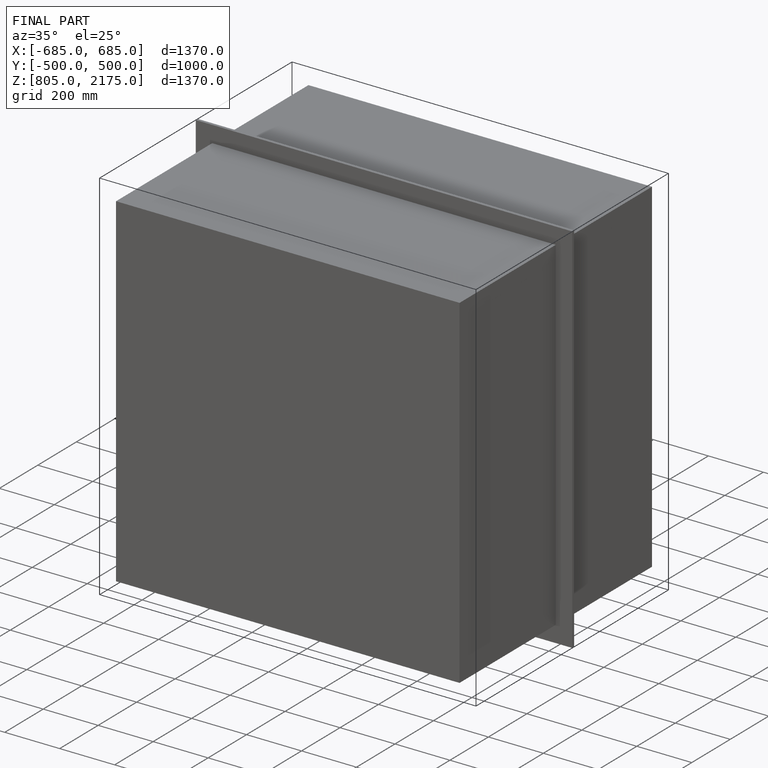
[diagram: finished part — iso view with bounding-box wireframe]
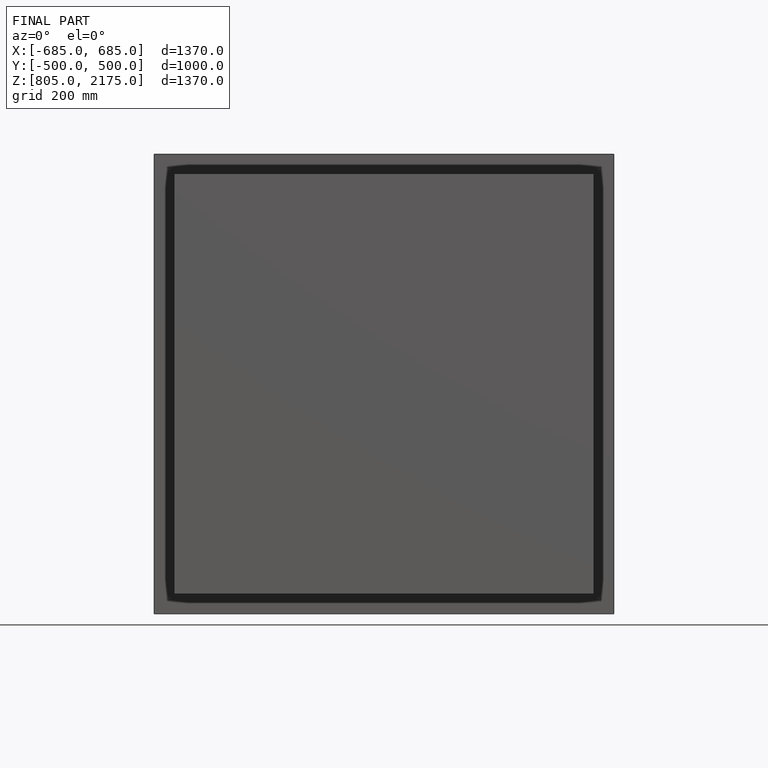
[diagram: finished part — front view with bounding-box wireframe]
